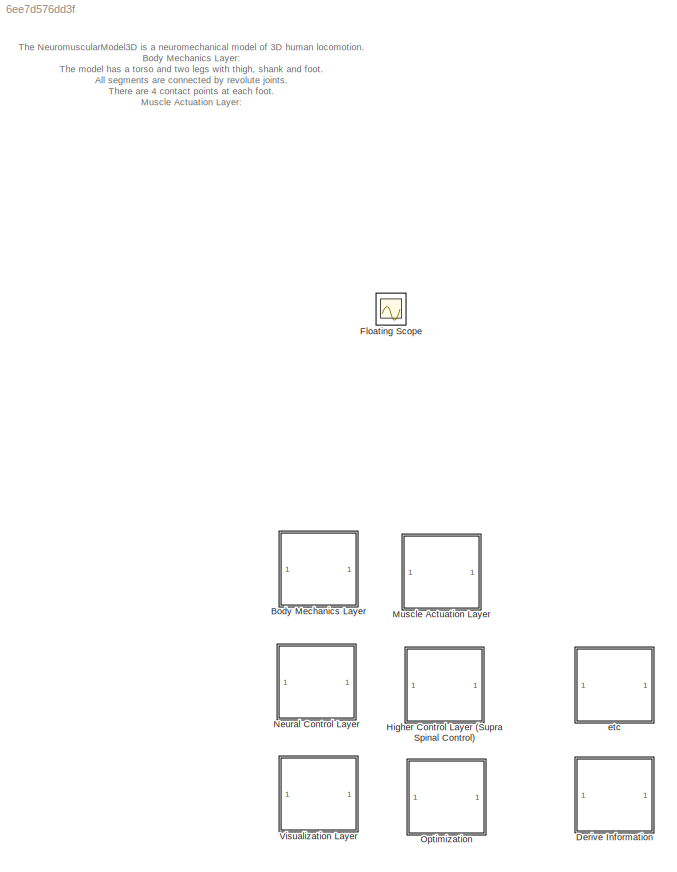
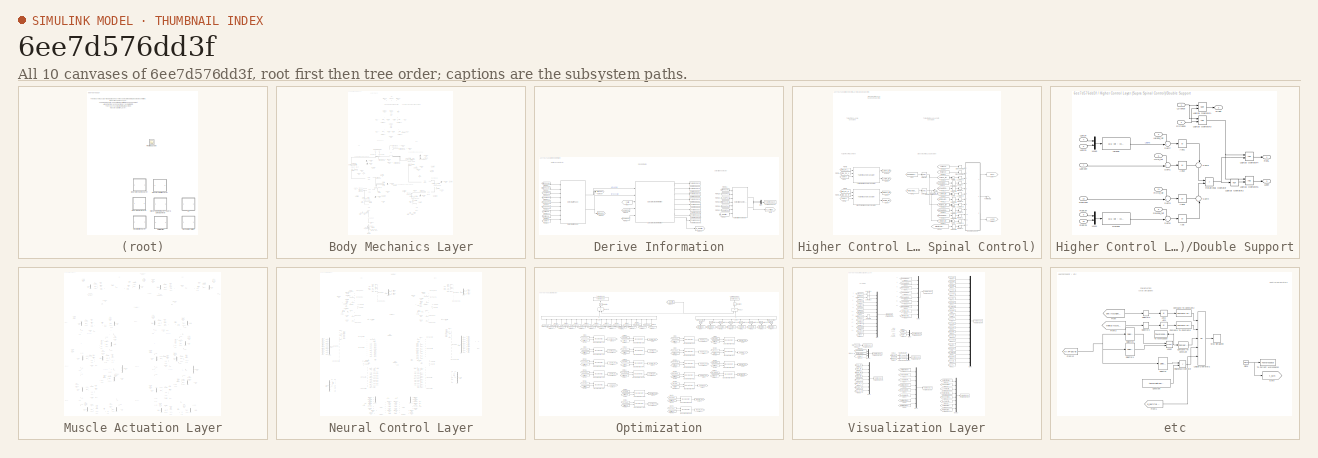
[diagram: thumbnail index - all 10 canvases of the model, root first then tree order]
MODEL slx_6ee7d576dd3f
KIND model
CONFIG AbsTol = auto
CONFIG EnableMultiTasking = on
CONFIG FixedStep = auto
CONFIG MaxStep = .1
CONFIG MinStep = auto
CONFIG RelTol = 1e-3
CONFIG SampleTimeConstraint = Unconstrained
CONFIG Solver = ode15s
CONFIG SolverName = ode15s
CONFIG StartTime = 0.0
CONFIG StopTime = 20
BLOCK [SubSystem] Body Mechanics Layer
  Ports = []
  RequestExecContextInheritance = off
BLOCK [Reference] Body Mechanics Layer/Bushing Joint  REF=sm_lib/Joints/Bushing Joint
  NameLocation = right
  Ports = [0, 0, 0, 0, 0, 1, 1]
  SourceBlock = sm_lib/Joints/Bushing Joint
  SourceProductBaseCode = MS
  SourceType = Bushing Joint
BLOCK [From] Body Mechanics Layer/From
  GotoTag = LAnkleMoment
  NameLocation = top
  TagVisibility = global
BLOCK [From] Body Mechanics Layer/From1
  GotoTag = RHipMoment
  NameLocation = top
  TagVisibility = global
BLOCK [From] Body Mechanics Layer/From10
  CloseFcn = tagdialog Close
  GotoTag = psiHAT
  NameLocation = left
  TagVisibility = global
BLOCK [From] Body Mechanics Layer/From11
  GotoTag = HATPosVel
  NameLocation = right
  TagVisibility = global
BLOCK [From] Body Mechanics Layer/From12
  GotoTag = HATPosVel
  NameLocation = right
  TagVisibility = global
BLOCK [From] Body Mechanics Layer/From13
  GotoTag = RHipPosVel
  NameLocation = left
  TagVisibility = global
BLOCK [From] Body Mechanics Layer/From14
  CloseFcn = tagdialog Close
  GotoTag = RAnklePos
  TagVisibility = global
BLOCK [From] Body Mechanics Layer/From15
  GotoTag = psiHAT
  NameLocation = left
  TagVisibility = global
BLOCK [From] Body Mechanics Layer/From2
  GotoTag = RHipMomentR
  NameLocation = top
  TagVisibility = global
BLOCK [From] Body Mechanics Layer/From25
  GotoTag = psiHAT
  NameLocation = left
  TagVisibility = global
BLOCK [From] Body Mechanics Layer/From29
  CloseFcn = tagdialog Close
  GotoTag = LAnklePos
  TagVisibility = global
BLOCK [From] Body Mechanics Layer/From3
  GotoTag = LHipMoment
  NameLocation = top
  TagVisibility = global
BLOCK [From] Body Mechanics Layer/From34
  CloseFcn = tagdialog Close
  GotoTag = RAnklePos
  TagVisibility = global
BLOCK [From] Body Mechanics Layer/From35
  CloseFcn = tagdialog Close
  GotoTag = LAnklePos
  TagVisibility = global
BLOCK [From] Body Mechanics Layer/From38
  CloseFcn = tagdialog Close
  GotoTag = psiHAT
  NameLocation = left
  TagVisibility = global
BLOCK [From] Body Mechanics Layer/From4
  GotoTag = LHipMomentR
  NameLocation = top
  TagVisibility = global
BLOCK [From] Body Mechanics Layer/From5
  GotoTag = LKneeMoment
  NameLocation = top
  TagVisibility = global
BLOCK [From] Body Mechanics Layer/From6
  GotoTag = RAnkleMoment
  NameLocation = top
  TagVisibility = global
BLOCK [From] Body Mechanics Layer/From7
  GotoTag = RKneeMoment
  NameLocation = top
  TagVisibility = global
BLOCK [From] Body Mechanics Layer/From8
  GotoTag = HATPosVel
  NameLocation = left
  TagVisibility = global
BLOCK [From] Body Mechanics Layer/From9
  GotoTag = LHipPosVel
  NameLocation = left
  TagVisibility = global
BLOCK [Goto] Body Mechanics Layer/Goto
  GotoTag = LLLoad
  NameLocation = right
  TagVisibility = global
BLOCK [Goto] Body Mechanics Layer/Goto1
  GotoTag = RLLoad
  NameLocation = right
  TagVisibility = global
BLOCK [Goto] Body Mechanics Layer/Goto10
  GotoTag = RphiANDdphiKnee
  TagVisibility = global
BLOCK [Goto] Body Mechanics Layer/Goto11
  GotoTag = RphiANDdphiAnkle
  TagVisibility = global
BLOCK [Goto] Body Mechanics Layer/Goto12
  GotoTag = front_dv_L
  TagVisibility = global
BLOCK [Goto] Body Mechanics Layer/Goto13
  GotoTag = HATtopPosVel
  TagVisibility = global
BLOCK [Goto] Body Mechanics Layer/Goto14
  GotoTag = front_dv_R
  TagVisibility = global
BLOCK [Goto] Body Mechanics Layer/Goto15
  GotoTag = side_dv_L
  TagVisibility = global
BLOCK [Goto] Body Mechanics Layer/Goto16
  GotoTag = side_dv_R
  TagVisibility = global
BLOCK [Goto] Body Mechanics Layer/Goto17
  GotoTag = LHeelPos
  NameLocation = left
  TagVisibility = global
BLOCK [Goto] Body Mechanics Layer/Goto18
  GotoTag = RToePos
  NameLocation = left
  TagVisibility = global
BLOCK [Goto] Body Mechanics Layer/Goto19
  GotoTag = LShankPos
  NameLocation = top
  TagVisibility = global
BLOCK [Goto] Body Mechanics Layer/Goto2
  GotoTag = LphiANDdphiHip
  TagVisibility = global
BLOCK [Goto] Body Mechanics Layer/Goto20
  GotoTag = RShankPos
  NameLocation = top
  TagVisibility = global
BLOCK [Goto] Body Mechanics Layer/Goto21
  GotoTag = LStance
  NameLocation = right
  TagVisibility = global
BLOCK [Goto] Body Mechanics Layer/Goto22
  GotoTag = LGRF
  NameLocation = left
  TagVisibility = global
BLOCK [Goto] Body Mechanics Layer/Goto23
  GotoTag = LHipPosVel
  TagVisibility = global
BLOCK [Goto] Body Mechanics Layer/Goto24
  GotoTag = RHipPosVel
  NameLocation = top
  TagVisibility = global
BLOCK [Goto] Body Mechanics Layer/Goto25
  GotoTag = HATPosVel
  TagVisibility = global
BLOCK [Goto] Body Mechanics Layer/Goto26
  GotoTag = phiANDdphiHAT
  NameLocation = right
  TagVisibility = global
BLOCK [Goto] Body Mechanics Layer/Goto27
  GotoTag = thetaANDdthetaHAT
  NameLocation = right
  TagVisibility = global
BLOCK [Goto] Body Mechanics Layer/Goto28
  GotoTag = RHeelPos
  NameLocation = left
  TagVisibility = global
BLOCK [Goto] Body Mechanics Layer/Goto3
  GotoTag = LToePos
  NameLocation = left
  TagVisibility = global
BLOCK [Goto] Body Mechanics Layer/Goto34
  GotoTag = RStance
  NameLocation = left
  TagVisibility = global
BLOCK [Goto] Body Mechanics Layer/Goto35
  GotoTag = RGRF
  NameLocation = left
  TagVisibility = global
BLOCK [Goto] Body Mechanics Layer/Goto4
  GotoTag = psiHAT
  NameLocation = right
  TagVisibility = global
BLOCK [Goto] Body Mechanics Layer/Goto5
  GotoTag = LthetaANDdthetaHipR
  TagVisibility = global
BLOCK [Goto] Body Mechanics Layer/Goto6
  GotoTag = RthetaANDdthetaHipR
  TagVisibility = global
BLOCK [Goto] Body Mechanics Layer/Goto7
  GotoTag = RphiANDdphiHip
  TagVisibility = global
BLOCK [Goto] Body Mechanics Layer/Goto8
  GotoTag = LphiANDdphiKnee
  TagVisibility = global
BLOCK [Goto] Body Mechanics Layer/Goto9
  GotoTag = LphiANDdphiAnkle
  TagVisibility = global
BLOCK [Reference] Body Mechanics Layer/Ground1  REF=sm_lib/Body Elements/Brick Solid
  Ports = [0, 0, 0, 0, 0, 0, 1]
  SourceBlock = sm_lib/Body Elements/Brick Solid
  SourceProductBaseCode = MS
  SourceType = Brick Solid
BLOCK [Goto] Body Mechanics Layer/HAT Position11
  GotoTag = RKneePos
  NameLocation = left
  TagVisibility = global
BLOCK [Goto] Body Mechanics Layer/HAT Position12
  GotoTag = RAnklePos
  NameLocation = left
  TagVisibility = global
BLOCK [Goto] Body Mechanics Layer/HAT Position5
  GotoTag = LKneePos
  NameLocation = left
  TagVisibility = global
BLOCK [Goto] Body Mechanics Layer/HAT Position6
  GotoTag = LAnklePos
  NameLocation = right
  TagVisibility = global
BLOCK [Reference] Body Mechanics Layer/HATs  REF=NeuroMuscularLibrary/HATs
  NameLocation = left
  Ports = [0, 0, 0, 0, 0, 2, 2]
  SourceBlock = NeuroMuscularLibrary/HATs
  SourceType = SubSystem
BLOCK [Gain] Body Mechanics Layer/L GLU Golgi Tendon Organs1
  Gain = -1
  NameLocation = top
BLOCK [Gain] Body Mechanics Layer/L GLU Golgi Tendon Organs3
  Gain = -1
  NameLocation = top
BLOCK [Gain] Body Mechanics Layer/L GLU Golgi Tendon Organs5
  Gain = -1
BLOCK [Reference] Body Mechanics Layer/Left Ankle joint  REF=sm_lib/Joints/Revolute Joint
  NameLocation = right
  Ports = [0, 0, 0, 0, 0, 2, 3]
  SourceBlock = sm_lib/Joints/Revolute Joint
  SourceProductBaseCode = MS
  SourceType = Revolute Joint
BLOCK [Reference] Body Mechanics Layer/Left Foot  REF=NeuroMuscularLibrary/Foot 3D
  NameLocation = right
  Ports = [1, 4, 0, 0, 0, 2, 7]
  SourceBlock = NeuroMuscularLibrary/Foot 3D
BLOCK [Reference] Body Mechanics Layer/Left Hip Joint  REF=sm_lib/Joints/Universal
Joint
  NameLocation = right
  Ports = [0, 0, 0, 0, 0, 3, 5]
  SourceBlock = sm_lib/Joints/Universal\nJoint
  SourceProductBaseCode = MS
  SourceType = Universal\nJoint
BLOCK [Reference] Body Mechanics Layer/Left Knee Joint  REF=sm_lib/Joints/Revolute Joint
  NameLocation = right
  Ports = [0, 0, 0, 0, 0, 2, 3]
  SourceBlock = sm_lib/Joints/Revolute Joint
  SourceProductBaseCode = MS
  SourceType = Revolute Joint
BLOCK [Reference] Body Mechanics Layer/Left Shank  REF=NeuroMuscularLibrary/Shanks
  Ports = [0, 0, 0, 0, 0, 1, 2]
  SourceBlock = NeuroMuscularLibrary/Shanks
  SourceType = SubSystem
BLOCK [Reference] Body Mechanics Layer/Left Thigh  REF=NeuroMuscularLibrary/Thigh total
  NameLocation = top
  Ports = [0, 3, 0, 0, 0, 1, 1]
  SourceBlock = NeuroMuscularLibrary/Thigh total
  SourceType = SubSystem
BLOCK [Reference] Body Mechanics Layer/Left lateral d, v in body frame  REF=NeuroMuscularLibrary/lateral d, v in body frame
  Ports = [3, 1]
  SourceBlock = NeuroMuscularLibrary/lateral d, v in body frame
  SourceType = SubSystem
BLOCK [Reference] Body Mechanics Layer/Left sagittal d, v in body frame  REF=NeuroMuscularLibrary/sagittal d, v in body frame
  Ports = [3, 1]
  SourceBlock = NeuroMuscularLibrary/sagittal d, v in body frame
  SourceType = SubSystem
BLOCK [Reference] Body Mechanics Layer/Mechanism Configuration  REF=sm_lib/Utilities/Mechanism
Configuration
  Ports = [0, 0, 0, 0, 0, 0, 1]
  SourceBlock = sm_lib/Utilities/Mechanism\nConfiguration
  SourceProductBaseCode = MS
  SourceType = Mechanism\nConfiguration
BLOCK [Mux] Body Mechanics Layer/Mux14
  DisplayOption = bar
  Inputs = 2
  Ports = [2, 1]
BLOCK [Mux] Body Mechanics Layer/Mux15
  DisplayOption = bar
  Inputs = 2
  Ports = [2, 1]
BLOCK [Mux] Body Mechanics Layer/Mux2
  DisplayOption = bar
  Inputs = 2
  Ports = [2, 1]
BLOCK [Mux] Body Mechanics Layer/Mux3
  DisplayOption = bar
  Inputs = 2
  Ports = [2, 1]
BLOCK [Mux] Body Mechanics Layer/Mux4
  DisplayOption = bar
  Inputs = 2
  Ports = [2, 1]
BLOCK [Mux] Body Mechanics Layer/Mux5
  DisplayOption = bar
  Inputs = 2
  Ports = [2, 1]
BLOCK [Mux] Body Mechanics Layer/Mux6
  DisplayOption = bar
  Inputs = 2
  Ports = [2, 1]
BLOCK [Mux] Body Mechanics Layer/Mux7
  DisplayOption = bar
  Inputs = 2
  Ports = [2, 1]
BLOCK [Reference] Body Mechanics Layer/PS-Simulink Converter  REF=nesl_utility/PS-Simulink
Converter
  NameLocation = right
  Ports = [0, 1, 0, 0, 0, 1]
  SourceBlock = nesl_utility/PS-Simulink\nConverter
  SourceProductBaseCode = SS
  SourceType = PS-Simulink\nConverter
BLOCK [Reference] Body Mechanics Layer/PS-Simulink Converter1  REF=nesl_utility/PS-Simulink
Converter
  NameLocation = right
  Ports = [0, 1, 0, 0, 0, 1]
  SourceBlock = nesl_utility/PS-Simulink\nConverter
  SourceProductBaseCode = SS
  SourceType = PS-Simulink\nConverter
BLOCK [Reference] Body Mechanics Layer/PS-Simulink Converter10  REF=nesl_utility/PS-Simulink
Converter
  NameLocation = right
  Ports = [0, 1, 0, 0, 0, 1]
  SourceBlock = nesl_utility/PS-Simulink\nConverter
  SourceProductBaseCode = SS
  SourceType = PS-Simulink\nConverter
BLOCK [Reference] Body Mechanics Layer/PS-Simulink Converter11  REF=nesl_utility/PS-Simulink
Converter
  NameLocation = right
  Ports = [0, 1, 0, 0, 0, 1]
  SourceBlock = nesl_utility/PS-Simulink\nConverter
  SourceProductBaseCode = SS
  SourceType = PS-Simulink\nConverter
BLOCK [Reference] Body Mechanics Layer/PS-Simulink Converter12  REF=nesl_utility/PS-Simulink
Converter
  NameLocation = right
  Ports = [0, 1, 0, 0, 0, 1]
  SourceBlock = nesl_utility/PS-Simulink\nConverter
  SourceProductBaseCode = SS
  SourceType = PS-Simulink\nConverter
BLOCK [Reference] Body Mechanics Layer/PS-Simulink Converter13  REF=nesl_utility/PS-Simulink
Converter
  NameLocation = right
  Ports = [0, 1, 0, 0, 0, 1]
  SourceBlock = nesl_utility/PS-Simulink\nConverter
  SourceProductBaseCode = SS
  SourceType = PS-Simulink\nConverter
BLOCK [Reference] Body Mechanics Layer/PS-Simulink Converter14  REF=nesl_utility/PS-Simulink
Converter
  NameLocation = right
  Ports = [0, 1, 0, 0, 0, 1]
  SourceBlock = nesl_utility/PS-Simulink\nConverter
  SourceProductBaseCode = SS
  SourceType = PS-Simulink\nConverter
BLOCK [Reference] Body Mechanics Layer/PS-Simulink Converter15  REF=nesl_utility/PS-Simulink
Converter
  NameLocation = right
  Ports = [0, 1, 0, 0, 0, 1]
  SourceBlock = nesl_utility/PS-Simulink\nConverter
  SourceProductBaseCode = SS
  SourceType = PS-Simulink\nConverter
BLOCK [Reference] Body Mechanics Layer/PS-Simulink Converter2  REF=nesl_utility/PS-Simulink
Converter
  Ports = [0, 1, 0, 0, 0, 1]
  SourceBlock = nesl_utility/PS-Simulink\nConverter
  SourceProductBaseCode = SS
  SourceType = PS-Simulink\nConverter
BLOCK [Reference] Body Mechanics Layer/PS-Simulink Converter3  REF=nesl_utility/PS-Simulink
Converter
  Ports = [0, 1, 0, 0, 0, 1]
  SourceBlock = nesl_utility/PS-Simulink\nConverter
  SourceProductBaseCode = SS
  SourceType = PS-Simulink\nConverter
BLOCK [Reference] Body Mechanics Layer/PS-Simulink Converter4  REF=nesl_utility/PS-Simulink
Converter
  NameLocation = right
  Ports = [0, 1, 0, 0, 0, 1]
  SourceBlock = nesl_utility/PS-Simulink\nConverter
  SourceProductBaseCode = SS
  SourceType = PS-Simulink\nConverter
BLOCK [Reference] Body Mechanics Layer/PS-Simulink Converter5  REF=nesl_utility/PS-Simulink
Converter
  NameLocation = right
  Ports = [0, 1, 0, 0, 0, 1]
  SourceBlock = nesl_utility/PS-Simulink\nConverter
  SourceProductBaseCode = SS
  SourceType = PS-Simulink\nConverter
BLOCK [Reference] Body Mechanics Layer/PS-Simulink Converter6  REF=nesl_utility/PS-Simulink
Converter
  NameLocation = right
  Ports = [0, 1, 0, 0, 0, 1]
  SourceBlock = nesl_utility/PS-Simulink\nConverter
  SourceProductBaseCode = SS
  SourceType = PS-Simulink\nConverter
BLOCK [Reference] Body Mechanics Layer/PS-Simulink Converter7  REF=nesl_utility/PS-Simulink
Converter
  NameLocation = right
  Ports = [0, 1, 0, 0, 0, 1]
  SourceBlock = nesl_utility/PS-Simulink\nConverter
  SourceProductBaseCode = SS
  SourceType = PS-Simulink\nConverter
BLOCK [Reference] Body Mechanics Layer/PS-Simulink Converter8  REF=nesl_utility/PS-Simulink
Converter
  NameLocation = right
  Ports = [0, 1, 0, 0, 0, 1]
  SourceBlock = nesl_utility/PS-Simulink\nConverter
  SourceProductBaseCode = SS
  SourceType = PS-Simulink\nConverter
BLOCK [Reference] Body Mechanics Layer/PS-Simulink Converter9  REF=nesl_utility/PS-Simulink
Converter
  NameLocation = right
  Ports = [0, 1, 0, 0, 0, 1]
  SourceBlock = nesl_utility/PS-Simulink\nConverter
  SourceProductBaseCode = SS
  SourceType = PS-Simulink\nConverter
BLOCK [Reference] Body Mechanics Layer/Position Sensor10  REF=NeuroMuscularLibrary/Position Sensor
  Ports = [0, 1, 0, 0, 0, 1]
  SourceBlock = NeuroMuscularLibrary/Position Sensor
  SourceType = SubSystem
BLOCK [Reference] Body Mechanics Layer/Position Sensor11  REF=NeuroMuscularLibrary/Position Sensor
  Ports = [0, 1, 0, 0, 0, 1]
  SourceBlock = NeuroMuscularLibrary/Position Sensor
  SourceType = SubSystem
BLOCK [Reference] Body Mechanics Layer/Position Sensor12  REF=NeuroMuscularLibrary/Position Sensor
  Ports = [0, 1, 0, 0, 0, 1]
  SourceBlock = NeuroMuscularLibrary/Position Sensor
  SourceType = SubSystem
BLOCK [Reference] Body Mechanics Layer/Position Sensor13  REF=NeuroMuscularLibrary/Position Sensor
  Ports = [0, 1, 0, 0, 0, 1]
  SourceBlock = NeuroMuscularLibrary/Position Sensor
  SourceType = SubSystem
BLOCK [Reference] Body Mechanics Layer/Position Sensor14  REF=NeuroMuscularLibrary/Position Sensor
  NameLocation = top
  Ports = [0, 1, 0, 0, 0, 1]
  SourceBlock = NeuroMuscularLibrary/Position Sensor
  SourceType = SubSystem
BLOCK [Reference] Body Mechanics Layer/Position Sensor15  REF=NeuroMuscularLibrary/Position Sensor
  NameLocation = left
  Ports = [0, 1, 0, 0, 0, 1]
  SourceBlock = NeuroMuscularLibrary/Position Sensor
  SourceType = SubSystem
BLOCK [Reference] Body Mechanics Layer/Position Velocity Sensor  REF=NeuroMuscularLibrary/Position Velocity Sensor
  NameLocation = top
  Ports = [0, 1, 0, 0, 0, 1]
  SourceBlock = NeuroMuscularLibrary/Position Velocity Sensor
  SourceType = SubSystem
BLOCK [Reference] Body Mechanics Layer/Position Velocity Sensor1  REF=NeuroMuscularLibrary/Position Velocity Sensor
  NameLocation = top
  Ports = [0, 1, 0, 0, 0, 1]
  SourceBlock = NeuroMuscularLibrary/Position Velocity Sensor
  SourceType = SubSystem
BLOCK [Reference] Body Mechanics Layer/Position Velocity Sensor2  REF=NeuroMuscularLibrary/Position Velocity Sensor
  Ports = [0, 1, 0, 0, 0, 1]
  SourceBlock = NeuroMuscularLibrary/Position Velocity Sensor
  SourceType = SubSystem
BLOCK [Reference] Body Mechanics Layer/Position Velocity Sensor3  REF=NeuroMuscularLibrary/Position Velocity Sensor
  NameLocation = top
  Ports = [0, 1, 0, 0, 0, 1]
  SourceBlock = NeuroMuscularLibrary/Position Velocity Sensor
  SourceType = SubSystem
BLOCK [Reference] Body Mechanics Layer/Right Ankle Joint  REF=sm_lib/Joints/Revolute Joint
  NameLocation = left
  Ports = [0, 0, 0, 0, 0, 2, 3]
  SourceBlock = sm_lib/Joints/Revolute Joint
  SourceProductBaseCode = MS
  SourceType = Revolute Joint
BLOCK [Reference] Body Mechanics Layer/Right Foot  REF=NeuroMuscularLibrary/Foot 3D
  NameLocation = right
  Ports = [1, 4, 0, 0, 0, 2, 7]
  SourceBlock = NeuroMuscularLibrary/Foot 3D
BLOCK [Reference] Body Mechanics Layer/Right Hip joint  REF=sm_lib/Joints/Universal
Joint
  NameLocation = right
  Ports = [0, 0, 0, 0, 0, 3, 5]
  SourceBlock = sm_lib/Joints/Universal\nJoint
  SourceProductBaseCode = MS
  SourceType = Universal\nJoint
BLOCK [Reference] Body Mechanics Layer/Right Knee joint  REF=sm_lib/Joints/Revolute Joint
  NameLocation = right
  Ports = [0, 0, 0, 0, 0, 2, 3]
  SourceBlock = sm_lib/Joints/Revolute Joint
  SourceProductBaseCode = MS
  SourceType = Revolute Joint
BLOCK [Reference] Body Mechanics Layer/Right Shank  REF=NeuroMuscularLibrary/Shanks
  Ports = [0, 0, 0, 0, 0, 1, 2]
  SourceBlock = NeuroMuscularLibrary/Shanks
  SourceType = SubSystem
BLOCK [Reference] Body Mechanics Layer/Right Thigh  REF=NeuroMuscularLibrary/Thigh total
  NameLocation = top
  Ports = [0, 3, 0, 0, 0, 1, 1]
  SourceBlock = NeuroMuscularLibrary/Thigh total
  SourceType = SubSystem
BLOCK [Reference] Body Mechanics Layer/Right lateral d, v in body frame  REF=NeuroMuscularLibrary/lateral d, v in body frame
  Ports = [3, 1]
  SourceBlock = NeuroMuscularLibrary/lateral d, v in body frame
  SourceType = SubSystem
BLOCK [Reference] Body Mechanics Layer/Right sagittal d, v in body frame  REF=NeuroMuscularLibrary/sagittal d, v in body frame
  Ports = [3, 1]
  SourceBlock = NeuroMuscularLibrary/sagittal d, v in body frame
  SourceType = SubSystem
BLOCK [Reference] Body Mechanics Layer/Rigid Transform  REF=sm_lib/Frames and
Transforms/Rigid
Transform
  Ports = [0, 0, 0, 0, 0, 1, 1]
  SourceBlock = sm_lib/Frames and\nTransforms/Rigid\nTransform
  SourceProductBaseCode = MS
  SourceType = Rigid\nTransform
BLOCK [Reference] Body Mechanics Layer/Rigid Transform4  REF=sm_lib/Frames and
Transforms/Rigid
Transform
  NameLocation = right
  Ports = [0, 0, 0, 0, 0, 1, 1]
  SourceBlock = sm_lib/Frames and\nTransforms/Rigid\nTransform
  SourceProductBaseCode = MS
  SourceType = Rigid\nTransform
BLOCK [Reference] Body Mechanics Layer/Rigid Transform5  REF=sm_lib/Frames and
Transforms/Rigid
Transform
  NameLocation = right
  Ports = [0, 0, 0, 0, 0, 1, 1]
  SourceBlock = sm_lib/Frames and\nTransforms/Rigid\nTransform
  SourceProductBaseCode = MS
  SourceType = Rigid\nTransform
BLOCK [Reference] Body Mechanics Layer/Simulink-PS Converter  REF=nesl_utility/Simulink-PS
Converter
  NameLocation = top
  Ports = [1, 0, 0, 0, 0, 0, 1]
  SourceBlock = nesl_utility/Simulink-PS\nConverter
  SourceProductBaseCode = SS
  SourceType = Simulink-PS\nConverter
BLOCK [Reference] Body Mechanics Layer/Simulink-PS Converter1  REF=nesl_utility/Simulink-PS
Converter
  NameLocation = top
  Ports = [1, 0, 0, 0, 0, 0, 1]
  SourceBlock = nesl_utility/Simulink-PS\nConverter
  SourceProductBaseCode = SS
  SourceType = Simulink-PS\nConverter
BLOCK [Reference] Body Mechanics Layer/Simulink-PS Converter2  REF=nesl_utility/Simulink-PS
Converter
  NameLocation = right
  Ports = [1, 0, 0, 0, 0, 0, 1]
  SourceBlock = nesl_utility/Simulink-PS\nConverter
  SourceProductBaseCode = SS
  SourceType = Simulink-PS\nConverter
BLOCK [Reference] Body Mechanics Layer/Simulink-PS Converter3  REF=nesl_utility/Simulink-PS
Converter
  NameLocation = right
  Ports = [1, 0, 0, 0, 0, 0, 1]
  SourceBlock = nesl_utility/Simulink-PS\nConverter
  SourceProductBaseCode = SS
  SourceType = Simulink-PS\nConverter
BLOCK [Reference] Body Mechanics Layer/Simulink-PS Converter4  REF=nesl_utility/Simulink-PS
Converter
  NameLocation = right
  Ports = [1, 0, 0, 0, 0, 0, 1]
  SourceBlock = nesl_utility/Simulink-PS\nConverter
  SourceProductBaseCode = SS
  SourceType = Simulink-PS\nConverter
BLOCK [Reference] Body Mechanics Layer/Simulink-PS Converter5  REF=nesl_utility/Simulink-PS
Converter
  NameLocation = right
  Ports = [1, 0, 0, 0, 0, 0, 1]
  SourceBlock = nesl_utility/Simulink-PS\nConverter
  SourceProductBaseCode = SS
  SourceType = Simulink-PS\nConverter
BLOCK [Reference] Body Mechanics Layer/Simulink-PS Converter6  REF=nesl_utility/Simulink-PS
Converter
  NameLocation = right
  Ports = [1, 0, 0, 0, 0, 0, 1]
  SourceBlock = nesl_utility/Simulink-PS\nConverter
  SourceProductBaseCode = SS
  SourceType = Simulink-PS\nConverter
BLOCK [Reference] Body Mechanics Layer/Simulink-PS Converter7  REF=nesl_utility/Simulink-PS
Converter
  NameLocation = right
  Ports = [1, 0, 0, 0, 0, 0, 1]
  SourceBlock = nesl_utility/Simulink-PS\nConverter
  SourceProductBaseCode = SS
  SourceType = Simulink-PS\nConverter
BLOCK [Reference] Body Mechanics Layer/Solver Configuration  REF=nesl_utility/Solver
Configuration
  Ports = [0, 0, 0, 0, 0, 0, 1]
  SourceBlock = nesl_utility/Solver\nConfiguration
  SourceProductBaseCode = SS
  SourceType = Solver\nConfiguration
BLOCK [Reference] Body Mechanics Layer/TO: X-forward Y-up Z-lateral  REF=sm_lib/Frames and
Transforms/Rigid
Transform
  NameLocation = right
  Ports = [0, 0, 0, 0, 0, 1, 1]
  SourceBlock = sm_lib/Frames and\nTransforms/Rigid\nTransform
  SourceProductBaseCode = MS
  SourceType = Rigid\nTransform
BLOCK [Reference] Body Mechanics Layer/Whole Body front Tracking Camera  REF=sm_lib/Frames and
Transforms/Reference
Frame
  NameLocation = right
  Ports = [0, 0, 0, 0, 0, 0, 1]
  SourceBlock = sm_lib/Frames and\nTransforms/Reference\nFrame
  SourceProductBaseCode = MS
  SourceType = Reference\nFrame
BLOCK [Reference] Body Mechanics Layer/Whole Body side Tracking Camera  REF=sm_lib/Frames and
Transforms/Reference
Frame
  NameLocation = left
  Ports = [0, 0, 0, 0, 0, 0, 1]
  SourceBlock = sm_lib/Frames and\nTransforms/Reference\nFrame
  SourceProductBaseCode = MS
  SourceType = Reference\nFrame
BLOCK [Reference] Body Mechanics Layer/World Frame X-forward Y-lateral Z-up1  REF=sm_lib/Frames and
Transforms/World Frame
  NameLocation = left
  Ports = [0, 0, 0, 0, 0, 0, 1]
  SourceBlock = sm_lib/Frames and\nTransforms/World Frame
  SourceProductBaseCode = MS
  SourceType = World Frame
BLOCK [Reference] Body Mechanics Layer/body pitch//roll//yaw in body frame --- x-axis: forward y-axis: leftward z-axis: parallel to gravity  REF=NeuroMuscularLibrary/body pitch//roll//yaw
in body frame
---
x-axis: forward
y-axis: leftward
z-axis: parallel to gravity
  NameLocation = right
  Ports = [3, 3]
  SourceBlock = NeuroMuscularLibrary/body pitch//roll//yaw\nin body frame\n---\nx-axis: forward\ny-axis: leftward\nz-axis: parallel to gravity
  SourceType = SubSystem
BLOCK [SubSystem] Derive Information
  Ports = []
  RequestExecContextInheritance = off
BLOCK [Reference] Derive Information/Calculate Step information  REF=NeuroMuscularLibrary/Calculate Step information
  Ports = [5, 8]
  SourceBlock = NeuroMuscularLibrary/Calculate Step information
BLOCK [Reference] Derive Information/Detect Gait Phase  REF=NeuroMuscularLibrary/Detect Gait Phase
  Ports = [9, 2]
  SourceBlock = NeuroMuscularLibrary/Detect Gait Phase
  SourceType = SubSystem
BLOCK [From] Derive Information/From
  GotoTag = t_sim
  TagVisibility = global
BLOCK [From] Derive Information/From16
  GotoTag = LShankPos
  TagVisibility = global
BLOCK [From] Derive Information/From19
  GotoTag = RHipPosVel
  NameLocation = top
  TagVisibility = global
BLOCK [From] Derive Information/From20
  GotoTag = LHipPosVel
  NameLocation = top
  TagVisibility = global
BLOCK [From] Derive Information/From21
  GotoTag = RAnklePos
  NameLocation = top
  TagVisibility = global
BLOCK [From] Derive Information/From22
  GotoTag = LAnklePos
  NameLocation = top
  TagVisibility = global
BLOCK [From] Derive Information/From23
  GotoTag = RShankPos
  TagVisibility = global
BLOCK [From] Derive Information/From24
  GotoTag = psiHAT
  TagVisibility = global
BLOCK [From] Derive Information/From26
  GotoTag = RStance
  TagVisibility = global
BLOCK [From] Derive Information/From27
  GotoTag = LStance
  TagVisibility = global
BLOCK [From] Derive Information/From28
  GotoTag = LKneePos
  TagVisibility = global
BLOCK [From] Derive Information/From30
  GotoTag = RHipPosVel
  NameLocation = top
  TagVisibility = global
BLOCK [From] Derive Information/From31
  GotoTag = LHipPosVel
  NameLocation = top
  TagVisibility = global
BLOCK [From] Derive Information/From32
  GotoTag = RAnklePos
  NameLocation = top
  TagVisibility = global
BLOCK [From] Derive Information/From33
  GotoTag = LAnklePos
  NameLocation = top
  TagVisibility = global
BLOCK [From] Derive Information/From37
  GotoTag = b_pastInitSteps
  TagVisibility = global
BLOCK [From] Derive Information/From39
  GotoTag = RKneePos
  TagVisibility = global
BLOCK [From] Derive Information/From57
  GotoTag = RAnklePos
  NameLocation = top
  TagVisibility = global
BLOCK [From] Derive Information/From78
  GotoTag = LAnklePos
  NameLocation = top
  TagVisibility = global
BLOCK [Goto] Derive Information/Goto
  GotoTag = b_selfCollision
  TagVisibility = global
BLOCK [Goto] Derive Information/Goto22
  GotoTag = b_pastInitSteps
  TagVisibility = global
BLOCK [Goto] Derive Information/Goto38
  GotoTag = leftLegState
  NameLocation = top
  TagVisibility = global
BLOCK [Goto] Derive Information/Goto39
  GotoTag = rightLegState
  NameLocation = top
  TagVisibility = global
BLOCK [Mux] Derive Information/Mux
  DisplayOption = bar
  Inputs = 2
  Ports = [2, 1]
BLOCK [Reference] Derive Information/Self collision detector  REF=NeuroMuscularLibrary/Self collision detector
  Ports = [7, 2]
  SourceBlock = NeuroMuscularLibrary/Self collision detector
BLOCK [ToWorkspace] Derive Information/To Workspace1
  MaxDataPoints = inf
  Ports = [1]
  SampleTime = -1
  SaveFormat = Structure With Time
  VariableName = stepNumbers
BLOCK [ToWorkspace] Derive Information/To Workspace2
  MaxDataPoints = inf
  Ports = [1]
  SampleTime = dt_visual
  SaveFormat = Structure With Time
  VariableName = selfCollision
BLOCK [ToWorkspace] Derive Information/To Workspace3
  MaxDataPoints = inf
  Ports = [1]
  SampleTime = -1
  SaveFormat = Structure With Time
  VariableName = b_pastInitSteps
BLOCK [ToWorkspace] Derive Information/To Workspace4
  MaxDataPoints = inf
  Ports = [1]
  SampleTime = -1
  SaveFormat = Structure With Time
  VariableName = stepLengths
BLOCK [ToWorkspace] Derive Information/To Workspace5
  MaxDataPoints = inf
  Ports = [1]
  SampleTime = -1
  SaveFormat = Structure With Time
  VariableName = strideLengths
BLOCK [ToWorkspace] Derive Information/To Workspace6
  MaxDataPoints = inf
  Ports = [1]
  SampleTime = -1
  SaveFormat = Structure With Time
  VariableName = stepVelocities
BLOCK [ToWorkspace] Derive Information/To Workspace7
  MaxDataPoints = inf
  Ports = [1]
  SampleTime = -1
  SaveFormat = Structure With Time
  VariableName = stepTimes
BLOCK [ToWorkspace] Derive Information/To Workspace8
  MaxDataPoints = inf
  Ports = [1]
  SampleTime = -1
  SaveFormat = Structure With Time
  VariableName = strideVelocities
BLOCK [ToWorkspace] Derive Information/To Workspace9
  MaxDataPoints = inf
  Ports = [1]
  SampleTime = -1
  SaveFormat = Structure With Time
  VariableName = strideTimes
BLOCK [Scope] Floating Scope
  Floating = off
  IOType = viewer
  NumInputPorts = 1
  Ports = []
  ScopeSpecificationString = Simulink.scopes.TimeScopeBlockCfg('CurrentConfiguration', extmgr.ConfigurationSet(extmgr.Configuration('Core','General UI',true),extmgr.Configuration('Core','Source UI',true),extmgr.Configuration('Sources','WiredSimulink',true,'DataLoggingSaveFormat','StructureWithTime','DataLoggingLimitDataPoints',true,'DataLoggingDecimation','1','DataLoggingDecimateData',true),extmgr.Configuration('Visuals','Tim...<+890ch>
BLOCK [SubSystem] Higher Control Layer (Supra Spinal Control)
  Ports = []
  RequestExecContextInheritance = off
BLOCK [SubSystem] Higher Control Layer (Supra Spinal Control)/Double Support
  Ports = [12, 3]
  RequestExecContextInheritance = off
BLOCK [Abs] Higher Control Layer (Supra Spinal Control)/Double Support/Abs
  SaturateOnIntegerOverflow = off
  ZeroCross = off
BLOCK [Abs] Higher Control Layer (Supra Spinal Control)/Double Support/Abs1
  SaturateOnIntegerOverflow = off
  ZeroCross = off
BLOCK [Abs] Higher Control Layer (Supra Spinal Control)/Double Support/Abs2
  SaturateOnIntegerOverflow = off
  ZeroCross = off
BLOCK [Abs] Higher Control Layer (Supra Spinal Control)/Double Support/Abs3
  SaturateOnIntegerOverflow = off
  ZeroCross = off
BLOCK [Outport] Higher Control Layer (Supra Spinal Control)/Double Support/Flight
  Port = 2
BLOCK [Inport] Higher Control Layer (Supra Spinal Control)/Double Support/LHip_tgt
  Port = 6
BLOCK [Inport] Higher Control Layer (Supra Spinal Control)/Double Support/LStance
BLOCK [Fcn] Higher Control Layer (Supra Spinal Control)/Double Support/Lalpha'
  Expr = u(1) +pi - (pi-u(2))/2
  NameLocation = top
BLOCK [Inport] Higher Control Layer (Supra Spinal Control)/Double Support/Lalpha_tgt
  Port = 3
BLOCK [Logic] Higher Control Layer (Supra Spinal Control)/Double Support/Logical Operator1
  AllPortsSameDT = off
  Operator = NOR
  OutDataTypeStr = boolean
  Ports = [2, 1]
BLOCK [Logic] Higher Control Layer (Supra Spinal Control)/Double Support/Logical Operator2
  AllPortsSameDT = off
  Operator = NOT
  Ports = [1, 1]
BLOCK [Logic] Higher Control Layer (Supra Spinal Control)/Double Support/Logical Operator3
  AllPortsSameDT = off
  Ports = [2, 1]
BLOCK [Logic] Higher Control Layer (Supra Spinal Control)/Double Support/Logical Operator4
  AllPortsSameDT = off
  Ports = [2, 1]
BLOCK [Logic] Higher Control Layer (Supra Spinal Control)/Double Support/Logical Operator5
  AllPortsSameDT = off
  Ports = [2, 1]
BLOCK [Outport] Higher Control Layer (Supra Spinal Control)/Double Support/LonR
  Port = 3
BLOCK [Inport] Higher Control Layer (Supra Spinal Control)/Double Support/Lphi23
  Port = 5
BLOCK [Inport] Higher Control Layer (Supra Spinal Control)/Double Support/Lphi34
  Port = 4
BLOCK [Inport] Higher Control Layer (Supra Spinal Control)/Double Support/Lphi34R
  Port = 7
BLOCK [Mux] Higher Control Layer (Supra Spinal Control)/Double Support/Mux1
  DisplayOption = bar
  Inputs = 2
  NameLocation = top
  Ports = [2, 1]
BLOCK [Mux] Higher Control Layer (Supra Spinal Control)/Double Support/Mux5
  DisplayOption = bar
  Inputs = 2
  NameLocation = top
  Ports = [2, 1]
BLOCK [Inport] Higher Control Layer (Supra Spinal Control)/Double Support/RHip_tgt
  Port = 11
BLOCK [Inport] Higher Control Layer (Supra Spinal Control)/Double Support/RStance
  Port = 2
BLOCK [Fcn] Higher Control Layer (Supra Spinal Control)/Double Support/Ralpha'
  Expr = u(1) +pi - (pi-u(2))/2
  NameLocation = top
BLOCK [Inport] Higher Control Layer (Supra Spinal Control)/Double Support/Ralpha_tgt
  Port = 8
BLOCK [RelationalOperator] Higher Control Layer (Supra Spinal Control)/Double Support/Relational Operator
  InputSameDT = off
  Operator = >
  Ports = [2, 1]
  ZeroCross = off
BLOCK [Outport] Higher Control Layer (Supra Spinal Control)/Double Support/RonL
BLOCK [Inport] Higher Control Layer (Supra Spinal Control)/Double Support/Rphi23
  Port = 10
BLOCK [Inport] Higher Control Layer (Supra Spinal Control)/Double Support/Rphi34
  Port = 9
BLOCK [Inport] Higher Control Layer (Supra Spinal Control)/Double Support/Rphi34R
  Port = 12
BLOCK [Sum] Higher Control Layer (Supra Spinal Control)/Double Support/Sum1
  Inputs = -+|
  NameLocation = top
  Ports = [2, 1]
BLOCK [Sum] Higher Control Layer (Supra Spinal Control)/Double Support/Sum2
  Inputs = ++|
  NameLocation = right
  Ports = [2, 1]
BLOCK [Sum] Higher Control Layer (Supra Spinal Control)/Double Support/Sum3
  Inputs = -+|
  NameLocation = top
  Ports = [2, 1]
BLOCK [Sum] Higher Control Layer (Supra Spinal Control)/Double Support/Sum4
  Inputs = ++|
  NameLocation = left
  Ports = [2, 1]
BLOCK [Sum] Higher Control Layer (Supra Spinal Control)/Double Support/Sum5
  Inputs = -+|
  NameLocation = top
  Ports = [2, 1]
BLOCK [Sum] Higher Control Layer (Supra Spinal Control)/Double Support/Sum7
  Inputs = -+|
  NameLocation = top
  Ports = [2, 1]
BLOCK [From] Higher Control Layer (Supra Spinal Control)/From
  GotoTag = phiANDdphiHAT
  NameLocation = top
  TagVisibility = global
BLOCK [From] Higher Control Layer (Supra Spinal Control)/From1
  CloseFcn = tagdialog Close
  GotoTag = front_dv_R
  TagVisibility = global
BLOCK [From] Higher Control Layer (Supra Spinal Control)/From11
  CloseFcn = tagdialog Close
  GotoTag = RthetaANDdthetaHipR
  TagVisibility = global
BLOCK [From] Higher Control Layer (Supra Spinal Control)/From12
  CloseFcn = tagdialog Close
  GotoTag = LthetaANDdthetaHipR
  TagVisibility = global
BLOCK [From] Higher Control Layer (Supra Spinal Control)/From16
  CloseFcn = tagdialog Close
  GotoTag = LhipR_tgt
  TagVisibility = global
BLOCK [From] Higher Control Layer (Supra Spinal Control)/From17
  CloseFcn = tagdialog Close
  GotoTag = RhipR_tgt
  TagVisibility = global
BLOCK [From] Higher Control Layer (Supra Spinal Control)/From18
  CloseFcn = tagdialog Close
  GotoTag = LStance
  TagVisibility = global
BLOCK [From] Higher Control Layer (Supra Spinal Control)/From19
  CloseFcn = tagdialog Close
  GotoTag = RStance
  TagVisibility = global
BLOCK [From] Higher Control Layer (Supra Spinal Control)/From2
  CloseFcn = tagdialog Close
  GotoTag = side_dv_L
  TagVisibility = global
BLOCK [From] Higher Control Layer (Supra Spinal Control)/From20
  CloseFcn = tagdialog Close
  GotoTag = LphiANDdphiHip
  TagVisibility = global
BLOCK [From] Higher Control Layer (Supra Spinal Control)/From21
  CloseFcn = tagdialog Close
  GotoTag = LphiANDdphiKnee
  TagVisibility = global
BLOCK [From] Higher Control Layer (Supra Spinal Control)/From23
  CloseFcn = tagdialog Close
  GotoTag = RphiANDdphiHip
  TagVisibility = global
BLOCK [From] Higher Control Layer (Supra Spinal Control)/From24
  CloseFcn = tagdialog Close
  GotoTag = RphiANDdphiKnee
  TagVisibility = global
BLOCK [From] Higher Control Layer (Supra Spinal Control)/From25
  CloseFcn = tagdialog Close
  GotoTag = Lalpha_tgt
  TagVisibility = global
BLOCK [From] Higher Control Layer (Supra Spinal Control)/From26
  CloseFcn = tagdialog Close
  GotoTag = Ralpha_tgt
  TagVisibility = global
BLOCK [From] Higher Control Layer (Supra Spinal Control)/From3
  GotoTag = thetaANDdthetaHAT
  NameLocation = top
  TagVisibility = global
BLOCK [From] Higher Control Layer (Supra Spinal Control)/From4
  CloseFcn = tagdialog Close
  GotoTag = side_dv_R
  TagVisibility = global
BLOCK [From] Higher Control Layer (Supra Spinal Control)/From5
  CloseFcn = tagdialog Close
  GotoTag = front_dv_L
  TagVisibility = global
BLOCK [From] Higher Control Layer (Supra Spinal Control)/From6
  GotoTag = psiHAT
  TagVisibility = global
BLOCK [From] Higher Control Layer (Supra Spinal Control)/From7
  GotoTag = psiHAT
  TagVisibility = global
BLOCK [Goto] Higher Control Layer (Supra Spinal Control)/Goto2
  GotoTag = Ralpha_tgt
  TagVisibility = global
BLOCK [Goto] Higher Control Layer (Supra Spinal Control)/Goto5
  GotoTag = LhipR_tgt
  TagVisibility = global
BLOCK [Goto] Higher Control Layer (Supra Spinal Control)/Goto6
  GotoTag = RhipR_tgt
  TagVisibility = global
BLOCK [Goto] Higher Control Layer (Supra Spinal Control)/Goto7
  GotoTag = RonL
  TagVisibility = global
BLOCK [Goto] Higher Control Layer (Supra Spinal Control)/Goto8
  GotoTag = LonR
  TagVisibility = global
BLOCK [Goto] Higher Control Layer (Supra Spinal Control)/Goto88
  GotoTag = Lalpha_tgt
  TagVisibility = global
BLOCK [Gain] Higher Control Layer (Supra Spinal Control)/L GLU Golgi Tendon Organs2
  Gain = -1
  NameLocation = top
BLOCK [TransportDelay] Higher Control Layer (Supra Spinal Control)/LL Delay1
  DelayTime = LongLoopDelay/2
  InitialOutput = initialTargetAngle
  Ports = [1, 1]
BLOCK [TransportDelay] Higher Control Layer (Supra Spinal Control)/LL Delay2
  DelayTime = LongLoopDelay/2
  Ports = [1, 1]
BLOCK [TransportDelay] Higher Control Layer (Supra Spinal Control)/LL Delay3
  DelayTime = LongLoopDelay/2
  InitialOutput = initialTargetAngle
  Ports = [1, 1]
BLOCK [TransportDelay] Higher Control Layer (Supra Spinal Control)/LL Delay4
  DelayTime = LongLoopDelay/2
  Ports = [1, 1]
BLOCK [Reference] Higher Control Layer (Supra Spinal Control)/Left Target leg angle calculator  REF=NeuroMuscularLibrary/Target leg angle calculator
  Ports = [4, 2]
  SourceBlock = NeuroMuscularLibrary/Target leg angle calculator
BLOCK [TransportDelay] Higher Control Layer (Supra Spinal Control)/MDelay1
  DelayTime = MidDelay
  Ports = [1, 1]
BLOCK [TransportDelay] Higher Control Layer (Supra Spinal Control)/MDelay2
  DelayTime = MidDelay
  Ports = [1, 1]
BLOCK [Reference] Higher Control Layer (Supra Spinal Control)/Right Target leg angle calculator  REF=NeuroMuscularLibrary/Target leg angle calculator
  Ports = [4, 2]
  SourceBlock = NeuroMuscularLibrary/Target leg angle calculator
BLOCK [TransportDelay] Higher Control Layer (Supra Spinal Control)/SDelay1
  DelayTime = ShortDelay
  Ports = [1, 1]
BLOCK [TransportDelay] Higher Control Layer (Supra Spinal Control)/SDelay2
  DelayTime = ShortDelay
  Ports = [1, 1]
BLOCK [TransportDelay] Higher Control Layer (Supra Spinal Control)/SDelay3
  DelayTime = ShortDelay
  Ports = [1, 1]
BLOCK [TransportDelay] Higher Control Layer (Supra Spinal Control)/SDelay7
  DelayTime = ShortDelay
  Ports = [1, 1]
BLOCK [Selector] Higher Control Layer (Supra Spinal Control)/Selector
  IndexOptions = Index vector (dialog)
  Indices = [1]
  InputPortWidth = 2
  OutputSizes = 1
  Ports = [1, 1]
BLOCK [Selector] Higher Control Layer (Supra Spinal Control)/Selector1
  IndexOptions = Index vector (dialog)
  Indices = 1
  InputPortWidth = 2
  NameLocation = top
  OutputSizes = 1
  Ports = [1, 1]
BLOCK [Selector] Higher Control Layer (Supra Spinal Control)/Selector10
  IndexOptions = Index vector (dialog)
  Indices = 1
  InputPortWidth = 2
  NameLocation = top
  OutputSizes = 1
  Ports = [1, 1]
BLOCK [Selector] Higher Control Layer (Supra Spinal Control)/Selector2
  IndexOptions = Index vector (dialog)
  Indices = 1
  InputPortWidth = 2
  NameLocation = top
  OutputSizes = 1
  Ports = [1, 1]
BLOCK [Selector] Higher Control Layer (Supra Spinal Control)/Selector3
  IndexOptions = Index vector (dialog)
  Indices = [1]
  InputPortWidth = 2
  OutputSizes = 1
  Ports = [1, 1]
BLOCK [Selector] Higher Control Layer (Supra Spinal Control)/Selector5
  IndexOptions = Index vector (dialog)
  Indices = 1
  InputPortWidth = 2
  NameLocation = top
  OutputSizes = 1
  Ports = [1, 1]
BLOCK [Selector] Higher Control Layer (Supra Spinal Control)/Selector6
  IndexOptions = Index vector (dialog)
  Indices = 1
  InputPortWidth = 2
  NameLocation = top
  OutputSizes = 1
  Ports = [1, 1]
BLOCK [Selector] Higher Control Layer (Supra Spinal Control)/Selector7
  IndexOptions = Index vector (dialog)
  Indices = 1
  InputPortWidth = 2
  NameLocation = top
  OutputSizes = 1
  Ports = [1, 1]
BLOCK [TransportDelay] Higher Control Layer (Supra Spinal Control)/Stance delay
  DelayTime = MidDelay
  Ports = [1, 1]
BLOCK [TransportDelay] Higher Control Layer (Supra Spinal Control)/Stance delay1
  DelayTime = MidDelay
  Ports = [1, 1]
BLOCK [Sum] Higher Control Layer (Supra Spinal Control)/Sum1
  Inputs = -+|
  NameLocation = top
  Ports = [2, 1]
BLOCK [Sum] Higher Control Layer (Supra Spinal Control)/Sum2
  Inputs = -+|
  NameLocation = top
  Ports = [2, 1]
BLOCK [Sum] Higher Control Layer (Supra Spinal Control)/Sum3
  Inputs = --|
  Ports = [2, 1]
BLOCK [Sum] Higher Control Layer (Supra Spinal Control)/Sum5
  Inputs = --|
  Ports = [2, 1]
BLOCK [Terminator] Higher Control Layer (Supra Spinal Control)/Terminator1
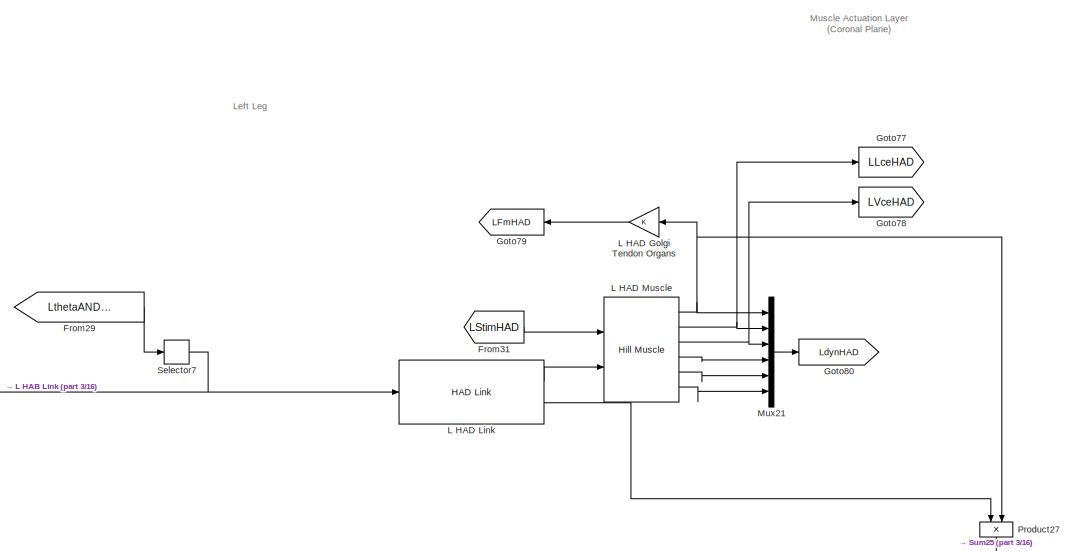
[diagram: Muscle Actuation Layer - part 1/16, top center region]
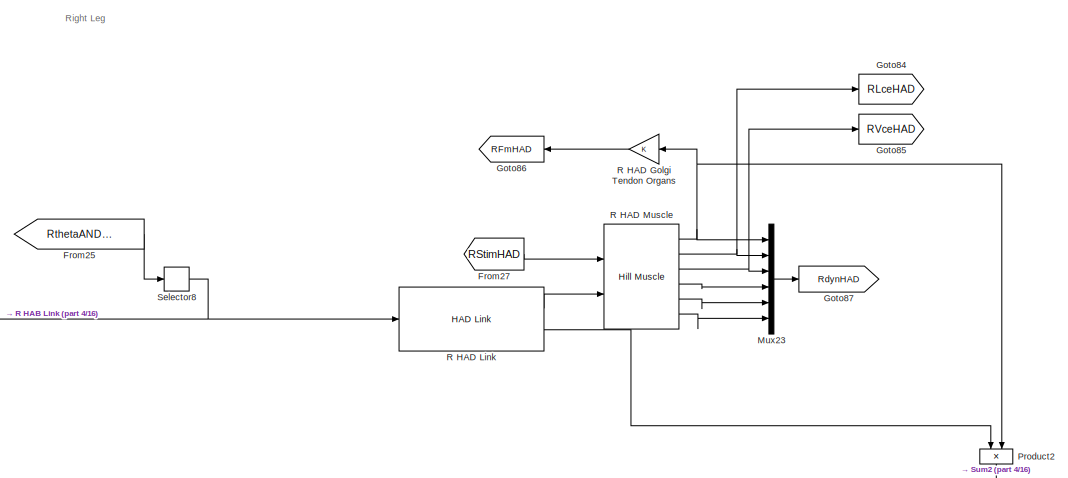
[diagram: Muscle Actuation Layer - part 2/16, top right region]
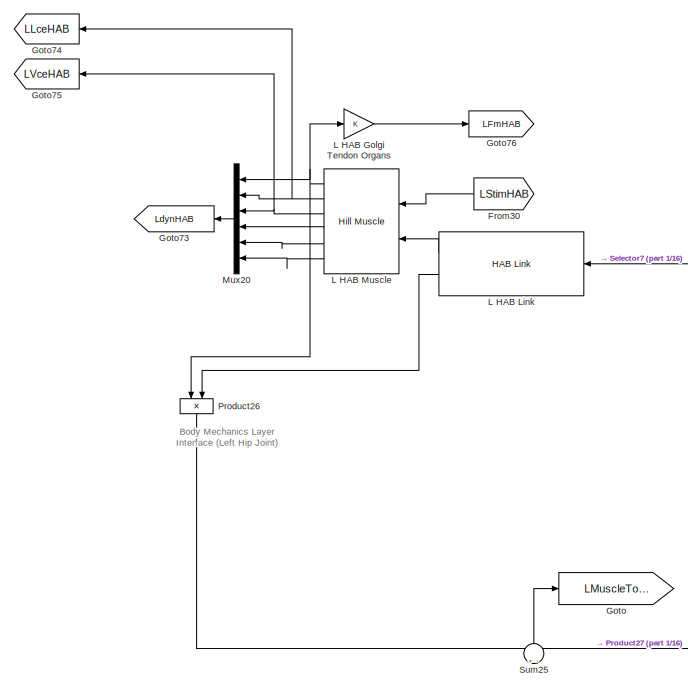
[diagram: Muscle Actuation Layer - part 3/16, top left region]
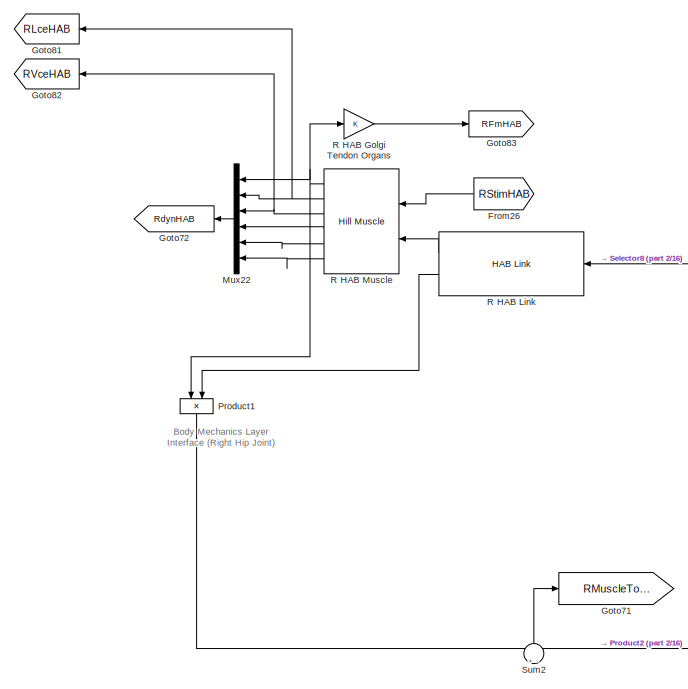
[diagram: Muscle Actuation Layer - part 4/16, top center region]
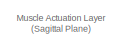
[diagram: Muscle Actuation Layer - part 5/16, top center region]
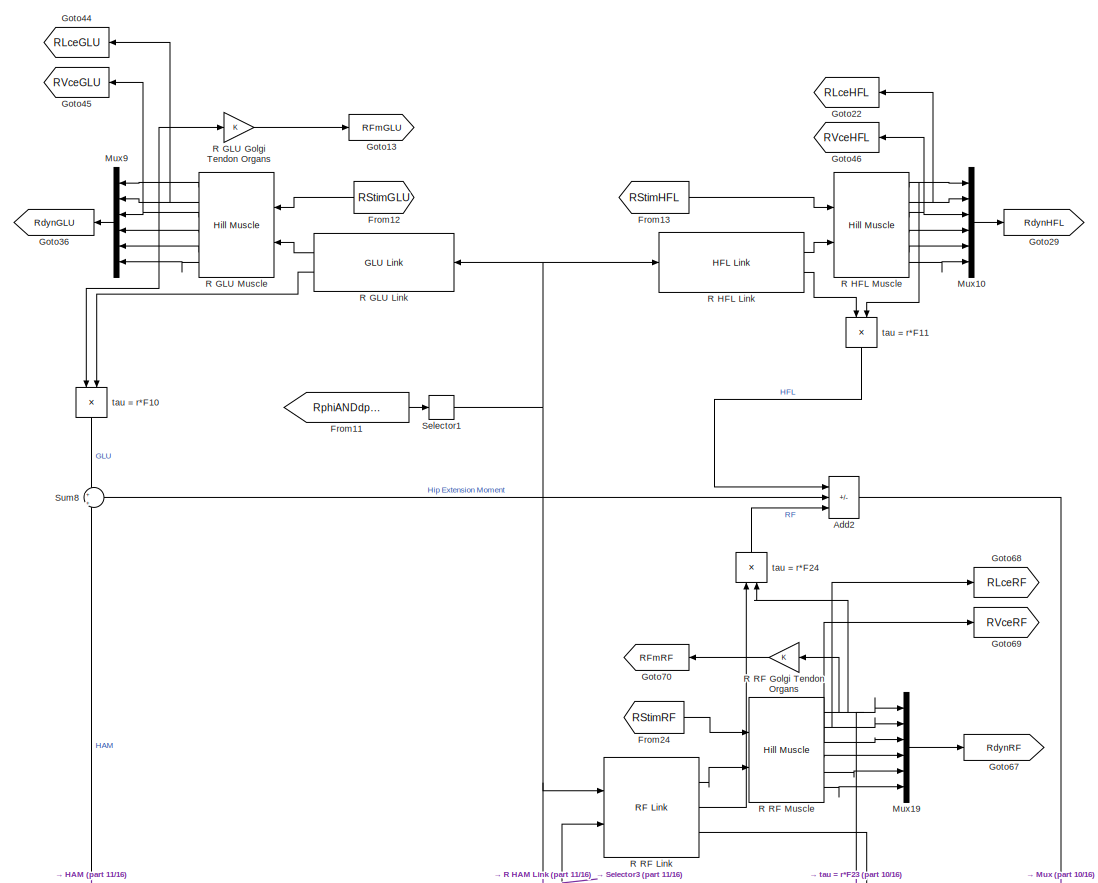
[diagram: Muscle Actuation Layer - part 6/16, middle right region]
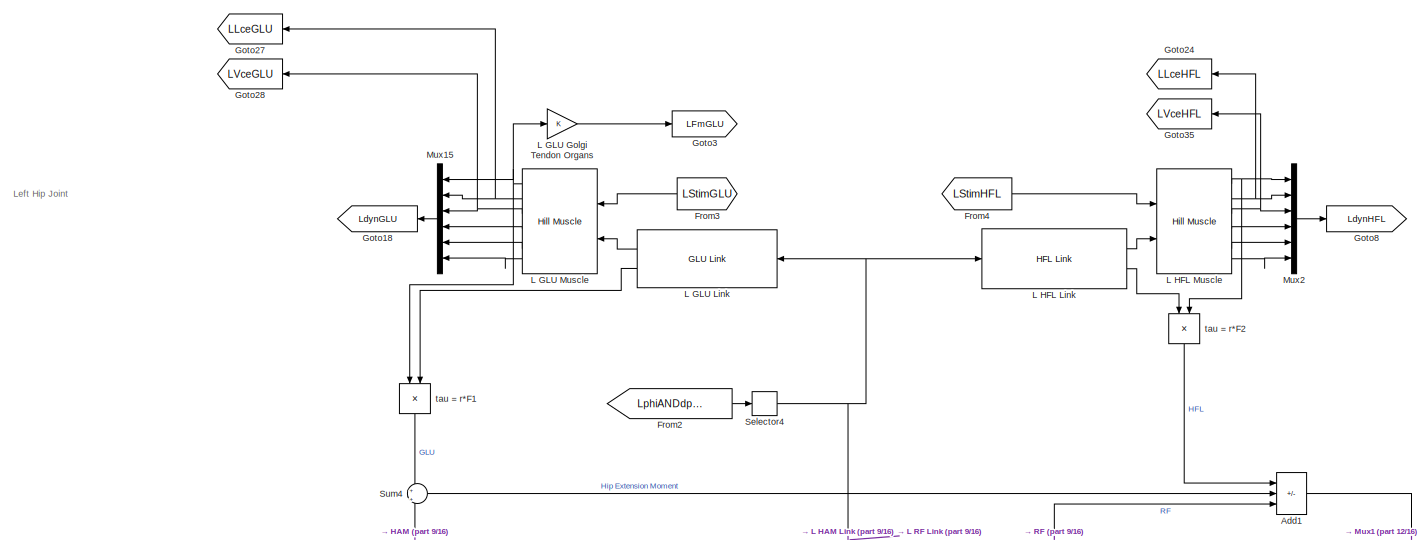
[diagram: Muscle Actuation Layer - part 7/16, middle left region]
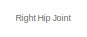
[diagram: Muscle Actuation Layer - part 8/16, central region]
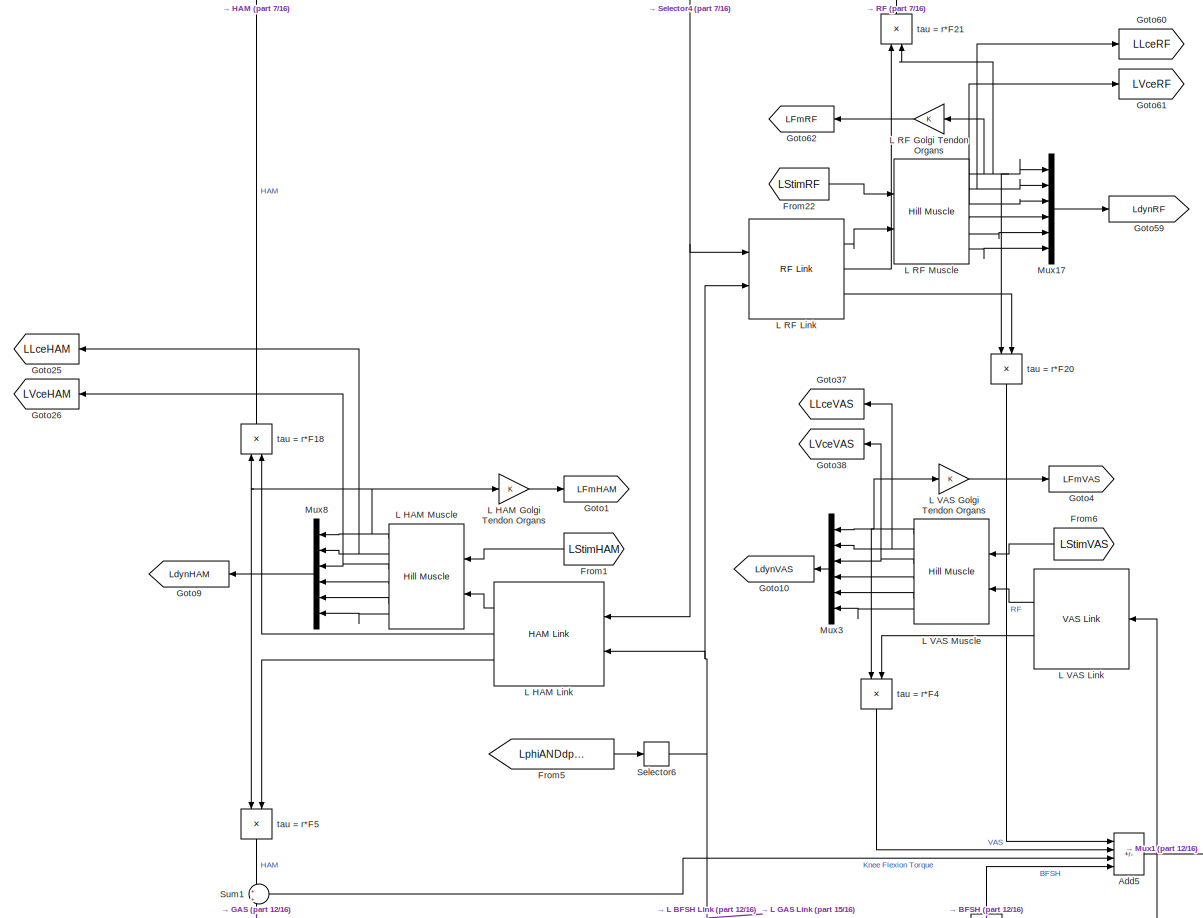
[diagram: Muscle Actuation Layer - part 9/16, middle left region]
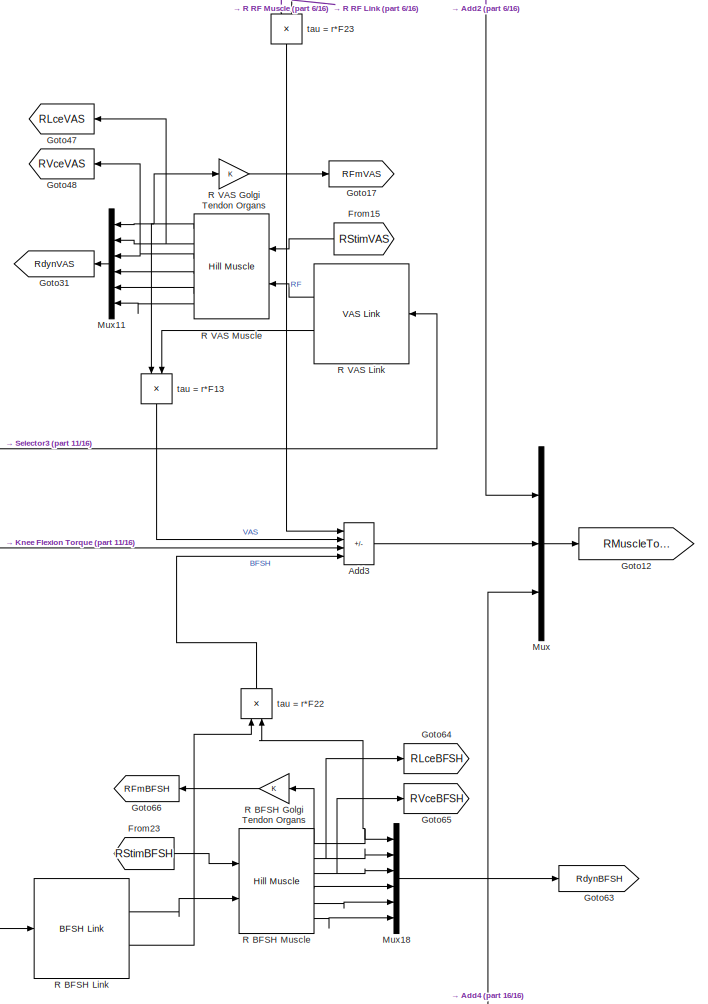
[diagram: Muscle Actuation Layer - part 10/16, middle right region]
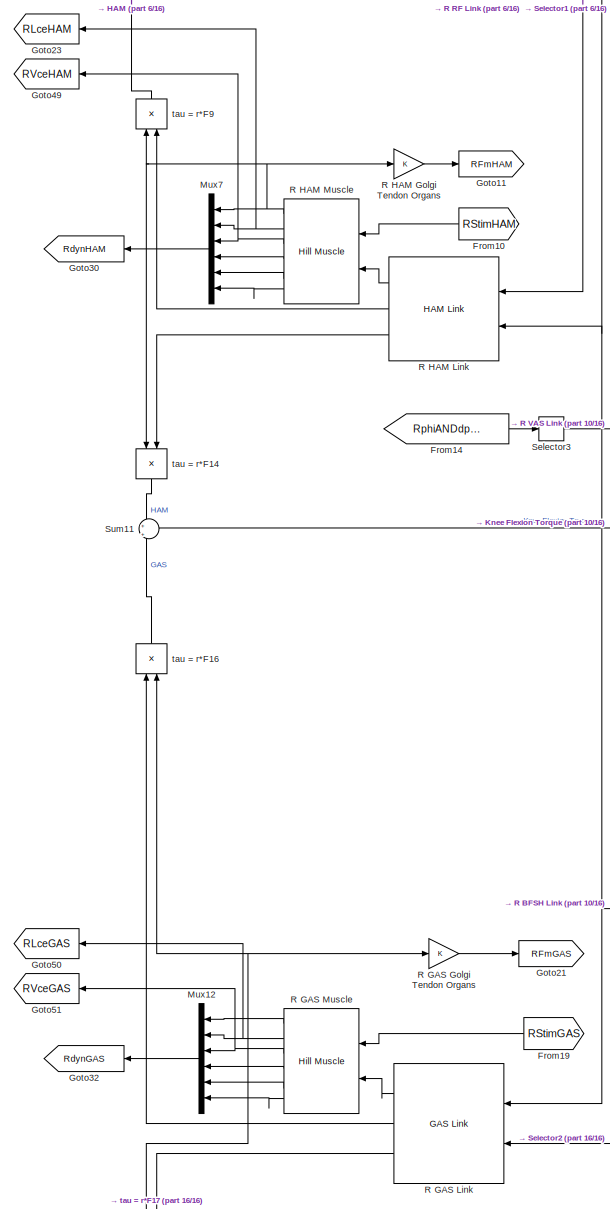
[diagram: Muscle Actuation Layer - part 11/16, bottom center region]
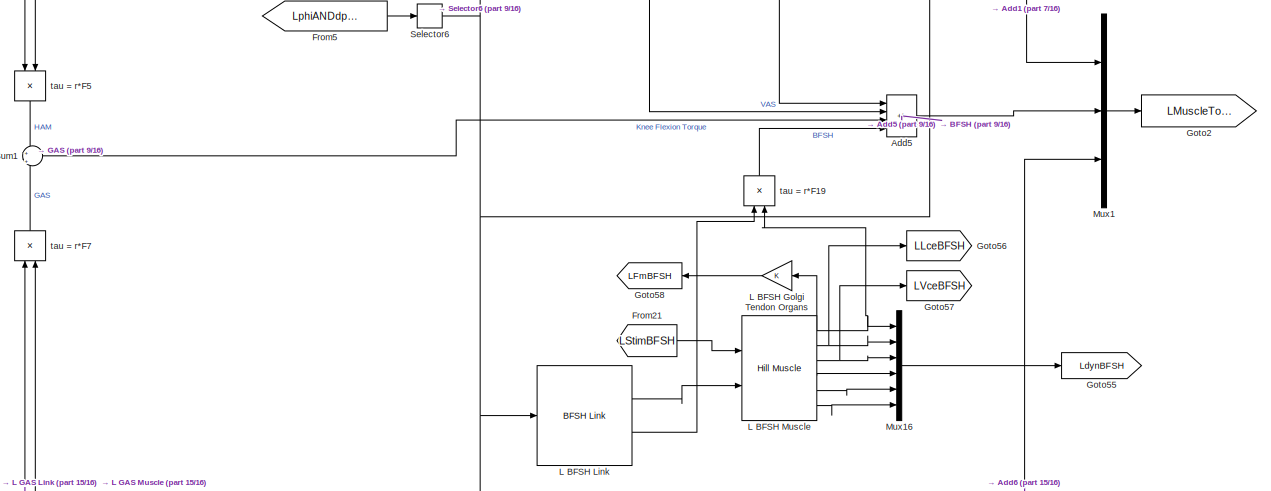
[diagram: Muscle Actuation Layer - part 12/16, bottom left region]
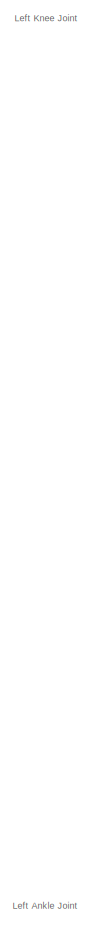
[diagram: Muscle Actuation Layer - part 13/16, bottom left region]
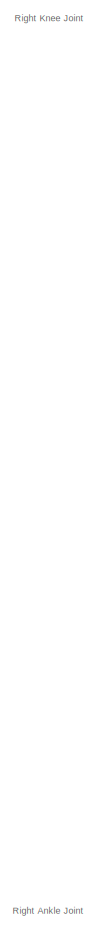
[diagram: Muscle Actuation Layer - part 14/16, bottom center region]
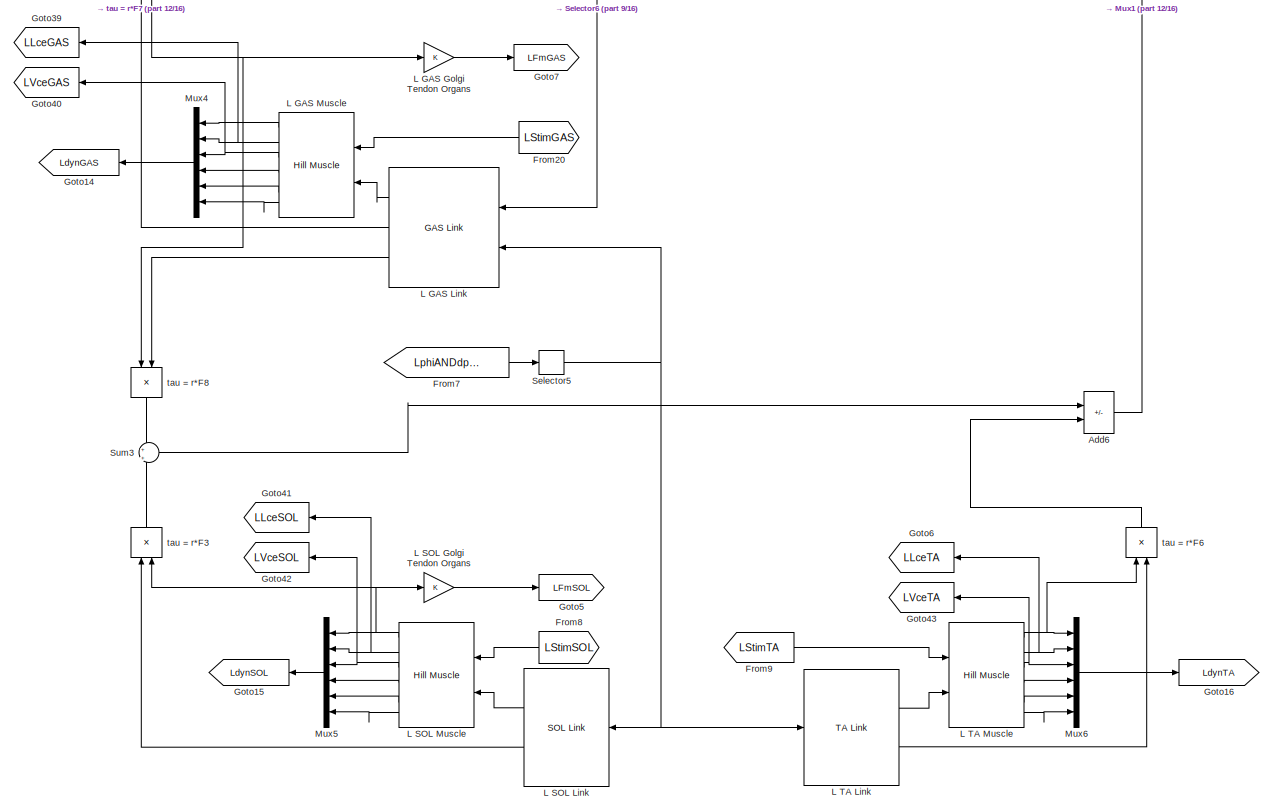
[diagram: Muscle Actuation Layer - part 15/16, bottom left region]
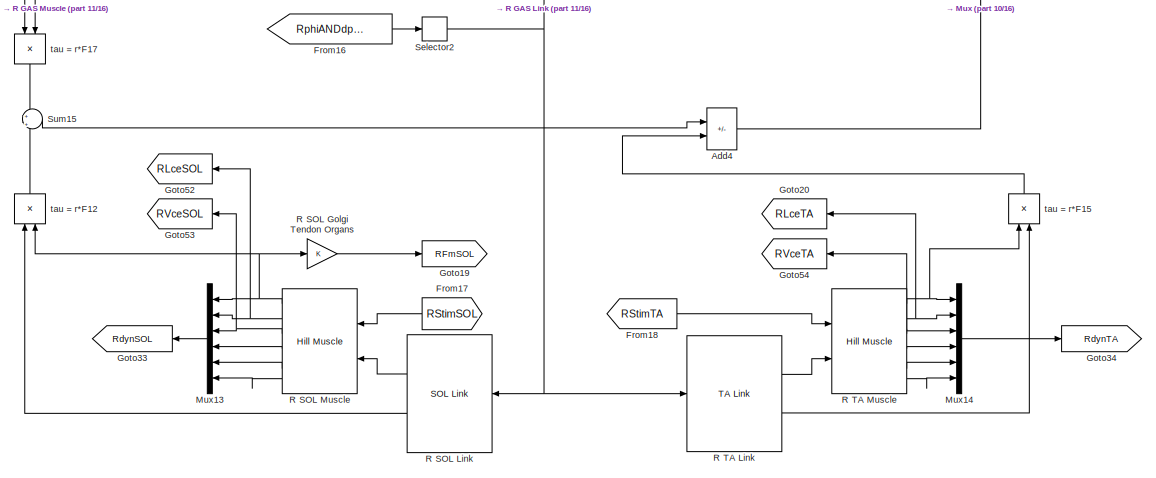
[diagram: Muscle Actuation Layer - part 16/16, bottom right region]
BLOCK [SubSystem] Muscle Actuation Layer
  Ports = []
  RequestExecContextInheritance = off
BLOCK [Sum] Muscle Actuation Layer/Add1
  IconShape = rectangular
  Inputs = -+-
  NameLocation = top
  Ports = [3, 1]
BLOCK [Sum] Muscle Actuation Layer/Add2
  IconShape = rectangular
  Inputs = -+-
  NameLocation = top
  Ports = [3, 1]
BLOCK [Sum] Muscle Actuation Layer/Add3
  IconShape = rectangular
  Inputs = --++
  NameLocation = top
  Ports = [4, 1]
BLOCK [Sum] Muscle Actuation Layer/Add4
  IconShape = rectangular
  Inputs = +-
  NameLocation = top
  Ports = [2, 1]
BLOCK [Sum] Muscle Actuation Layer/Add5
  IconShape = rectangular
  Inputs = --++
  NameLocation = top
  Ports = [4, 1]
BLOCK [Sum] Muscle Actuation Layer/Add6
  IconShape = rectangular
  Inputs = +-
  NameLocation = top
  Ports = [2, 1]
BLOCK [From] Muscle Actuation Layer/From1
  GotoTag = LStimHAM
  NameLocation = top
  TagVisibility = global
BLOCK [From] Muscle Actuation Layer/From10
  GotoTag = RStimHAM
  NameLocation = top
  TagVisibility = global
BLOCK [From] Muscle Actuation Layer/From11
  GotoTag = RphiANDdphiHip
  TagVisibility = global
BLOCK [From] Muscle Actuation Layer/From12
  GotoTag = RStimGLU
  NameLocation = top
  TagVisibility = global
BLOCK [From] Muscle Actuation Layer/From13
  GotoTag = RStimHFL
  TagVisibility = global
BLOCK [From] Muscle Actuation Layer/From14
  GotoTag = RphiANDdphiKnee
  TagVisibility = global
BLOCK [From] Muscle Actuation Layer/From15
  GotoTag = RStimVAS
  NameLocation = top
  TagVisibility = global
BLOCK [From] Muscle Actuation Layer/From16
  GotoTag = RphiANDdphiAnkle
  TagVisibility = global
BLOCK [From] Muscle Actuation Layer/From17
  GotoTag = RStimSOL
  NameLocation = top
  TagVisibility = global
BLOCK [From] Muscle Actuation Layer/From18
  GotoTag = RStimTA
  TagVisibility = global
BLOCK [From] Muscle Actuation Layer/From19
  GotoTag = RStimGAS
  NameLocation = top
  TagVisibility = global
BLOCK [From] Muscle Actuation Layer/From2
  GotoTag = LphiANDdphiHip
  TagVisibility = global
BLOCK [From] Muscle Actuation Layer/From20
  GotoTag = LStimGAS
  NameLocation = top
  TagVisibility = global
BLOCK [From] Muscle Actuation Layer/From21
  GotoTag = LStimBFSH
  NameLocation = top
  TagVisibility = global
BLOCK [From] Muscle Actuation Layer/From22
  GotoTag = LStimRF
  NameLocation = top
  TagVisibility = global
BLOCK [From] Muscle Actuation Layer/From23
  GotoTag = RStimBFSH
  NameLocation = top
  TagVisibility = global
BLOCK [From] Muscle Actuation Layer/From24
  GotoTag = RStimRF
  NameLocation = top
  TagVisibility = global
BLOCK [From] Muscle Actuation Layer/From25
  GotoTag = RthetaANDdthetaHipR
  TagVisibility = global
BLOCK [From] Muscle Actuation Layer/From26
  GotoTag = RStimHAB
  NameLocation = top
  TagVisibility = global
BLOCK [From] Muscle Actuation Layer/From27
  GotoTag = RStimHAD
  TagVisibility = global
BLOCK [From] Muscle Actuation Layer/From29
  GotoTag = LthetaANDdthetaHipR
  TagVisibility = global
BLOCK [From] Muscle Actuation Layer/From3
  GotoTag = LStimGLU
  NameLocation = top
  TagVisibility = global
BLOCK [From] Muscle Actuation Layer/From30
  GotoTag = LStimHAB
  NameLocation = top
  TagVisibility = global
BLOCK [From] Muscle Actuation Layer/From31
  GotoTag = LStimHAD
  TagVisibility = global
BLOCK [From] Muscle Actuation Layer/From4
  GotoTag = LStimHFL
  TagVisibility = global
BLOCK [From] Muscle Actuation Layer/From5
  GotoTag = LphiANDdphiKnee
  TagVisibility = global
BLOCK [From] Muscle Actuation Layer/From6
  GotoTag = LStimVAS
  NameLocation = top
  TagVisibility = global
BLOCK [From] Muscle Actuation Layer/From7
  GotoTag = LphiANDdphiAnkle
  TagVisibility = global
BLOCK [From] Muscle Actuation Layer/From8
  GotoTag = LStimSOL
  NameLocation = top
  TagVisibility = global
BLOCK [From] Muscle Actuation Layer/From9
  GotoTag = LStimTA
  TagVisibility = global
BLOCK [Goto] Muscle Actuation Layer/Goto
  GotoTag = LMuscleTorquesR
  NameLocation = top
  TagVisibility = global
BLOCK [Goto] Muscle Actuation Layer/Goto1
  GotoTag = LFmHAM
  TagVisibility = global
BLOCK [Goto] Muscle Actuation Layer/Goto10
  GotoTag = LdynVAS
  NameLocation = top
  TagVisibility = global
BLOCK [Goto] Muscle Actuation Layer/Goto11
  GotoTag = RFmHAM
  TagVisibility = global
BLOCK [Goto] Muscle Actuation Layer/Goto12
  GotoTag = RMuscleTorques
  TagVisibility = global
BLOCK [Goto] Muscle Actuation Layer/Goto13
  GotoTag = RFmGLU
  TagVisibility = global
BLOCK [Goto] Muscle Actuation Layer/Goto14
  GotoTag = LdynGAS
  NameLocation = top
  TagVisibility = global
BLOCK [Goto] Muscle Actuation Layer/Goto15
  GotoTag = LdynSOL
  NameLocation = top
  TagVisibility = global
BLOCK [Goto] Muscle Actuation Layer/Goto16
  GotoTag = LdynTA
  TagVisibility = global
BLOCK [Goto] Muscle Actuation Layer/Goto17
  GotoTag = RFmVAS
  TagVisibility = global
BLOCK [Goto] Muscle Actuation Layer/Goto18
  GotoTag = LdynGLU
  NameLocation = top
  TagVisibility = global
BLOCK [Goto] Muscle Actuation Layer/Goto19
  GotoTag = RFmSOL
  TagVisibility = global
BLOCK [Goto] Muscle Actuation Layer/Goto2
  GotoTag = LMuscleTorques
  TagVisibility = global
BLOCK [Goto] Muscle Actuation Layer/Goto20
  GotoTag = RLceTA
  NameLocation = top
  TagVisibility = global
BLOCK [Goto] Muscle Actuation Layer/Goto21
  GotoTag = RFmGAS
  TagVisibility = global
BLOCK [Goto] Muscle Actuation Layer/Goto22
  GotoTag = RLceHFL
  NameLocation = top
  TagVisibility = global
BLOCK [Goto] Muscle Actuation Layer/Goto23
  GotoTag = RLceHAM
  NameLocation = top
  TagVisibility = global
BLOCK [Goto] Muscle Actuation Layer/Goto24
  GotoTag = LLceHFL
  NameLocation = top
  TagVisibility = global
BLOCK [Goto] Muscle Actuation Layer/Goto25
  GotoTag = LLceHAM
  NameLocation = top
  TagVisibility = global
BLOCK [Goto] Muscle Actuation Layer/Goto26
  GotoTag = LVceHAM
  NameLocation = top
  TagVisibility = global
BLOCK [Goto] Muscle Actuation Layer/Goto27
  GotoTag = LLceGLU
  NameLocation = top
  TagVisibility = global
BLOCK [Goto] Muscle Actuation Layer/Goto28
  GotoTag = LVceGLU
  NameLocation = top
  TagVisibility = global
BLOCK [Goto] Muscle Actuation Layer/Goto29
  GotoTag = RdynHFL
  TagVisibility = global
BLOCK [Goto] Muscle Actuation Layer/Goto3
  GotoTag = LFmGLU
  TagVisibility = global
BLOCK [Goto] Muscle Actuation Layer/Goto30
  GotoTag = RdynHAM
  NameLocation = top
  TagVisibility = global
BLOCK [Goto] Muscle Actuation Layer/Goto31
  GotoTag = RdynVAS
  NameLocation = top
  TagVisibility = global
BLOCK [Goto] Muscle Actuation Layer/Goto32
  GotoTag = RdynGAS
  NameLocation = top
  TagVisibility = global
BLOCK [Goto] Muscle Actuation Layer/Goto33
  GotoTag = RdynSOL
  NameLocation = top
  TagVisibility = global
BLOCK [Goto] Muscle Actuation Layer/Goto34
  GotoTag = RdynTA
  TagVisibility = global
BLOCK [Goto] Muscle Actuation Layer/Goto35
  GotoTag = LVceHFL
  NameLocation = top
  TagVisibility = global
BLOCK [Goto] Muscle Actuation Layer/Goto36
  GotoTag = RdynGLU
  NameLocation = top
  TagVisibility = global
BLOCK [Goto] Muscle Actuation Layer/Goto37
  GotoTag = LLceVAS
  NameLocation = top
  TagVisibility = global
BLOCK [Goto] Muscle Actuation Layer/Goto38
  GotoTag = LVceVAS
  NameLocation = top
  TagVisibility = global
BLOCK [Goto] Muscle Actuation Layer/Goto39
  GotoTag = LLceGAS
  NameLocation = top
  TagVisibility = global
BLOCK [Goto] Muscle Actuation Layer/Goto4
  GotoTag = LFmVAS
  TagVisibility = global
BLOCK [Goto] Muscle Actuation Layer/Goto40
  GotoTag = LVceGAS
  NameLocation = top
  TagVisibility = global
BLOCK [Goto] Muscle Actuation Layer/Goto41
  GotoTag = LLceSOL
  NameLocation = top
  TagVisibility = global
BLOCK [Goto] Muscle Actuation Layer/Goto42
  GotoTag = LVceSOL
  NameLocation = top
  TagVisibility = global
BLOCK [Goto] Muscle Actuation Layer/Goto43
  GotoTag = LVceTA
  NameLocation = top
  TagVisibility = global
BLOCK [Goto] Muscle Actuation Layer/Goto44
  GotoTag = RLceGLU
  NameLocation = top
  TagVisibility = global
BLOCK [Goto] Muscle Actuation Layer/Goto45
  GotoTag = RVceGLU
  NameLocation = top
  TagVisibility = global
BLOCK [Goto] Muscle Actuation Layer/Goto46
  GotoTag = RVceHFL
  NameLocation = top
  TagVisibility = global
BLOCK [Goto] Muscle Actuation Layer/Goto47
  GotoTag = RLceVAS
  NameLocation = top
  TagVisibility = global
BLOCK [Goto] Muscle Actuation Layer/Goto48
  GotoTag = RVceVAS
  NameLocation = top
  TagVisibility = global
BLOCK [Goto] Muscle Actuation Layer/Goto49
  GotoTag = RVceHAM
  NameLocation = top
  TagVisibility = global
BLOCK [Goto] Muscle Actuation Layer/Goto5
  GotoTag = LFmSOL
  TagVisibility = global
BLOCK [Goto] Muscle Actuation Layer/Goto50
  GotoTag = RLceGAS
  NameLocation = top
  TagVisibility = global
BLOCK [Goto] Muscle Actuation Layer/Goto51
  GotoTag = RVceGAS
  NameLocation = top
  TagVisibility = global
BLOCK [Goto] Muscle Actuation Layer/Goto52
  GotoTag = RLceSOL
  NameLocation = top
  TagVisibility = global
BLOCK [Goto] Muscle Actuation Layer/Goto53
  GotoTag = RVceSOL
  NameLocation = top
  TagVisibility = global
BLOCK [Goto] Muscle Actuation Layer/Goto54
  GotoTag = RVceTA
  NameLocation = top
  TagVisibility = global
BLOCK [Goto] Muscle Actuation Layer/Goto55
  GotoTag = LdynBFSH
  NameLocation = top
  TagVisibility = global
BLOCK [Goto] Muscle Actuation Layer/Goto56
  GotoTag = LLceBFSH
  NameLocation = top
  TagVisibility = global
BLOCK [Goto] Muscle Actuation Layer/Goto57
  GotoTag = LVceBFSH
  NameLocation = top
  TagVisibility = global
BLOCK [Goto] Muscle Actuation Layer/Goto58
  GotoTag = LFmBFSH
  TagVisibility = global
BLOCK [Goto] Muscle Actuation Layer/Goto59
  GotoTag = LdynRF
  NameLocation = top
  TagVisibility = global
BLOCK [Goto] Muscle Actuation Layer/Goto6
  GotoTag = LLceTA
  NameLocation = top
  TagVisibility = global
BLOCK [Goto] Muscle Actuation Layer/Goto60
  GotoTag = LLceRF
  NameLocation = top
  TagVisibility = global
BLOCK [Goto] Muscle Actuation Layer/Goto61
  GotoTag = LVceRF
  NameLocation = top
  TagVisibility = global
BLOCK [Goto] Muscle Actuation Layer/Goto62
  GotoTag = LFmRF
  TagVisibility = global
BLOCK [Goto] Muscle Actuation Layer/Goto63
  GotoTag = RdynBFSH
  NameLocation = top
  TagVisibility = global
BLOCK [Goto] Muscle Actuation Layer/Goto64
  GotoTag = RLceBFSH
  NameLocation = top
  TagVisibility = global
BLOCK [Goto] Muscle Actuation Layer/Goto65
  GotoTag = RVceBFSH
  NameLocation = top
  TagVisibility = global
BLOCK [Goto] Muscle Actuation Layer/Goto66
  GotoTag = RFmBFSH
  TagVisibility = global
BLOCK [Goto] Muscle Actuation Layer/Goto67
  GotoTag = RdynRF
  NameLocation = top
  TagVisibility = global
BLOCK [Goto] Muscle Actuation Layer/Goto68
  GotoTag = RLceRF
  NameLocation = top
  TagVisibility = global
BLOCK [Goto] Muscle Actuation Layer/Goto69
  GotoTag = RVceRF
  NameLocation = top
  TagVisibility = global
BLOCK [Goto] Muscle Actuation Layer/Goto7
  GotoTag = LFmGAS
  TagVisibility = global
BLOCK [Goto] Muscle Actuation Layer/Goto70
  GotoTag = RFmRF
  TagVisibility = global
BLOCK [Goto] Muscle Actuation Layer/Goto71
  GotoTag = RMuscleTorquesR
  NameLocation = top
  TagVisibility = global
BLOCK [Goto] Muscle Actuation Layer/Goto72
  GotoTag = RdynHAB
  NameLocation = top
  TagVisibility = global
BLOCK [Goto] Muscle Actuation Layer/Goto73
  GotoTag = LdynHAB
  NameLocation = top
  TagVisibility = global
BLOCK [Goto] Muscle Actuation Layer/Goto74
  GotoTag = LLceHAB
  NameLocation = top
  TagVisibility = global
BLOCK [Goto] Muscle Actuation Layer/Goto75
  GotoTag = LVceHAB
  NameLocation = top
  TagVisibility = global
BLOCK [Goto] Muscle Actuation Layer/Goto76
  GotoTag = LFmHAB
  TagVisibility = global
BLOCK [Goto] Muscle Actuation Layer/Goto77
  GotoTag = LLceHAD
  TagVisibility = global
BLOCK [Goto] Muscle Actuation Layer/Goto78
  GotoTag = LVceHAD
  TagVisibility = global
BLOCK [Goto] Muscle Actuation Layer/Goto79
  GotoTag = LFmHAD
  NameLocation = top
  TagVisibility = global
BLOCK [Goto] Muscle Actuation Layer/Goto8
  GotoTag = LdynHFL
  TagVisibility = global
BLOCK [Goto] Muscle Actuation Layer/Goto80
  GotoTag = LdynHAD
  TagVisibility = global
BLOCK [Goto] Muscle Actuation Layer/Goto81
  GotoTag = RLceHAB
  NameLocation = top
  TagVisibility = global
BLOCK [Goto] Muscle Actuation Layer/Goto82
  GotoTag = RVceHAB
  NameLocation = top
  TagVisibility = global
BLOCK [Goto] Muscle Actuation Layer/Goto83
  GotoTag = RFmHAB
  TagVisibility = global
BLOCK [Goto] Muscle Actuation Layer/Goto84
  GotoTag = RLceHAD
  TagVisibility = global
BLOCK [Goto] Muscle Actuation Layer/Goto85
  GotoTag = RVceHAD
  TagVisibility = global
BLOCK [Goto] Muscle Actuation Layer/Goto86
  GotoTag = RFmHAD
  NameLocation = top
  TagVisibility = global
BLOCK [Goto] Muscle Actuation Layer/Goto87
  GotoTag = RdynHAD
  TagVisibility = global
BLOCK [Goto] Muscle Actuation Layer/Goto9
  GotoTag = LdynHAM
  NameLocation = top
  TagVisibility = global
BLOCK [Reference] Muscle Actuation Layer/L  TA Link  REF=NeuroMuscularLibrary/TA Link
  Ports = [1, 2]
  SourceBlock = NeuroMuscularLibrary/TA Link
  SourceType = SubSystem
BLOCK [Gain] Muscle Actuation Layer/L BFSH Golgi Tendon Organs
  NameLocation = top
BLOCK [Reference] Muscle Actuation Layer/L BFSH Link  REF=NeuroMuscularLibrary/BFSH Link
  NameLocation = top
  Ports = [1, 2]
  SourceBlock = NeuroMuscularLibrary/BFSH Link
  SourceType = SubSystem
BLOCK [Reference] Muscle Actuation Layer/L BFSH Muscle  REF=NeuroMuscularLibrary/Hill Muscle
  NameLocation = top
  Ports = [2, 6]
  SourceBlock = NeuroMuscularLibrary/Hill Muscle
  SourceType = Hill Type Muscle
BLOCK [Gain] Muscle Actuation Layer/L GAS Golgi Tendon Organs
  NameLocation = top
BLOCK [Reference] Muscle Actuation Layer/L GAS Link  REF=NeuroMuscularLibrary/GAS Link
  Ports = [2, 3]
  SourceBlock = NeuroMuscularLibrary/GAS Link
  SourceType = SubSystem
BLOCK [Reference] Muscle Actuation Layer/L GAS Muscle  REF=NeuroMuscularLibrary/Hill Muscle
  NameLocation = top
  Ports = [2, 6]
  SourceBlock = NeuroMuscularLibrary/Hill Muscle
  SourceType = Hill Type Muscle
BLOCK [Gain] Muscle Actuation Layer/L GLU Golgi Tendon Organs
  NameLocation = top
BLOCK [Reference] Muscle Actuation Layer/L GLU Link  REF=NeuroMuscularLibrary/GLU Link
  Ports = [1, 2]
  SourceBlock = NeuroMuscularLibrary/GLU Link
  SourceType = SubSystem
BLOCK [Reference] Muscle Actuation Layer/L GLU Muscle  REF=NeuroMuscularLibrary/Hill Muscle
  Ports = [2, 6]
  SourceBlock = NeuroMuscularLibrary/Hill Muscle
  SourceType = Hill Type Muscle
BLOCK [Gain] Muscle Actuation Layer/L HAB Golgi Tendon Organs
  NameLocation = top
BLOCK [Reference] Muscle Actuation Layer/L HAB Link  REF=NeuroMuscularLibrary/HAB Link
  Ports = [1, 2]
  SourceBlock = NeuroMuscularLibrary/HAB Link
  SourceType = SubSystem
BLOCK [Reference] Muscle Actuation Layer/L HAB Muscle  REF=NeuroMuscularLibrary/Hill Muscle
  Ports = [2, 6]
  SourceBlock = NeuroMuscularLibrary/Hill Muscle
  SourceType = Hill Type Muscle
BLOCK [Gain] Muscle Actuation Layer/L HAD Golgi Tendon Organs
BLOCK [Reference] Muscle Actuation Layer/L HAD Link  REF=NeuroMuscularLibrary/HAD Link
  Ports = [1, 2]
  SourceBlock = NeuroMuscularLibrary/HAD Link
  SourceType = SubSystem
BLOCK [Reference] Muscle Actuation Layer/L HAD Muscle  REF=NeuroMuscularLibrary/Hill Muscle
  NameLocation = top
  Ports = [2, 6]
  SourceBlock = NeuroMuscularLibrary/Hill Muscle
  SourceType = Hill Type Muscle
BLOCK [Gain] Muscle Actuation Layer/L HAM Golgi Tendon Organs
  NameLocation = top
BLOCK [Reference] Muscle Actuation Layer/L HAM Link  REF=NeuroMuscularLibrary/HAM Link
  Ports = [2, 3]
  SourceBlock = NeuroMuscularLibrary/HAM Link
  SourceType = SubSystem
BLOCK [Reference] Muscle Actuation Layer/L HAM Muscle  REF=NeuroMuscularLibrary/Hill Muscle
  NameLocation = top
  Ports = [2, 6]
  SourceBlock = NeuroMuscularLibrary/Hill Muscle
  SourceType = Hill Type Muscle
BLOCK [Reference] Muscle Actuation Layer/L HFL Link  REF=NeuroMuscularLibrary/HFL Link
  Ports = [1, 2]
  SourceBlock = NeuroMuscularLibrary/HFL Link
  SourceType = SubSystem
BLOCK [Reference] Muscle Actuation Layer/L HFL Muscle  REF=NeuroMuscularLibrary/Hill Muscle
  Ports = [2, 6]
  SourceBlock = NeuroMuscularLibrary/Hill Muscle
  SourceType = Hill Type Muscle
BLOCK [Gain] Muscle Actuation Layer/L RF Golgi Tendon Organs
  NameLocation = top
BLOCK [Reference] Muscle Actuation Layer/L RF Link  REF=NeuroMuscularLibrary/RF Link
  NameLocation = top
  Ports = [2, 3]
  SourceBlock = NeuroMuscularLibrary/RF Link
  SourceType = SubSystem
BLOCK [Reference] Muscle Actuation Layer/L RF Muscle  REF=NeuroMuscularLibrary/Hill Muscle
  NameLocation = top
  Ports = [2, 6]
  SourceBlock = NeuroMuscularLibrary/Hill Muscle
  SourceType = Hill Type Muscle
BLOCK [Gain] Muscle Actuation Layer/L SOL Golgi Tendon Organs
  NameLocation = top
BLOCK [Reference] Muscle Actuation Layer/L SOL Link  REF=NeuroMuscularLibrary/SOL Link
  Ports = [1, 2]
  SourceBlock = NeuroMuscularLibrary/SOL Link
  SourceType = SubSystem
BLOCK [Reference] Muscle Actuation Layer/L SOL Muscle  REF=NeuroMuscularLibrary/Hill Muscle
  Ports = [2, 6]
  SourceBlock = NeuroMuscularLibrary/Hill Muscle
  SourceType = Hill Type Muscle
BLOCK [Reference] Muscle Actuation Layer/L TA Muscle  REF=NeuroMuscularLibrary/Hill Muscle
  Ports = [2, 6]
  SourceBlock = NeuroMuscularLibrary/Hill Muscle
  SourceType = Hill Type Muscle
BLOCK [Gain] Muscle Actuation Layer/L VAS Golgi Tendon Organs
  NameLocation = top
BLOCK [Reference] Muscle Actuation Layer/L VAS Link  REF=NeuroMuscularLibrary/VAS Link
  Ports = [1, 2]
  SourceBlock = NeuroMuscularLibrary/VAS Link
  SourceType = SubSystem
BLOCK [Reference] Muscle Actuation Layer/L VAS Muscle  REF=NeuroMuscularLibrary/Hill Muscle
  NameLocation = top
  Ports = [2, 6]
  SourceBlock = NeuroMuscularLibrary/Hill Muscle
  SourceType = Hill Type Muscle
BLOCK [Mux] Muscle Actuation Layer/Mux
  DisplayOption = bar
  Inputs = 3
  Ports = [3, 1]
BLOCK [Mux] Muscle Actuation Layer/Mux1
  DisplayOption = bar
  Inputs = 3
  Ports = [3, 1]
BLOCK [Mux] Muscle Actuation Layer/Mux10
  DisplayOption = bar
  Inputs = 6
  Ports = [6, 1]
BLOCK [Mux] Muscle Actuation Layer/Mux11
  DisplayOption = bar
  Inputs = 6
  NameLocation = top
  Ports = [6, 1]
BLOCK [Mux] Muscle Actuation Layer/Mux12
  DisplayOption = bar
  Inputs = 6
  NameLocation = top
  Ports = [6, 1]
BLOCK [Mux] Muscle Actuation Layer/Mux13
  DisplayOption = bar
  Inputs = 6
  NameLocation = top
  Ports = [6, 1]
BLOCK [Mux] Muscle Actuation Layer/Mux14
  DisplayOption = bar
  Inputs = 6
  Ports = [6, 1]
BLOCK [Mux] Muscle Actuation Layer/Mux15
  DisplayOption = bar
  Inputs = 6
  NameLocation = top
  Ports = [6, 1]
BLOCK [Mux] Muscle Actuation Layer/Mux16
  DisplayOption = bar
  Inputs = 6
  NameLocation = top
  Ports = [6, 1]
BLOCK [Mux] Muscle Actuation Layer/Mux17
  DisplayOption = bar
  Inputs = 6
  NameLocation = top
  Ports = [6, 1]
BLOCK [Mux] Muscle Actuation Layer/Mux18
  DisplayOption = bar
  Inputs = 6
  NameLocation = top
  Ports = [6, 1]
BLOCK [Mux] Muscle Actuation Layer/Mux19
  DisplayOption = bar
  Inputs = 6
  NameLocation = top
  Ports = [6, 1]
BLOCK [Mux] Muscle Actuation Layer/Mux2
  DisplayOption = bar
  Inputs = 6
  Ports = [6, 1]
BLOCK [Mux] Muscle Actuation Layer/Mux20
  DisplayOption = bar
  Inputs = 6
  NameLocation = top
  Ports = [6, 1]
BLOCK [Mux] Muscle Actuation Layer/Mux21
  DisplayOption = bar
  Inputs = 6
  Ports = [6, 1]
BLOCK [Mux] Muscle Actuation Layer/Mux22
  DisplayOption = bar
  Inputs = 6
  NameLocation = top
  Ports = [6, 1]
BLOCK [Mux] Muscle Actuation Layer/Mux23
  DisplayOption = bar
  Inputs = 6
  Ports = [6, 1]
BLOCK [Mux] Muscle Actuation Layer/Mux3
  DisplayOption = bar
  Inputs = 6
  NameLocation = top
  Ports = [6, 1]
BLOCK [Mux] Muscle Actuation Layer/Mux4
  DisplayOption = bar
  Inputs = 6
  NameLocation = top
  Ports = [6, 1]
BLOCK [Mux] Muscle Actuation Layer/Mux5
  DisplayOption = bar
  Inputs = 6
  NameLocation = top
  Ports = [6, 1]
BLOCK [Mux] Muscle Actuation Layer/Mux6
  DisplayOption = bar
  Inputs = 6
  Ports = [6, 1]
BLOCK [Mux] Muscle Actuation Layer/Mux7
  DisplayOption = bar
  Inputs = 6
  NameLocation = top
  Ports = [6, 1]
BLOCK [Mux] Muscle Actuation Layer/Mux8
  DisplayOption = bar
  Inputs = 6
  NameLocation = top
  Ports = [6, 1]
BLOCK [Mux] Muscle Actuation Layer/Mux9
  DisplayOption = bar
  Inputs = 6
  NameLocation = top
  Ports = [6, 1]
BLOCK [Product] Muscle Actuation Layer/Product1
  NameLocation = left
  Ports = [2, 1]
  RndMeth = Zero
BLOCK [Product] Muscle Actuation Layer/Product2
  NameLocation = left
  Ports = [2, 1]
  RndMeth = Zero
BLOCK [Product] Muscle Actuation Layer/Product26
  NameLocation = left
  Ports = [2, 1]
  RndMeth = Zero
BLOCK [Product] Muscle Actuation Layer/Product27
  NameLocation = left
  Ports = [2, 1]
  RndMeth = Zero
BLOCK [Reference] Muscle Actuation Layer/R  TA Link  REF=NeuroMuscularLibrary/TA Link
  Ports = [1, 2]
  SourceBlock = NeuroMuscularLibrary/TA Link
  SourceType = SubSystem
BLOCK [Gain] Muscle Actuation Layer/R BFSH Golgi Tendon Organs
  NameLocation = top
BLOCK [Reference] Muscle Actuation Layer/R BFSH Link  REF=NeuroMuscularLibrary/BFSH Link
  NameLocation = top
  Ports = [1, 2]
  SourceBlock = NeuroMuscularLibrary/BFSH Link
  SourceType = SubSystem
BLOCK [Reference] Muscle Actuation Layer/R BFSH Muscle  REF=NeuroMuscularLibrary/Hill Muscle
  NameLocation = top
  Ports = [2, 6]
  SourceBlock = NeuroMuscularLibrary/Hill Muscle
  SourceType = Hill Type Muscle
BLOCK [Gain] Muscle Actuation Layer/R GAS Golgi Tendon Organs
  NameLocation = top
BLOCK [Reference] Muscle Actuation Layer/R GAS Link  REF=NeuroMuscularLibrary/GAS Link
  Ports = [2, 3]
  SourceBlock = NeuroMuscularLibrary/GAS Link
  SourceType = SubSystem
BLOCK [Reference] Muscle Actuation Layer/R GAS Muscle  REF=NeuroMuscularLibrary/Hill Muscle
  NameLocation = top
  Ports = [2, 6]
  SourceBlock = NeuroMuscularLibrary/Hill Muscle
  SourceType = Hill Type Muscle
BLOCK [Gain] Muscle Actuation Layer/R GLU Golgi Tendon Organs
  NameLocation = top
BLOCK [Reference] Muscle Actuation Layer/R GLU Link  REF=NeuroMuscularLibrary/GLU Link
  Ports = [1, 2]
  SourceBlock = NeuroMuscularLibrary/GLU Link
  SourceType = SubSystem
BLOCK [Reference] Muscle Actuation Layer/R GLU Muscle  REF=NeuroMuscularLibrary/Hill Muscle
  Ports = [2, 6]
  SourceBlock = NeuroMuscularLibrary/Hill Muscle
  SourceType = Hill Type Muscle
BLOCK [Gain] Muscle Actuation Layer/R HAB Golgi Tendon Organs
  NameLocation = top
BLOCK [Reference] Muscle Actuation Layer/R HAB Link  REF=NeuroMuscularLibrary/HAB Link
  Ports = [1, 2]
  SourceBlock = NeuroMuscularLibrary/HAB Link
  SourceType = SubSystem
BLOCK [Reference] Muscle Actuation Layer/R HAB Muscle  REF=NeuroMuscularLibrary/Hill Muscle
  Ports = [2, 6]
  SourceBlock = NeuroMuscularLibrary/Hill Muscle
  SourceType = Hill Type Muscle
BLOCK [Gain] Muscle Actuation Layer/R HAD Golgi Tendon Organs
BLOCK [Reference] Muscle Actuation Layer/R HAD Link  REF=NeuroMuscularLibrary/HAD Link
  Ports = [1, 2]
  SourceBlock = NeuroMuscularLibrary/HAD Link
  SourceType = SubSystem
BLOCK [Reference] Muscle Actuation Layer/R HAD Muscle  REF=NeuroMuscularLibrary/Hill Muscle
  NameLocation = top
  Ports = [2, 6]
  SourceBlock = NeuroMuscularLibrary/Hill Muscle
  SourceType = Hill Type Muscle
BLOCK [Gain] Muscle Actuation Layer/R HAM Golgi Tendon Organs
  NameLocation = top
BLOCK [Reference] Muscle Actuation Layer/R HAM Link  REF=NeuroMuscularLibrary/HAM Link
  Ports = [2, 3]
  SourceBlock = NeuroMuscularLibrary/HAM Link
  SourceType = SubSystem
BLOCK [Reference] Muscle Actuation Layer/R HAM Muscle  REF=NeuroMuscularLibrary/Hill Muscle
  NameLocation = top
  Ports = [2, 6]
  SourceBlock = NeuroMuscularLibrary/Hill Muscle
  SourceType = Hill Type Muscle
BLOCK [Reference] Muscle Actuation Layer/R HFL Link  REF=NeuroMuscularLibrary/HFL Link
  Ports = [1, 2]
  SourceBlock = NeuroMuscularLibrary/HFL Link
  SourceType = SubSystem
BLOCK [Reference] Muscle Actuation Layer/R HFL Muscle  REF=NeuroMuscularLibrary/Hill Muscle
  Ports = [2, 6]
  SourceBlock = NeuroMuscularLibrary/Hill Muscle
  SourceType = Hill Type Muscle
BLOCK [Gain] Muscle Actuation Layer/R RF Golgi Tendon Organs
  NameLocation = top
BLOCK [Reference] Muscle Actuation Layer/R RF Link  REF=NeuroMuscularLibrary/RF Link
  NameLocation = top
  Ports = [2, 3]
  SourceBlock = NeuroMuscularLibrary/RF Link
  SourceType = SubSystem
BLOCK [Reference] Muscle Actuation Layer/R RF Muscle  REF=NeuroMuscularLibrary/Hill Muscle
  NameLocation = top
  Ports = [2, 6]
  SourceBlock = NeuroMuscularLibrary/Hill Muscle
  SourceType = Hill Type Muscle
BLOCK [Gain] Muscle Actuation Layer/R SOL Golgi Tendon Organs
  NameLocation = top
BLOCK [Reference] Muscle Actuation Layer/R SOL Link  REF=NeuroMuscularLibrary/SOL Link
  Ports = [1, 2]
  SourceBlock = NeuroMuscularLibrary/SOL Link
  SourceType = SubSystem
BLOCK [Reference] Muscle Actuation Layer/R SOL Muscle  REF=NeuroMuscularLibrary/Hill Muscle
  Ports = [2, 6]
  SourceBlock = NeuroMuscularLibrary/Hill Muscle
  SourceType = Hill Type Muscle
BLOCK [Reference] Muscle Actuation Layer/R TA Muscle  REF=NeuroMuscularLibrary/Hill Muscle
  Ports = [2, 6]
  SourceBlock = NeuroMuscularLibrary/Hill Muscle
  SourceType = Hill Type Muscle
BLOCK [Gain] Muscle Actuation Layer/R VAS Golgi Tendon Organs
  NameLocation = top
BLOCK [Reference] Muscle Actuation Layer/R VAS Link  REF=NeuroMuscularLibrary/VAS Link
  Ports = [1, 2]
  SourceBlock = NeuroMuscularLibrary/VAS Link
  SourceType = SubSystem
BLOCK [Reference] Muscle Actuation Layer/R VAS Muscle  REF=NeuroMuscularLibrary/Hill Muscle
  NameLocation = top
  Ports = [2, 6]
  SourceBlock = NeuroMuscularLibrary/Hill Muscle
  SourceType = Hill Type Muscle
BLOCK [Selector] Muscle Actuation Layer/Selector1
  IndexOptions = Index vector (dialog)
  Indices = 1
  InputPortWidth = 2
  OutputSizes = 1
  Ports = [1, 1]
BLOCK [Selector] Muscle Actuation Layer/Selector2
  IndexOptions = Index vector (dialog)
  Indices = 1
  InputPortWidth = 2
  OutputSizes = 1
  Ports = [1, 1]
BLOCK [Selector] Muscle Actuation Layer/Selector3
  IndexOptions = Index vector (dialog)
  Indices = 1
  InputPortWidth = 2
  OutputSizes = 1
  Ports = [1, 1]
BLOCK [Selector] Muscle Actuation Layer/Selector4
  IndexOptions = Index vector (dialog)
  Indices = 1
  InputPortWidth = 2
  OutputSizes = 1
  Ports = [1, 1]
BLOCK [Selector] Muscle Actuation Layer/Selector5
  IndexOptions = Index vector (dialog)
  Indices = 1
  InputPortWidth = 2
  OutputSizes = 1
  Ports = [1, 1]
BLOCK [Selector] Muscle Actuation Layer/Selector6
  IndexOptions = Index vector (dialog)
  Indices = 1
  InputPortWidth = 2
  OutputSizes = 1
  Ports = [1, 1]
BLOCK [Selector] Muscle Actuation Layer/Selector7
  IndexOptions = Index vector (dialog)
  Indices = 1
  InputPortWidth = 2
  OutputSizes = 1
  Ports = [1, 1]
BLOCK [Selector] Muscle Actuation Layer/Selector8
  IndexOptions = Index vector (dialog)
  Indices = 1
  InputPortWidth = 2
  OutputSizes = 1
  Ports = [1, 1]
BLOCK [Sum] Muscle Actuation Layer/Sum1
  Inputs = +|+
  Ports = [2, 1]
BLOCK [Sum] Muscle Actuation Layer/Sum11
  Inputs = +|+
  Ports = [2, 1]
BLOCK [Sum] Muscle Actuation Layer/Sum15
  Inputs = +|+
  Ports = [2, 1]
BLOCK [Sum] Muscle Actuation Layer/Sum2
  Inputs = +-
  NameLocation = right
  Ports = [2, 1]
BLOCK [Sum] Muscle Actuation Layer/Sum25
  Inputs = +-
  NameLocation = right
  Ports = [2, 1]
BLOCK [Sum] Muscle Actuation Layer/Sum3
  Inputs = +|+
  Ports = [2, 1]
BLOCK [Sum] Muscle Actuation Layer/Sum4
  Inputs = +|+
  Ports = [2, 1]
BLOCK [Sum] Muscle Actuation Layer/Sum8
  Inputs = +|+
  Ports = [2, 1]
BLOCK [Product] Muscle Actuation Layer/tau = r*F1
  NameLocation = left
  Ports = [2, 1]
BLOCK [Product] Muscle Actuation Layer/tau = r*F10
  NameLocation = left
  Ports = [2, 1]
BLOCK [Product] Muscle Actuation Layer/tau = r*F11
  NameLocation = left
  Ports = [2, 1]
BLOCK [Product] Muscle Actuation Layer/tau = r*F12
  NameLocation = right
  Ports = [2, 1]
BLOCK [Product] Muscle Actuation Layer/tau = r*F13
  NameLocation = left
  Ports = [2, 1]
BLOCK [Product] Muscle Actuation Layer/tau = r*F14
  NameLocation = right
  Ports = [2, 1]
BLOCK [Product] Muscle Actuation Layer/tau = r*F15
  NameLocation = right
  Ports = [2, 1]
BLOCK [Product] Muscle Actuation Layer/tau = r*F16
  NameLocation = right
  Ports = [2, 1]
BLOCK [Product] Muscle Actuation Layer/tau = r*F17
  NameLocation = left
  Ports = [2, 1]
BLOCK [Product] Muscle Actuation Layer/tau = r*F18
  NameLocation = right
  Ports = [2, 1]
BLOCK [Product] Muscle Actuation Layer/tau = r*F19
  NameLocation = right
  Ports = [2, 1]
BLOCK [Product] Muscle Actuation Layer/tau = r*F2
  NameLocation = left
  Ports = [2, 1]
BLOCK [Product] Muscle Actuation Layer/tau = r*F20
  NameLocation = left
  Ports = [2, 1]
BLOCK [Product] Muscle Actuation Layer/tau = r*F21
  NameLocation = right
  Ports = [2, 1]
BLOCK [Product] Muscle Actuation Layer/tau = r*F22
  NameLocation = right
  Ports = [2, 1]
BLOCK [Product] Muscle Actuation Layer/tau = r*F23
  NameLocation = left
  Ports = [2, 1]
BLOCK [Product] Muscle Actuation Layer/tau = r*F24
  NameLocation = right
  Ports = [2, 1]
BLOCK [Product] Muscle Actuation Layer/tau = r*F3
  NameLocation = right
  Ports = [2, 1]
BLOCK [Product] Muscle Actuation Layer/tau = r*F4
  NameLocation = left
  Ports = [2, 1]
BLOCK [Product] Muscle Actuation Layer/tau = r*F5
  NameLocation = right
  Ports = [2, 1]
BLOCK [Product] Muscle Actuation Layer/tau = r*F6
  NameLocation = right
  Ports = [2, 1]
BLOCK [Product] Muscle Actuation Layer/tau = r*F7
  NameLocation = right
  Ports = [2, 1]
BLOCK [Product] Muscle Actuation Layer/tau = r*F8
  NameLocation = left
  Ports = [2, 1]
BLOCK [Product] Muscle Actuation Layer/tau = r*F9
  NameLocation = right
  Ports = [2, 1]
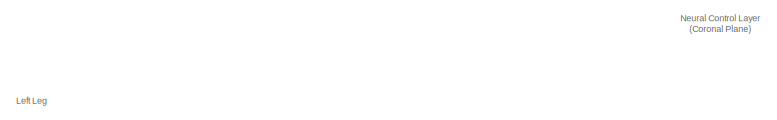
[diagram: Neural Control Layer - part 1/10, top center region]
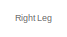
[diagram: Neural Control Layer - part 2/10, top right region]
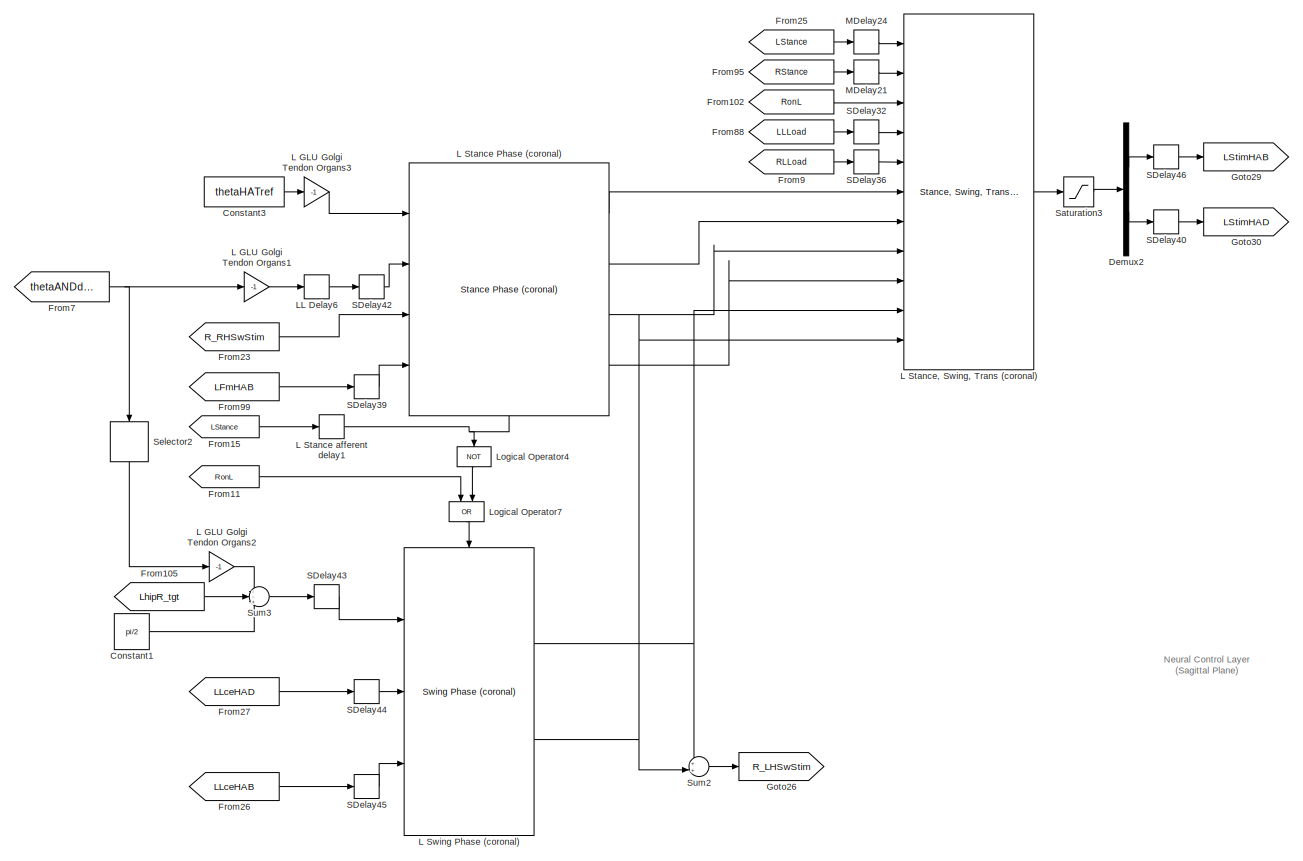
[diagram: Neural Control Layer - part 3/10, top left region]
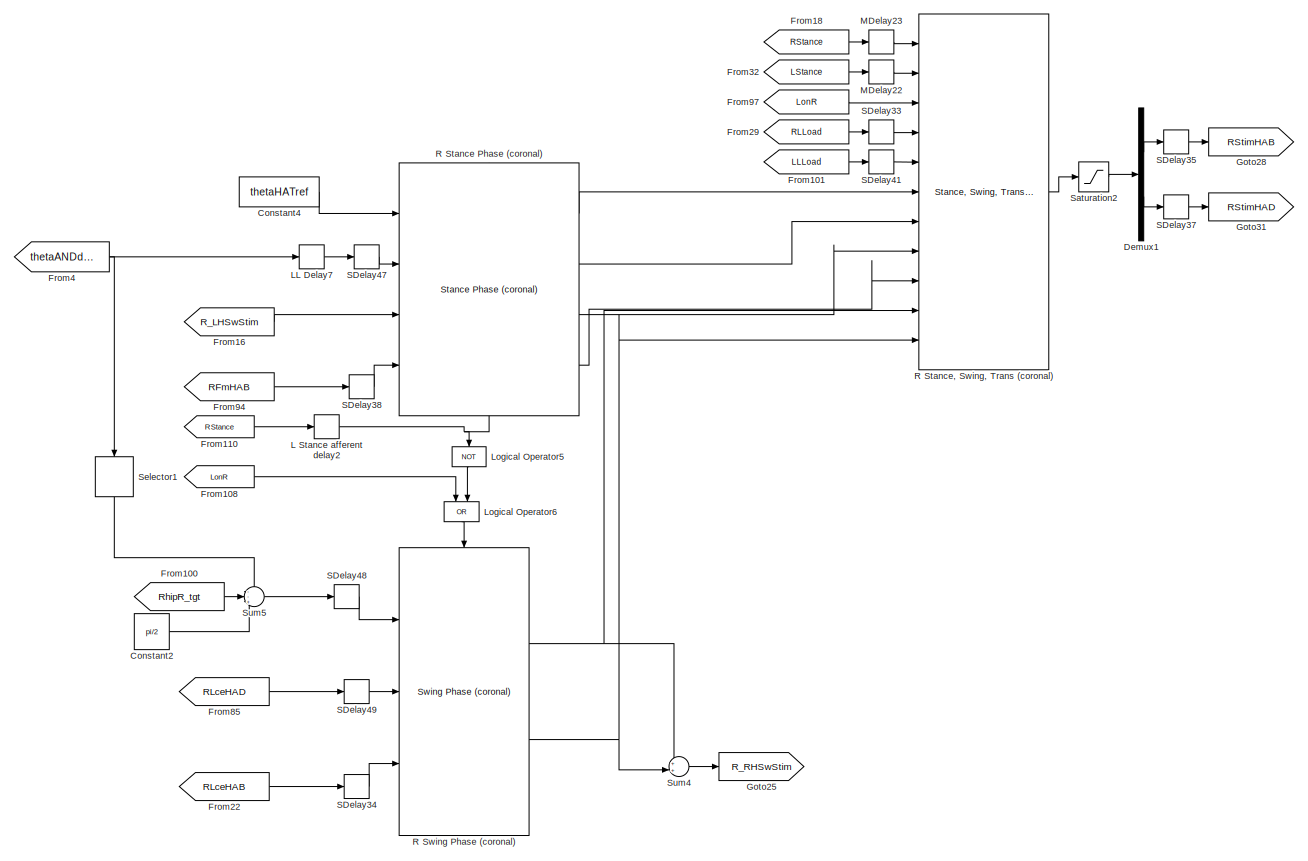
[diagram: Neural Control Layer - part 4/10, top right region]
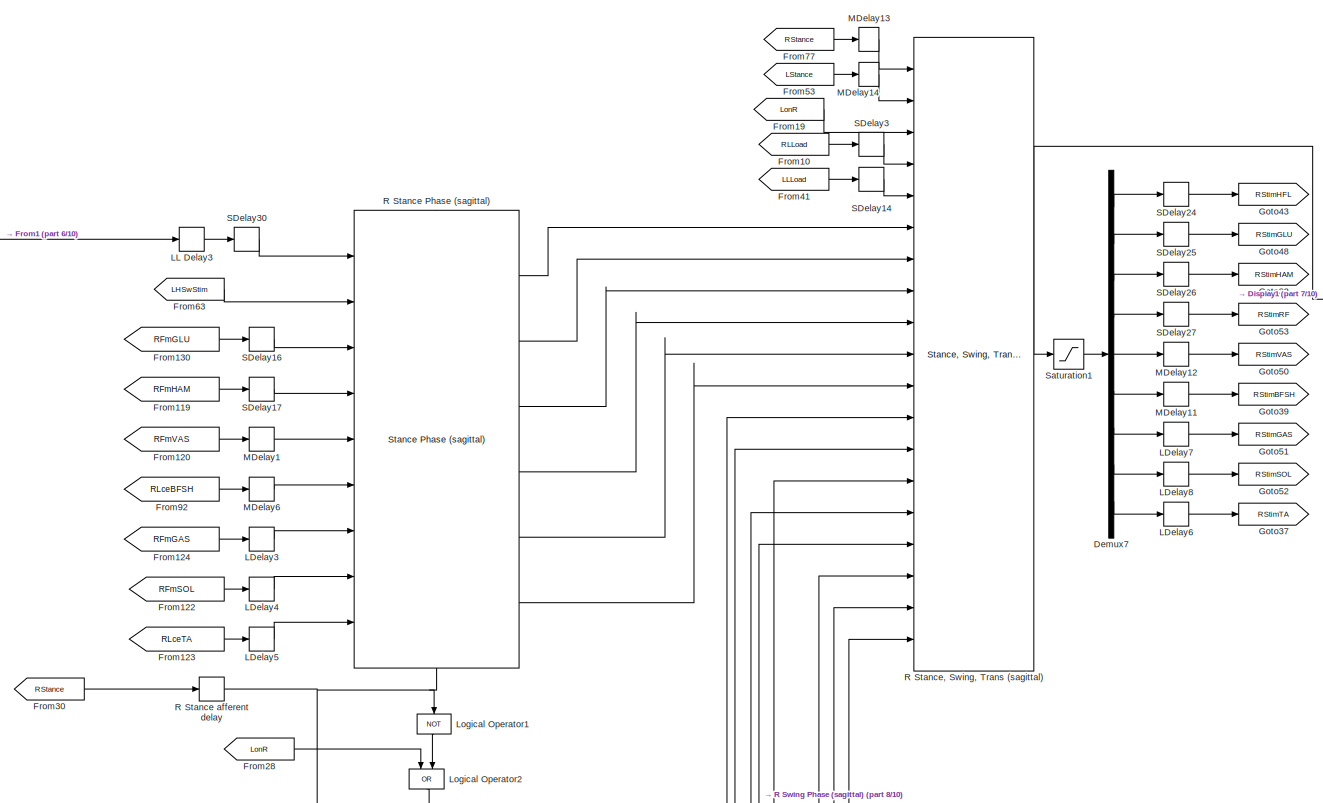
[diagram: Neural Control Layer - part 5/10, middle right region]
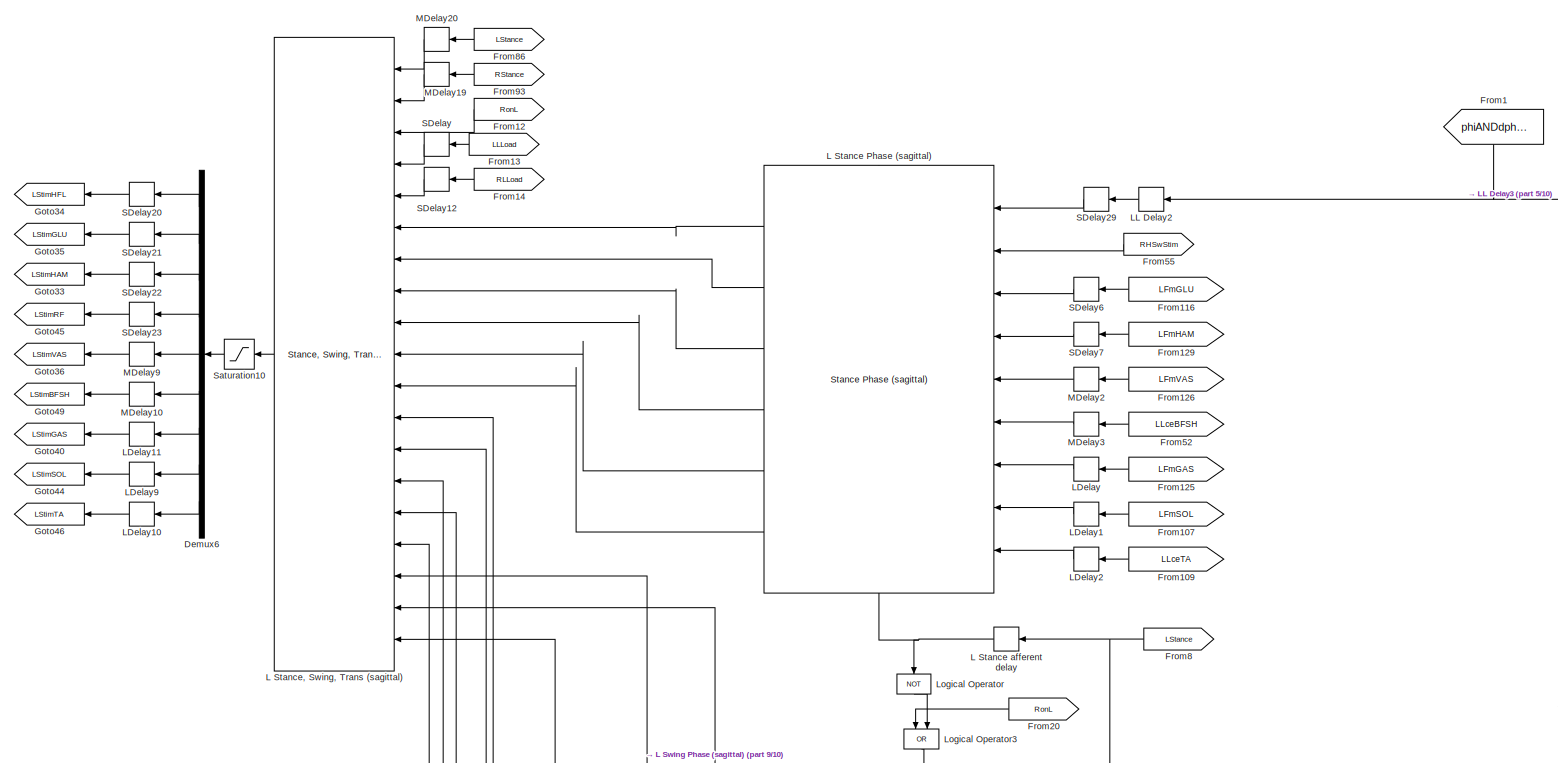
[diagram: Neural Control Layer - part 6/10, middle left region]
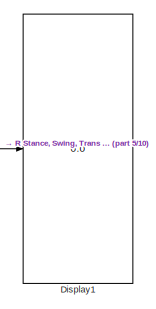
[diagram: Neural Control Layer - part 7/10, middle right region]
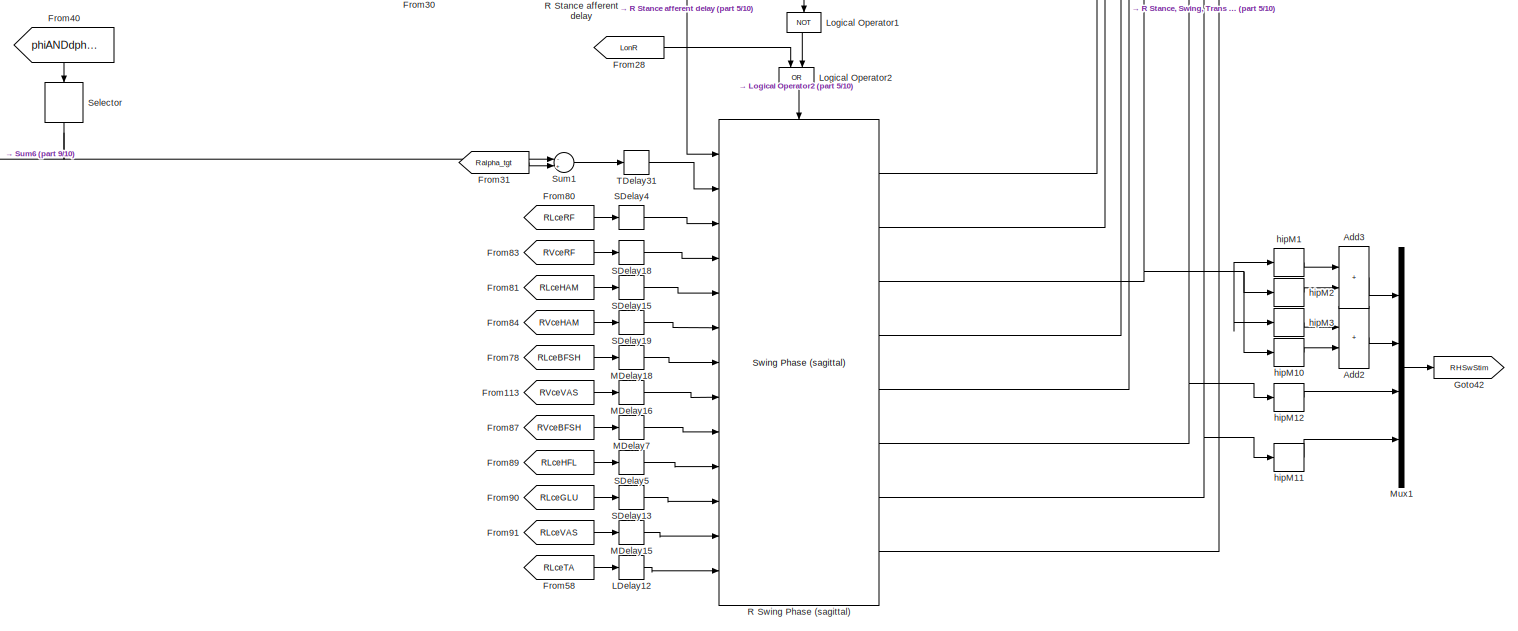
[diagram: Neural Control Layer - part 8/10, bottom center region]
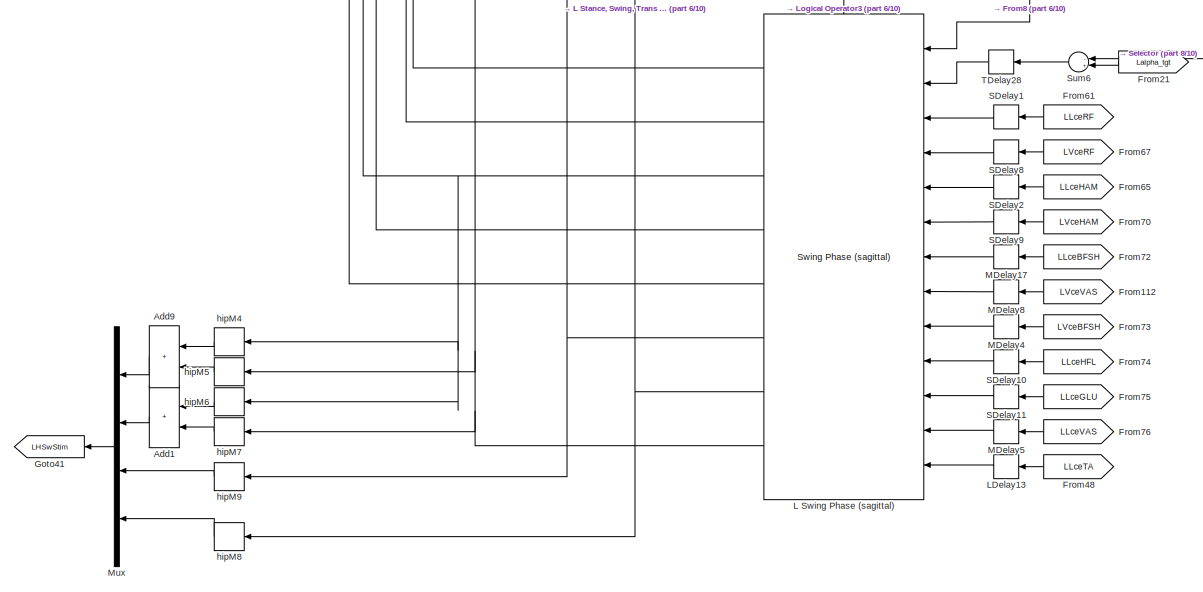
[diagram: Neural Control Layer - part 9/10, bottom left region]
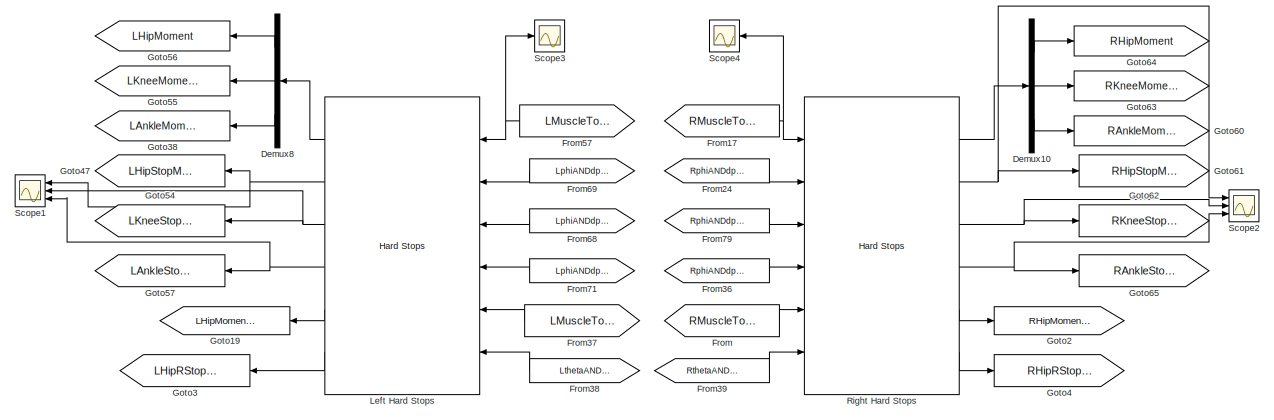
[diagram: Neural Control Layer - part 10/10, bottom center region]
BLOCK [SubSystem] Neural Control Layer
  Ports = []
  RequestExecContextInheritance = off
BLOCK [Sum] Neural Control Layer/Add1
  IconShape = rectangular
  Inputs = 2
  Ports = [2, 1]
BLOCK [Sum] Neural Control Layer/Add2
  IconShape = rectangular
  Inputs = 2
  Ports = [2, 1]
BLOCK [Sum] Neural Control Layer/Add3
  IconShape = rectangular
  Inputs = 2
  Ports = [2, 1]
BLOCK [Sum] Neural Control Layer/Add9
  IconShape = rectangular
  Inputs = 2
  Ports = [2, 1]
BLOCK [Constant] Neural Control Layer/Constant1
  Value = pi/2
BLOCK [Constant] Neural Control Layer/Constant2
  Value = pi/2
BLOCK [Constant] Neural Control Layer/Constant3
  Value = thetaHATref
BLOCK [Constant] Neural Control Layer/Constant4
  Value = thetaHATref
BLOCK [Demux] Neural Control Layer/Demux1
  NameLocation = top
  Outputs = 2
  Ports = [1, 2]
BLOCK [Demux] Neural Control Layer/Demux10
  Outputs = 3
  Ports = [1, 3]
BLOCK [Demux] Neural Control Layer/Demux2
  NameLocation = top
  Outputs = 2
  Ports = [1, 2]
BLOCK [Demux] Neural Control Layer/Demux6
  NameLocation = top
  Outputs = 9
  Ports = [1, 9]
BLOCK [Demux] Neural Control Layer/Demux7
  NameLocation = top
  Outputs = 9
  Ports = [1, 9]
BLOCK [Demux] Neural Control Layer/Demux8
  Outputs = 3
  Ports = [1, 3]
BLOCK [Display] Neural Control Layer/Display1
  Decimation = 1
  Ports = [1]
BLOCK [From] Neural Control Layer/From
  GotoTag = RMuscleTorquesR
  TagVisibility = global
BLOCK [From] Neural Control Layer/From1
  GotoTag = phiANDdphiHAT
  NameLocation = left
  TagVisibility = global
BLOCK [From] Neural Control Layer/From10
  CloseFcn = tagdialog Close
  GotoTag = RLLoad
  NameLocation = top
  TagVisibility = global
BLOCK [From] Neural Control Layer/From100
  CloseFcn = tagdialog Close
  GotoTag = RhipR_tgt
  TagVisibility = global
BLOCK [From] Neural Control Layer/From101
  CloseFcn = tagdialog Close
  GotoTag = LLLoad
  NameLocation = top
  TagVisibility = global
BLOCK [From] Neural Control Layer/From102
  CloseFcn = tagdialog Close
  GotoTag = RonL
  NameLocation = top
  TagVisibility = global
BLOCK [From] Neural Control Layer/From105
  CloseFcn = tagdialog Close
  GotoTag = LhipR_tgt
  TagVisibility = global
BLOCK [From] Neural Control Layer/From107
  GotoTag = LFmSOL
  TagVisibility = global
BLOCK [From] Neural Control Layer/From108
  CloseFcn = tagdialog Close
  GotoTag = LonR
  NameLocation = top
  TagVisibility = global
BLOCK [From] Neural Control Layer/From109
  GotoTag = LLceTA
  TagVisibility = global
BLOCK [From] Neural Control Layer/From11
  CloseFcn = tagdialog Close
  GotoTag = RonL
  NameLocation = top
  TagVisibility = global
BLOCK [From] Neural Control Layer/From110
  CloseFcn = tagdialog Close
  GotoTag = RStance
  NameLocation = top
  TagVisibility = global
BLOCK [From] Neural Control Layer/From112
  CloseFcn = tagdialog Close
  GotoTag = LVceVAS
  NameLocation = top
  TagVisibility = global
BLOCK [From] Neural Control Layer/From113
  CloseFcn = tagdialog Close
  GotoTag = RVceVAS
  NameLocation = top
  TagVisibility = global
BLOCK [From] Neural Control Layer/From116
  GotoTag = LFmGLU
  TagVisibility = global
BLOCK [From] Neural Control Layer/From119
  GotoTag = RFmHAM
  NameLocation = top
  TagVisibility = global
BLOCK [From] Neural Control Layer/From12
  CloseFcn = tagdialog Close
  GotoTag = RonL
  TagVisibility = global
BLOCK [From] Neural Control Layer/From120
  GotoTag = RFmVAS
  TagVisibility = global
BLOCK [From] Neural Control Layer/From122
  GotoTag = RFmSOL
  NameLocation = top
  TagVisibility = global
BLOCK [From] Neural Control Layer/From123
  GotoTag = RLceTA
  NameLocation = top
  TagVisibility = global
BLOCK [From] Neural Control Layer/From124
  GotoTag = RFmGAS
  NameLocation = top
  TagVisibility = global
BLOCK [From] Neural Control Layer/From125
  GotoTag = LFmGAS
  TagVisibility = global
BLOCK [From] Neural Control Layer/From126
  GotoTag = LFmVAS
  TagVisibility = global
BLOCK [From] Neural Control Layer/From129
  GotoTag = LFmHAM
  TagVisibility = global
BLOCK [From] Neural Control Layer/From13
  CloseFcn = tagdialog Close
  GotoTag = LLLoad
  TagVisibility = global
BLOCK [From] Neural Control Layer/From130
  GotoTag = RFmGLU
  NameLocation = top
  TagVisibility = global
BLOCK [From] Neural Control Layer/From14
  CloseFcn = tagdialog Close
  GotoTag = RLLoad
  TagVisibility = global
BLOCK [From] Neural Control Layer/From15
  CloseFcn = tagdialog Close
  GotoTag = LStance
  NameLocation = top
  TagVisibility = global
BLOCK [From] Neural Control Layer/From16
  CloseFcn = tagdialog Close
  GotoTag = R_LHSwStim
  TagVisibility = global
BLOCK [From] Neural Control Layer/From17
  GotoTag = RMuscleTorques
  TagVisibility = global
BLOCK [From] Neural Control Layer/From18
  CloseFcn = tagdialog Close
  GotoTag = RStance
  NameLocation = top
  TagVisibility = global
BLOCK [From] Neural Control Layer/From19
  CloseFcn = tagdialog Close
  GotoTag = LonR
  NameLocation = top
  TagVisibility = global
BLOCK [From] Neural Control Layer/From20
  CloseFcn = tagdialog Close
  GotoTag = RonL
  TagVisibility = global
BLOCK [From] Neural Control Layer/From21
  CloseFcn = tagdialog Close
  GotoTag = Lalpha_tgt
  TagVisibility = global
BLOCK [From] Neural Control Layer/From22
  CloseFcn = tagdialog Close
  GotoTag = RLceHAB
  TagVisibility = global
BLOCK [From] Neural Control Layer/From23
  CloseFcn = tagdialog Close
  GotoTag = R_RHSwStim
  TagVisibility = global
BLOCK [From] Neural Control Layer/From24
  GotoTag = RphiANDdphiHip
  TagVisibility = global
BLOCK [From] Neural Control Layer/From25
  CloseFcn = tagdialog Close
  GotoTag = LStance
  NameLocation = top
  TagVisibility = global
BLOCK [From] Neural Control Layer/From26
  CloseFcn = tagdialog Close
  GotoTag = LLceHAB
  TagVisibility = global
BLOCK [From] Neural Control Layer/From27
  CloseFcn = tagdialog Close
  GotoTag = LLceHAD
  TagVisibility = global
BLOCK [From] Neural Control Layer/From28
  CloseFcn = tagdialog Close
  GotoTag = LonR
  NameLocation = top
  TagVisibility = global
BLOCK [From] Neural Control Layer/From29
  CloseFcn = tagdialog Close
  GotoTag = RLLoad
  NameLocation = top
  TagVisibility = global
BLOCK [From] Neural Control Layer/From30
  GotoTag = RStance
  NameLocation = top
  TagVisibility = global
BLOCK [From] Neural Control Layer/From31
  CloseFcn = tagdialog Close
  GotoTag = Ralpha_tgt
  NameLocation = top
  TagVisibility = global
BLOCK [From] Neural Control Layer/From32
  CloseFcn = tagdialog Close
  GotoTag = LStance
  NameLocation = top
  TagVisibility = global
BLOCK [From] Neural Control Layer/From36
  GotoTag = RphiANDdphiAnkle
  TagVisibility = global
BLOCK [From] Neural Control Layer/From37
  GotoTag = LMuscleTorquesR
  NameLocation = top
  TagVisibility = global
BLOCK [From] Neural Control Layer/From38
  GotoTag = LthetaANDdthetaHipR
  TagVisibility = global
BLOCK [From] Neural Control Layer/From39
  GotoTag = RthetaANDdthetaHipR
  NameLocation = top
  TagVisibility = global
BLOCK [From] Neural Control Layer/From4
  GotoTag = thetaANDdthetaHAT
  TagVisibility = global
BLOCK [From] Neural Control Layer/From40
  GotoTag = phiANDdphiHAT
  NameLocation = left
  TagVisibility = global
BLOCK [From] Neural Control Layer/From41
  CloseFcn = tagdialog Close
  GotoTag = LLLoad
  NameLocation = top
  TagVisibility = global
BLOCK [From] Neural Control Layer/From48
  CloseFcn = tagdialog Close
  GotoTag = LLceTA
  NameLocation = top
  TagVisibility = global
BLOCK [From] Neural Control Layer/From52
  GotoTag = LLceBFSH
  TagVisibility = global
BLOCK [From] Neural Control Layer/From53
  GotoTag = LStance
  TagVisibility = global
BLOCK [From] Neural Control Layer/From55
  CloseFcn = tagdialog Close
  GotoTag = RHSwStim
  NameLocation = top
  TagVisibility = global
BLOCK [From] Neural Control Layer/From57
  GotoTag = LMuscleTorques
  NameLocation = top
  TagVisibility = global
BLOCK [From] Neural Control Layer/From58
  CloseFcn = tagdialog Close
  GotoTag = RLceTA
  NameLocation = top
  TagVisibility = global
BLOCK [From] Neural Control Layer/From61
  CloseFcn = tagdialog Close
  GotoTag = LLceRF
  NameLocation = top
  TagVisibility = global
BLOCK [From] Neural Control Layer/From63
  CloseFcn = tagdialog Close
  GotoTag = LHSwStim
  NameLocation = top
  TagVisibility = global
BLOCK [From] Neural Control Layer/From65
  CloseFcn = tagdialog Close
  GotoTag = LLceHAM
  NameLocation = top
  TagVisibility = global
BLOCK [From] Neural Control Layer/From67
  CloseFcn = tagdialog Close
  GotoTag = LVceRF
  NameLocation = top
  TagVisibility = global
BLOCK [From] Neural Control Layer/From68
  GotoTag = LphiANDdphiKnee
  TagVisibility = global
BLOCK [From] Neural Control Layer/From69
  GotoTag = LphiANDdphiHip
  TagVisibility = global
BLOCK [From] Neural Control Layer/From7
  GotoTag = thetaANDdthetaHAT
  TagVisibility = global
BLOCK [From] Neural Control Layer/From70
  CloseFcn = tagdialog Close
  GotoTag = LVceHAM
  NameLocation = top
  TagVisibility = global
BLOCK [From] Neural Control Layer/From71
  GotoTag = LphiANDdphiAnkle
  TagVisibility = global
BLOCK [From] Neural Control Layer/From72
  CloseFcn = tagdialog Close
  GotoTag = LLceBFSH
  NameLocation = top
  TagVisibility = global
BLOCK [From] Neural Control Layer/From73
  CloseFcn = tagdialog Close
  GotoTag = LVceBFSH
  NameLocation = top
  TagVisibility = global
BLOCK [From] Neural Control Layer/From74
  CloseFcn = tagdialog Close
  GotoTag = LLceHFL
  NameLocation = top
  TagVisibility = global
BLOCK [From] Neural Control Layer/From75
  CloseFcn = tagdialog Close
  GotoTag = LLceGLU
  NameLocation = top
  TagVisibility = global
BLOCK [From] Neural Control Layer/From76
  CloseFcn = tagdialog Close
  GotoTag = LLceVAS
  NameLocation = top
  TagVisibility = global
BLOCK [From] Neural Control Layer/From77
  GotoTag = RStance
  TagVisibility = global
BLOCK [From] Neural Control Layer/From78
  CloseFcn = tagdialog Close
  GotoTag = RLceBFSH
  NameLocation = top
  TagVisibility = global
BLOCK [From] Neural Control Layer/From79
  GotoTag = RphiANDdphiKnee
  TagVisibility = global
BLOCK [From] Neural Control Layer/From8
  GotoTag = LStance
  NameLocation = top
  TagVisibility = global
BLOCK [From] Neural Control Layer/From80
  CloseFcn = tagdialog Close
  GotoTag = RLceRF
  NameLocation = top
  TagVisibility = global
BLOCK [From] Neural Control Layer/From81
  CloseFcn = tagdialog Close
  GotoTag = RLceHAM
  NameLocation = top
  TagVisibility = global
BLOCK [From] Neural Control Layer/From83
  CloseFcn = tagdialog Close
  GotoTag = RVceRF
  NameLocation = top
  TagVisibility = global
BLOCK [From] Neural Control Layer/From84
  CloseFcn = tagdialog Close
  GotoTag = RVceHAM
  NameLocation = top
  TagVisibility = global
BLOCK [From] Neural Control Layer/From85
  CloseFcn = tagdialog Close
  GotoTag = RLceHAD
  TagVisibility = global
BLOCK [From] Neural Control Layer/From86
  GotoTag = LStance
  TagVisibility = global
BLOCK [From] Neural Control Layer/From87
  CloseFcn = tagdialog Close
  GotoTag = RVceBFSH
  NameLocation = top
  TagVisibility = global
BLOCK [From] Neural Control Layer/From88
  CloseFcn = tagdialog Close
  GotoTag = LLLoad
  NameLocation = top
  TagVisibility = global
BLOCK [From] Neural Control Layer/From89
  CloseFcn = tagdialog Close
  GotoTag = RLceHFL
  NameLocation = top
  TagVisibility = global
BLOCK [From] Neural Control Layer/From9
  CloseFcn = tagdialog Close
  GotoTag = RLLoad
  NameLocation = top
  TagVisibility = global
BLOCK [From] Neural Control Layer/From90
  CloseFcn = tagdialog Close
  GotoTag = RLceGLU
  NameLocation = top
  TagVisibility = global
BLOCK [From] Neural Control Layer/From91
  CloseFcn = tagdialog Close
  GotoTag = RLceVAS
  NameLocation = top
  TagVisibility = global
BLOCK [From] Neural Control Layer/From92
  GotoTag = RLceBFSH
  NameLocation = top
  TagVisibility = global
BLOCK [From] Neural Control Layer/From93
  GotoTag = RStance
  TagVisibility = global
BLOCK [From] Neural Control Layer/From94
  CloseFcn = tagdialog Close
  GotoTag = RFmHAB
  TagVisibility = global
BLOCK [From] Neural Control Layer/From95
  CloseFcn = tagdialog Close
  GotoTag = RStance
  NameLocation = top
  TagVisibility = global
BLOCK [From] Neural Control Layer/From97
  CloseFcn = tagdialog Close
  GotoTag = LonR
  NameLocation = top
  TagVisibility = global
BLOCK [From] Neural Control Layer/From99
  CloseFcn = tagdialog Close
  GotoTag = LFmHAB
  TagVisibility = global
BLOCK [Goto] Neural Control Layer/Goto19
  GotoTag = LHipMomentR
  TagVisibility = global
BLOCK [Goto] Neural Control Layer/Goto2
  GotoTag = RHipMomentR
  NameLocation = top
  TagVisibility = global
BLOCK [Goto] Neural Control Layer/Goto25
  GotoTag = R_RHSwStim
  TagVisibility = global
BLOCK [Goto] Neural Control Layer/Goto26
  GotoTag = R_LHSwStim
  TagVisibility = global
BLOCK [Goto] Neural Control Layer/Goto28
  GotoTag = RStimHAB
  TagVisibility = global
BLOCK [Goto] Neural Control Layer/Goto29
  GotoTag = LStimHAB
  TagVisibility = global
BLOCK [Goto] Neural Control Layer/Goto3
  GotoTag = LHipRStopMoment
  TagVisibility = global
BLOCK [Goto] Neural Control Layer/Goto30
  GotoTag = LStimHAD
  TagVisibility = global
BLOCK [Goto] Neural Control Layer/Goto31
  GotoTag = RStimHAD
  TagVisibility = global
BLOCK [Goto] Neural Control Layer/Goto32
  GotoTag = RStimHAM
  NameLocation = top
  TagVisibility = global
BLOCK [Goto] Neural Control Layer/Goto33
  GotoTag = LStimHAM
  NameLocation = top
  TagVisibility = global
BLOCK [Goto] Neural Control Layer/Goto34
  GotoTag = LStimHFL
  NameLocation = top
  TagVisibility = global
BLOCK [Goto] Neural Control Layer/Goto35
  GotoTag = LStimGLU
  NameLocation = top
  TagVisibility = global
BLOCK [Goto] Neural Control Layer/Goto36
  GotoTag = LStimVAS
  NameLocation = top
  TagVisibility = global
BLOCK [Goto] Neural Control Layer/Goto37
  GotoTag = RStimTA
  NameLocation = top
  TagVisibility = global
BLOCK [Goto] Neural Control Layer/Goto38
  GotoTag = LAnkleMoment
  TagVisibility = global
BLOCK [Goto] Neural Control Layer/Goto39
  GotoTag = RStimBFSH
  NameLocation = top
  TagVisibility = global
BLOCK [Goto] Neural Control Layer/Goto4
  GotoTag = RHipRStopMoment
  NameLocation = top
  TagVisibility = global
BLOCK [Goto] Neural Control Layer/Goto40
  GotoTag = LStimGAS
  NameLocation = top
  TagVisibility = global
BLOCK [Goto] Neural Control Layer/Goto41
  GotoTag = LHSwStim
  NameLocation = top
  TagVisibility = global
BLOCK [Goto] Neural Control Layer/Goto42
  GotoTag = RHSwStim
  NameLocation = top
  TagVisibility = global
BLOCK [Goto] Neural Control Layer/Goto43
  GotoTag = RStimHFL
  NameLocation = top
  TagVisibility = global
BLOCK [Goto] Neural Control Layer/Goto44
  GotoTag = LStimSOL
  NameLocation = top
  TagVisibility = global
BLOCK [Goto] Neural Control Layer/Goto45
  GotoTag = LStimRF
  NameLocation = top
  TagVisibility = global
BLOCK [Goto] Neural Control Layer/Goto46
  GotoTag = LStimTA
  NameLocation = top
  TagVisibility = global
BLOCK [Goto] Neural Control Layer/Goto47
  GotoTag = LHipStopMoment
  TagVisibility = global
BLOCK [Goto] Neural Control Layer/Goto48
  GotoTag = RStimGLU
  NameLocation = top
  TagVisibility = global
BLOCK [Goto] Neural Control Layer/Goto49
  GotoTag = LStimBFSH
  NameLocation = top
  TagVisibility = global
BLOCK [Goto] Neural Control Layer/Goto50
  GotoTag = RStimVAS
  NameLocation = top
  TagVisibility = global
BLOCK [Goto] Neural Control Layer/Goto51
  GotoTag = RStimGAS
  NameLocation = top
  TagVisibility = global
BLOCK [Goto] Neural Control Layer/Goto52
  GotoTag = RStimSOL
  NameLocation = top
  TagVisibility = global
BLOCK [Goto] Neural Control Layer/Goto53
  GotoTag = RStimRF
  NameLocation = top
  TagVisibility = global
BLOCK [Goto] Neural Control Layer/Goto54
  GotoTag = LKneeStopMoment
  TagVisibility = global
BLOCK [Goto] Neural Control Layer/Goto55
  GotoTag = LKneeMoment
  TagVisibility = global
BLOCK [Goto] Neural Control Layer/Goto56
  GotoTag = LHipMoment
  TagVisibility = global
BLOCK [Goto] Neural Control Layer/Goto57
  GotoTag = LAnkleStopMoment
  TagVisibility = global
BLOCK [Goto] Neural Control Layer/Goto60
  GotoTag = RAnkleMoment
  TagVisibility = global
BLOCK [Goto] Neural Control Layer/Goto61
  GotoTag = RHipStopMoment
  TagVisibility = global
BLOCK [Goto] Neural Control Layer/Goto62
  GotoTag = RKneeStopMoment
  TagVisibility = global
BLOCK [Goto] Neural Control Layer/Goto63
  GotoTag = RKneeMoment
  TagVisibility = global
BLOCK [Goto] Neural Control Layer/Goto64
  GotoTag = RHipMoment
  TagVisibility = global
BLOCK [Goto] Neural Control Layer/Goto65
  GotoTag = RAnkleStopMoment
  TagVisibility = global
BLOCK [Gain] Neural Control Layer/L GLU Golgi Tendon Organs1
  Gain = -1
  NameLocation = top
BLOCK [Gain] Neural Control Layer/L GLU Golgi Tendon Organs2
  Gain = -1
  NameLocation = top
BLOCK [Gain] Neural Control Layer/L GLU Golgi Tendon Organs3
  Gain = -1
  NameLocation = top
BLOCK [Reference] Neural Control Layer/L Stance Phase (coronal)  REF=NeuroMuscularLibrary/Stance Phase (coronal)
  NameLocation = top
  Ports = [4, 4, 1]
  SourceBlock = NeuroMuscularLibrary/Stance Phase (coronal)
BLOCK [Reference] Neural Control Layer/L Stance Phase (sagittal)  REF=NeuroMuscularLibrary/Stance Phase (sagittal)
  NameLocation = top
  Ports = [9, 6, 1]
  SourceBlock = NeuroMuscularLibrary/Stance Phase (sagittal)
BLOCK [TransportDelay] Neural Control Layer/L Stance afferent delay
  DelayTime = MidDelay
  Ports = [1, 1]
BLOCK [TransportDelay] Neural Control Layer/L Stance afferent delay1
  DelayTime = MidDelay
  Ports = [1, 1]
BLOCK [TransportDelay] Neural Control Layer/L Stance afferent delay2
  DelayTime = MidDelay
  Ports = [1, 1]
BLOCK [Reference] Neural Control Layer/L Stance, Swing, Trans (coronal)  REF=NeuroMuscularLibrary/Stance, Swing, Trans (coronal)
  NameLocation = top
  Ports = [11, 1]
  SourceBlock = NeuroMuscularLibrary/Stance, Swing, Trans (coronal)
BLOCK [Reference] Neural Control Layer/L Stance, Swing, Trans (sagittal)  REF=NeuroMuscularLibrary/Stance, Swing, Trans (sagittal)
  NameLocation = top
  Ports = [19, 1]
  SourceBlock = NeuroMuscularLibrary/Stance, Swing, Trans (sagittal)
BLOCK [Reference] Neural Control Layer/L Swing Phase (coronal)  REF=NeuroMuscularLibrary/Swing Phase (coronal)
  Ports = [3, 2, 1]
  SourceBlock = NeuroMuscularLibrary/Swing Phase (coronal)
BLOCK [Reference] Neural Control Layer/L Swing Phase (sagittal)  REF=NeuroMuscularLibrary/Swing Phase (sagittal)
  Ports = [13, 8, 1]
  SourceBlock = NeuroMuscularLibrary/Swing Phase (sagittal)
BLOCK [TransportDelay] Neural Control Layer/LDelay
  DelayTime = LongDelay
  Ports = [1, 1]
BLOCK [TransportDelay] Neural Control Layer/LDelay1
  DelayTime = LongDelay
  Ports = [1, 1]
BLOCK [TransportDelay] Neural Control Layer/LDelay10
  DelayTime = LongDelay
  InitialOutput = LPreStimTAinit
  Ports = [1, 1]
BLOCK [TransportDelay] Neural Control Layer/LDelay11
  DelayTime = LongDelay
  InitialOutput = LPreStimGASinit
  Ports = [1, 1]
BLOCK [TransportDelay] Neural Control Layer/LDelay12
  DelayTime = LongDelay
  InitialOutput = 1
  Ports = [1, 1]
BLOCK [TransportDelay] Neural Control Layer/LDelay13
  DelayTime = LongDelay
  InitialOutput = 1
  Ports = [1, 1]
BLOCK [TransportDelay] Neural Control Layer/LDelay2
  DelayTime = LongDelay
  InitialOutput = 1
  Ports = [1, 1]
BLOCK [TransportDelay] Neural Control Layer/LDelay3
  DelayTime = LongDelay
  Ports = [1, 1]
BLOCK [TransportDelay] Neural Control Layer/LDelay4
  DelayTime = LongDelay
  Ports = [1, 1]
BLOCK [TransportDelay] Neural Control Layer/LDelay5
  DelayTime = LongDelay
  InitialOutput = 1
  Ports = [1, 1]
BLOCK [TransportDelay] Neural Control Layer/LDelay6
  DelayTime = LongDelay
  InitialOutput = RPreStimTAinit
  Ports = [1, 1]
BLOCK [TransportDelay] Neural Control Layer/LDelay7
  DelayTime = LongDelay
  InitialOutput = RPreStimGASinit
  Ports = [1, 1]
BLOCK [TransportDelay] Neural Control Layer/LDelay8
  DelayTime = LongDelay
  InitialOutput = RPreStimSOLinit
  Ports = [1, 1]
BLOCK [TransportDelay] Neural Control Layer/LDelay9
  DelayTime = LongDelay
  InitialOutput = LPreStimSOLinit
  Ports = [1, 1]
BLOCK [TransportDelay] Neural Control Layer/LL Delay2
  DelayTime = LongLoopDelay/2
  NameLocation = top
  Ports = [1, 1]
BLOCK [TransportDelay] Neural Control Layer/LL Delay3
  DelayTime = LongLoopDelay/2
  NameLocation = top
  Ports = [1, 1]
BLOCK [TransportDelay] Neural Control Layer/LL Delay6
  DelayTime = LongLoopDelay/2
  Ports = [1, 1]
BLOCK [TransportDelay] Neural Control Layer/LL Delay7
  DelayTime = LongLoopDelay/2
  Ports = [1, 1]
BLOCK [Reference] Neural Control Layer/Left Hard Stops  REF=NeuroMuscularLibrary/Hard Stops
  Ports = [6, 6]
  SourceBlock = NeuroMuscularLibrary/Hard Stops
  SourceType = SubSystem
BLOCK [Logic] Neural Control Layer/Logical Operator
  AllPortsSameDT = off
  NameLocation = left
  Operator = NOT
  OutDataTypeStr = boolean
  Ports = [1, 1]
BLOCK [Logic] Neural Control Layer/Logical Operator1
  AllPortsSameDT = off
  NameLocation = left
  Operator = NOT
  OutDataTypeStr = boolean
  Ports = [1, 1]
BLOCK [Logic] Neural Control Layer/Logical Operator2
  AllPortsSameDT = off
  NameLocation = left
  Operator = OR
  OutDataTypeStr = boolean
  Ports = [2, 1]
BLOCK [Logic] Neural Control Layer/Logical Operator3
  AllPortsSameDT = off
  NameLocation = left
  Operator = OR
  OutDataTypeStr = boolean
  Ports = [2, 1]
BLOCK [Logic] Neural Control Layer/Logical Operator4
  AllPortsSameDT = off
  NameLocation = left
  Operator = NOT
  OutDataTypeStr = boolean
  Ports = [1, 1]
BLOCK [Logic] Neural Control Layer/Logical Operator5
  AllPortsSameDT = off
  NameLocation = left
  Operator = NOT
  OutDataTypeStr = boolean
  Ports = [1, 1]
BLOCK [Logic] Neural Control Layer/Logical Operator6
  AllPortsSameDT = off
  NameLocation = left
  Operator = OR
  OutDataTypeStr = boolean
  Ports = [2, 1]
BLOCK [Logic] Neural Control Layer/Logical Operator7
  AllPortsSameDT = off
  NameLocation = left
  Operator = OR
  OutDataTypeStr = boolean
  Ports = [2, 1]
BLOCK [TransportDelay] Neural Control Layer/MDelay1
  DelayTime = MidDelay
  Ports = [1, 1]
BLOCK [TransportDelay] Neural Control Layer/MDelay10
  DelayTime = MidDelay
  InitialOutput = LPreStimBFSHinit
  Ports = [1, 1]
BLOCK [TransportDelay] Neural Control Layer/MDelay11
  DelayTime = MidDelay
  InitialOutput = RPreStimBFSHinit
  Ports = [1, 1]
BLOCK [TransportDelay] Neural Control Layer/MDelay12
  DelayTime = MidDelay
  InitialOutput = RPreStimVASinit
  Ports = [1, 1]
BLOCK [TransportDelay] Neural Control Layer/MDelay13
  DelayTime = MidDelay
  Ports = [1, 1]
BLOCK [TransportDelay] Neural Control Layer/MDelay14
  DelayTime = MidDelay
  Ports = [1, 1]
BLOCK [TransportDelay] Neural Control Layer/MDelay15
  DelayTime = MidDelay
  InitialOutput = 1
  Ports = [1, 1]
BLOCK [TransportDelay] Neural Control Layer/MDelay16
  DelayTime = MidDelay
  Ports = [1, 1]
BLOCK [TransportDelay] Neural Control Layer/MDelay17
  DelayTime = MidDelay
  InitialOutput = 1
  Ports = [1, 1]
BLOCK [TransportDelay] Neural Control Layer/MDelay18
  DelayTime = MidDelay
  InitialOutput = 1
  Ports = [1, 1]
BLOCK [TransportDelay] Neural Control Layer/MDelay19
  DelayTime = MidDelay
  Ports = [1, 1]
BLOCK [TransportDelay] Neural Control Layer/MDelay2
  DelayTime = MidDelay
  Ports = [1, 1]
BLOCK [TransportDelay] Neural Control Layer/MDelay20
  DelayTime = MidDelay
  Ports = [1, 1]
BLOCK [TransportDelay] Neural Control Layer/MDelay21
  DelayTime = MidDelay
  Ports = [1, 1]
BLOCK [TransportDelay] Neural Control Layer/MDelay22
  DelayTime = MidDelay
  Ports = [1, 1]
BLOCK [TransportDelay] Neural Control Layer/MDelay23
  DelayTime = MidDelay
  Ports = [1, 1]
BLOCK [TransportDelay] Neural Control Layer/MDelay24
  DelayTime = MidDelay
  Ports = [1, 1]
BLOCK [TransportDelay] Neural Control Layer/MDelay3
  DelayTime = MidDelay
  InitialOutput = 1
  Ports = [1, 1]
BLOCK [TransportDelay] Neural Control Layer/MDelay4
  DelayTime = MidDelay
  Ports = [1, 1]
BLOCK [TransportDelay] Neural Control Layer/MDelay5
  DelayTime = MidDelay
  InitialOutput = 1
  Ports = [1, 1]
BLOCK [TransportDelay] Neural Control Layer/MDelay6
  DelayTime = MidDelay
  InitialOutput = 1
  Ports = [1, 1]
BLOCK [TransportDelay] Neural Control Layer/MDelay7
  DelayTime = MidDelay
  Ports = [1, 1]
BLOCK [TransportDelay] Neural Control Layer/MDelay8
  DelayTime = MidDelay
  Ports = [1, 1]
BLOCK [TransportDelay] Neural Control Layer/MDelay9
  DelayTime = MidDelay
  InitialOutput = LPreStimVASinit
  Ports = [1, 1]
BLOCK [Mux] Neural Control Layer/Mux
  DisplayOption = bar
  Ports = [4, 1]
BLOCK [Mux] Neural Control Layer/Mux1
  DisplayOption = bar
  Ports = [4, 1]
BLOCK [Reference] Neural Control Layer/R Stance Phase (coronal)  REF=NeuroMuscularLibrary/Stance Phase (coronal)
  NameLocation = top
  Ports = [4, 4, 1]
  SourceBlock = NeuroMuscularLibrary/Stance Phase (coronal)
BLOCK [Reference] Neural Control Layer/R Stance Phase (sagittal)  REF=NeuroMuscularLibrary/Stance Phase (sagittal)
  NameLocation = top
  Ports = [9, 6, 1]
  SourceBlock = NeuroMuscularLibrary/Stance Phase (sagittal)
BLOCK [TransportDelay] Neural Control Layer/R Stance afferent delay
  DelayTime = MidDelay
  Ports = [1, 1]
BLOCK [Reference] Neural Control Layer/R Stance, Swing, Trans (coronal)  REF=NeuroMuscularLibrary/Stance, Swing, Trans (coronal)
  NameLocation = top
  Ports = [11, 1]
  SourceBlock = NeuroMuscularLibrary/Stance, Swing, Trans (coronal)
BLOCK [Reference] Neural Control Layer/R Stance, Swing, Trans (sagittal)  REF=NeuroMuscularLibrary/Stance, Swing, Trans (sagittal)
  NameLocation = top
  Ports = [19, 1]
  SourceBlock = NeuroMuscularLibrary/Stance, Swing, Trans (sagittal)
BLOCK [Reference] Neural Control Layer/R Swing Phase (coronal)  REF=NeuroMuscularLibrary/Swing Phase (coronal)
  Ports = [3, 2, 1]
  SourceBlock = NeuroMuscularLibrary/Swing Phase (coronal)
BLOCK [Reference] Neural Control Layer/R Swing Phase (sagittal)  REF=NeuroMuscularLibrary/Swing Phase (sagittal)
  Ports = [13, 8, 1]
  SourceBlock = NeuroMuscularLibrary/Swing Phase (sagittal)
BLOCK [Reference] Neural Control Layer/Right Hard Stops  REF=NeuroMuscularLibrary/Hard Stops
  Ports = [6, 6]
  SourceBlock = NeuroMuscularLibrary/Hard Stops
  SourceType = SubSystem
BLOCK [TransportDelay] Neural Control Layer/SDelay
  DelayTime = ShortDelay
  Ports = [1, 1]
BLOCK [TransportDelay] Neural Control Layer/SDelay1
  DelayTime = ShortDelay
  InitialOutput = 1
  Ports = [1, 1]
BLOCK [TransportDelay] Neural Control Layer/SDelay10
  DelayTime = ShortDelay
  InitialOutput = 1
  Ports = [1, 1]
BLOCK [TransportDelay] Neural Control Layer/SDelay11
  DelayTime = ShortDelay
  InitialOutput = 1
  Ports = [1, 1]
BLOCK [TransportDelay] Neural Control Layer/SDelay12
  DelayTime = ShortDelay
  Ports = [1, 1]
BLOCK [TransportDelay] Neural Control Layer/SDelay13
  DelayTime = ShortDelay
  InitialOutput = 1
  Ports = [1, 1]
BLOCK [TransportDelay] Neural Control Layer/SDelay14
  DelayTime = ShortDelay
  Ports = [1, 1]
BLOCK [TransportDelay] Neural Control Layer/SDelay15
  DelayTime = ShortDelay
  InitialOutput = 1
  Ports = [1, 1]
BLOCK [TransportDelay] Neural Control Layer/SDelay16
  DelayTime = ShortDelay
  Ports = [1, 1]
BLOCK [TransportDelay] Neural Control Layer/SDelay17
  DelayTime = ShortDelay
  Ports = [1, 1]
BLOCK [TransportDelay] Neural Control Layer/SDelay18
  DelayTime = ShortDelay
  Ports = [1, 1]
BLOCK [TransportDelay] Neural Control Layer/SDelay19
  DelayTime = ShortDelay
  Ports = [1, 1]
BLOCK [TransportDelay] Neural Control Layer/SDelay2
  DelayTime = ShortDelay
  InitialOutput = 1
  Ports = [1, 1]
BLOCK [TransportDelay] Neural Control Layer/SDelay20
  DelayTime = ShortDelay
  InitialOutput = LPreStimHFLinit
  Ports = [1, 1]
BLOCK [TransportDelay] Neural Control Layer/SDelay21
  DelayTime = ShortDelay
  InitialOutput = LPreStimGLUinit
  Ports = [1, 1]
BLOCK [TransportDelay] Neural Control Layer/SDelay22
  DelayTime = ShortDelay
  InitialOutput = LPreStimHAMinit
  Ports = [1, 1]
BLOCK [TransportDelay] Neural Control Layer/SDelay23
  DelayTime = ShortDelay
  InitialOutput = LPreStimRFinit
  Ports = [1, 1]
BLOCK [TransportDelay] Neural Control Layer/SDelay24
  DelayTime = ShortDelay
  InitialOutput = RPreStimHFLinit
  Ports = [1, 1]
BLOCK [TransportDelay] Neural Control Layer/SDelay25
  DelayTime = ShortDelay
  InitialOutput = RPreStimGLUinit
  Ports = [1, 1]
BLOCK [TransportDelay] Neural Control Layer/SDelay26
  DelayTime = ShortDelay
  InitialOutput = RPreStimHAMinit
  Ports = [1, 1]
BLOCK [TransportDelay] Neural Control Layer/SDelay27
  DelayTime = ShortDelay
  InitialOutput = RPreStimRFinit
  Ports = [1, 1]
BLOCK [TransportDelay] Neural Control Layer/SDelay29
  DelayTime = ShortDelay
  Ports = [1, 1]
BLOCK [TransportDelay] Neural Control Layer/SDelay3
  DelayTime = ShortDelay
  Ports = [1, 1]
BLOCK [TransportDelay] Neural Control Layer/SDelay30
  DelayTime = ShortDelay
  Ports = [1, 1]
BLOCK [TransportDelay] Neural Control Layer/SDelay32
  DelayTime = ShortDelay
  Ports = [1, 1]
BLOCK [TransportDelay] Neural Control Layer/SDelay33
  DelayTime = ShortDelay
  Ports = [1, 1]
BLOCK [TransportDelay] Neural Control Layer/SDelay34
  DelayTime = ShortDelay
  InitialOutput = 1
  Ports = [1, 1]
BLOCK [TransportDelay] Neural Control Layer/SDelay35
  DelayTime = ShortDelay
  InitialOutput = RPreStimHABinit
  Ports = [1, 1]
BLOCK [TransportDelay] Neural Control Layer/SDelay36
  DelayTime = ShortDelay
  Ports = [1, 1]
BLOCK [TransportDelay] Neural Control Layer/SDelay37
  DelayTime = ShortDelay
  InitialOutput = RPreStimHADinit
  Ports = [1, 1]
BLOCK [TransportDelay] Neural Control Layer/SDelay38
  DelayTime = ShortDelay
  Ports = [1, 1]
BLOCK [TransportDelay] Neural Control Layer/SDelay39
  DelayTime = ShortDelay
  Ports = [1, 1]
BLOCK [TransportDelay] Neural Control Layer/SDelay4
  DelayTime = ShortDelay
  InitialOutput = 1
  Ports = [1, 1]
BLOCK [TransportDelay] Neural Control Layer/SDelay40
  DelayTime = ShortDelay
  InitialOutput = LPreStimHADinit
  Ports = [1, 1]
BLOCK [TransportDelay] Neural Control Layer/SDelay41
  DelayTime = ShortDelay
  Ports = [1, 1]
BLOCK [TransportDelay] Neural Control Layer/SDelay42
  DelayTime = ShortDelay
  Ports = [1, 1]
BLOCK [TransportDelay] Neural Control Layer/SDelay43
  DelayTime = (ShortDelay + LongLoopDelay/2)
  InitialOutput = LTargetAngleRInit
  Ports = [1, 1]
BLOCK [TransportDelay] Neural Control Layer/SDelay44
  DelayTime = ShortDelay
  InitialOutput = 1
  Ports = [1, 1]
BLOCK [TransportDelay] Neural Control Layer/SDelay45
  DelayTime = ShortDelay
  InitialOutput = 1
  Ports = [1, 1]
BLOCK [TransportDelay] Neural Control Layer/SDelay46
  DelayTime = ShortDelay
  InitialOutput = LPreStimHABinit
  Ports = [1, 1]
BLOCK [TransportDelay] Neural Control Layer/SDelay47
  DelayTime = ShortDelay
  Ports = [1, 1]
BLOCK [TransportDelay] Neural Control Layer/SDelay48
  DelayTime = (ShortDelay + LongLoopDelay/2)
  InitialOutput = RTargetAngleRInit
  Ports = [1, 1]
BLOCK [TransportDelay] Neural Control Layer/SDelay49
  DelayTime = ShortDelay
  InitialOutput = 1
  Ports = [1, 1]
BLOCK [TransportDelay] Neural Control Layer/SDelay5
  DelayTime = ShortDelay
  InitialOutput = 1
  Ports = [1, 1]
BLOCK [TransportDelay] Neural Control Layer/SDelay6
  DelayTime = ShortDelay
  Ports = [1, 1]
BLOCK [TransportDelay] Neural Control Layer/SDelay7
  DelayTime = ShortDelay
  Ports = [1, 1]
BLOCK [TransportDelay] Neural Control Layer/SDelay8
  DelayTime = ShortDelay
  Ports = [1, 1]
BLOCK [TransportDelay] Neural Control Layer/SDelay9
  DelayTime = ShortDelay
  Ports = [1, 1]
BLOCK [Saturate] Neural Control Layer/Saturation1
  LowerLimit = 0.01
  NameLocation = top
  UpperLimit = 1
  ZeroCross = off
BLOCK [Saturate] Neural Control Layer/Saturation10
  LowerLimit = 0.01
  NameLocation = top
  UpperLimit = 1
  ZeroCross = off
BLOCK [Saturate] Neural Control Layer/Saturation2
  LowerLimit = 0.01
  NameLocation = top
  UpperLimit = 1
  ZeroCross = off
BLOCK [Saturate] Neural Control Layer/Saturation3
  LowerLimit = 0.01
  NameLocation = top
  UpperLimit = 1
  ZeroCross = off
BLOCK [Scope] Neural Control Layer/Scope1
  Floating = off
  NameLocation = top
  NumInputPorts = 3
  Ports = [3]
  ScopeSpecificationString = Simulink.scopes.TimeScopeBlockCfg('CurrentConfiguration', extmgr.ConfigurationSet(extmgr.Configuration('Core','General UI',true),extmgr.Configuration('Core','Source UI',true),extmgr.Configuration('Sources','WiredSimulink',true,'DataLoggingVariableName','ScopeData1'),extmgr.Configuration('Visuals','Time Domain',true,'SerializedDisplays',{struct('MinYLimReal','-109.35865','MaxYLimReal','984.22782','...<+1430ch>
BLOCK [Scope] Neural Control Layer/Scope2
  Floating = off
  NumInputPorts = 3
  Ports = [3]
  ScopeSpecificationString = Simulink.scopes.TimeScopeBlockCfg('CurrentConfiguration', extmgr.ConfigurationSet(extmgr.Configuration('Core','General UI',true),extmgr.Configuration('Core','Source UI',true),extmgr.Configuration('Sources','WiredSimulink',true,'DataLoggingVariableName','ScopeData2'),extmgr.Configuration('Visuals','Time Domain',true,'SerializedDisplays',{struct('MinYLimReal','-953.52827','MaxYLimReal','214.43141','...<+1532ch>
BLOCK [Scope] Neural Control Layer/Scope3
  Floating = off
  NumInputPorts = 1
  Ports = [1]
  ScopeSpecificationString = Simulink.scopes.TimeScopeBlockCfg('CurrentConfiguration', extmgr.ConfigurationSet(extmgr.Configuration('Core','General UI',true),extmgr.Configuration('Core','Source UI',true),extmgr.Configuration('Sources','WiredSimulink',true,'DataLoggingVariableName','ScopeData3'),extmgr.Configuration('Visuals','Time Domain',true,'SerializedDisplays',{struct('MinYLimReal','-726.68622','MaxYLimReal','231.49637','...<+1446ch>
BLOCK [Scope] Neural Control Layer/Scope4
  Floating = off
  NameLocation = top
  NumInputPorts = 1
  Ports = [1]
  ScopeSpecificationString = Simulink.scopes.TimeScopeBlockCfg('CurrentConfiguration', extmgr.ConfigurationSet(extmgr.Configuration('Core','General UI',true),extmgr.Configuration('Core','Source UI',true),extmgr.Configuration('Sources','WiredSimulink',true,'DataLoggingVariableName','ScopeData4'),extmgr.Configuration('Visuals','Time Domain',true,'SerializedDisplays',{struct('MinYLimReal','-670.71504','MaxYLimReal','368.7715','Y...<+1444ch>
BLOCK [Selector] Neural Control Layer/Selector
  IndexOptions = Index vector (dialog)
  Indices = [1]
  InputPortWidth = 2
  NameLocation = left
  OutputSizes = 1
  Ports = [1, 1]
BLOCK [Selector] Neural Control Layer/Selector1
  IndexOptions = Index vector (dialog)
  Indices = [1]
  InputPortWidth = 2
  NameLocation = left
  OutputSizes = 1
  Ports = [1, 1]
BLOCK [Selector] Neural Control Layer/Selector2
  IndexOptions = Index vector (dialog)
  Indices = [1]
  InputPortWidth = 2
  NameLocation = left
  OutputSizes = 1
  Ports = [1, 1]
BLOCK [Sum] Neural Control Layer/Sum1
  Inputs = -+|
  NameLocation = top
  Ports = [2, 1]
BLOCK [Sum] Neural Control Layer/Sum2
  Inputs = ++|
  Ports = [2, 1]
BLOCK [Sum] Neural Control Layer/Sum3
  Inputs = --+
  Ports = [3, 1]
BLOCK [Sum] Neural Control Layer/Sum4
  Inputs = ++|
  Ports = [2, 1]
BLOCK [Sum] Neural Control Layer/Sum5
  Inputs = --+
  Ports = [3, 1]
BLOCK [Sum] Neural Control Layer/Sum6
  Inputs = -+|
  NameLocation = top
  Ports = [2, 1]
BLOCK [TransportDelay] Neural Control Layer/TDelay28
  DelayTime = (ShortDelay + LongLoopDelay/2)
  InitialOutput = LTargetAngleInit
  Ports = [1, 1]
BLOCK [TransportDelay] Neural Control Layer/TDelay31
  DelayTime = (ShortDelay + LongLoopDelay/2)
  InitialOutput = RTargetAngleInit
  Ports = [1, 1]
BLOCK [Selector] Neural Control Layer/hipM1
  IndexOptions = Index vector (dialog)
  Indices = 1
  InputPortWidth = 2
  OutputSizes = 1
  Ports = [1, 1]
BLOCK [Selector] Neural Control Layer/hipM10
  IndexOptions = Index vector (dialog)
  Indices = 2
  InputPortWidth = 3
  OutputSizes = 1
  Ports = [1, 1]
BLOCK [Selector] Neural Control Layer/hipM11
  IndexOptions = Index vector (dialog)
  Indices = 1
  InputPortWidth = 3
  OutputSizes = 1
  Ports = [1, 1]
BLOCK [Selector] Neural Control Layer/hipM12
  IndexOptions = Index vector (dialog)
  Indices = 1
  InputPortWidth = 2
  OutputSizes = 1
  Ports = [1, 1]
BLOCK [Selector] Neural Control Layer/hipM2
  IndexOptions = Index vector (dialog)
  Indices = 1
  InputPortWidth = 3
  OutputSizes = 1
  Ports = [1, 1]
BLOCK [Selector] Neural Control Layer/hipM3
  IndexOptions = Index vector (dialog)
  Indices = 2
  InputPortWidth = 2
  OutputSizes = 1
  Ports = [1, 1]
BLOCK [Selector] Neural Control Layer/hipM4
  IndexOptions = Index vector (dialog)
  Indices = 1
  InputPortWidth = 2
  OutputSizes = 1
  Ports = [1, 1]
BLOCK [Selector] Neural Control Layer/hipM5
  IndexOptions = Index vector (dialog)
  Indices = 1
  InputPortWidth = 3
  OutputSizes = 1
  Ports = [1, 1]
BLOCK [Selector] Neural Control Layer/hipM6
  IndexOptions = Index vector (dialog)
  Indices = 2
  InputPortWidth = 2
  OutputSizes = 1
  Ports = [1, 1]
BLOCK [Selector] Neural Control Layer/hipM7
  IndexOptions = Index vector (dialog)
  Indices = 2
  InputPortWidth = 3
  OutputSizes = 1
  Ports = [1, 1]
BLOCK [Selector] Neural Control Layer/hipM8
  IndexOptions = Index vector (dialog)
  Indices = 1
  InputPortWidth = 3
  OutputSizes = 1
  Ports = [1, 1]
BLOCK [Selector] Neural Control Layer/hipM9
  IndexOptions = Index vector (dialog)
  Indices = 1
  InputPortWidth = 2
  OutputSizes = 1
  Ports = [1, 1]
BLOCK [SubSystem] Optimization
  Ports = []
  RequestExecContextInheritance = off
BLOCK [From] Optimization/From1
  GotoTag = RdynVAS
  TagVisibility = global
BLOCK [From] Optimization/From10
  GotoTag = LdynTA
  TagVisibility = global
BLOCK [From] Optimization/From11
  GotoTag = LStimHAM
  TagVisibility = global
BLOCK [From] Optimization/From12
  GotoTag = RStimGAS
  TagVisibility = global
BLOCK [From] Optimization/From13
  GotoTag = LdynHAM
  TagVisibility = global
BLOCK [From] Optimization/From14
  GotoTag = LStimGLU
  TagVisibility = global
BLOCK [From] Optimization/From15
  GotoTag = LStimVAS
  TagVisibility = global
BLOCK [From] Optimization/From16
  GotoTag = LdynGLU
  TagVisibility = global
BLOCK [From] Optimization/From17
  GotoTag = LStimHFL
  TagVisibility = global
BLOCK [From] Optimization/From18
  GotoTag = RStimTA
  TagVisibility = global
BLOCK [From] Optimization/From19
  GotoTag = LdynHFL
  TagVisibility = global
BLOCK [From] Optimization/From2
  GotoTag = RdynGAS
  TagVisibility = global
BLOCK [From] Optimization/From20
  GotoTag = RdynTA
  TagVisibility = global
BLOCK [From] Optimization/From21
  GotoTag = LStimSOL
  TagVisibility = global
BLOCK [From] Optimization/From22
  GotoTag = LdynSOL
  TagVisibility = global
BLOCK [From] Optimization/From23
  GotoTag = RStimHAM
  TagVisibility = global
BLOCK [From] Optimization/From24
  GotoTag = Lpower_TA
  NameLocation = right
  TagVisibility = global
BLOCK [From] Optimization/From25
  GotoTag = RdynHAM
  TagVisibility = global
BLOCK [From] Optimization/From26
  GotoTag = Lpower_HFL
  NameLocation = right
  TagVisibility = global
BLOCK [From] Optimization/From27
  GotoTag = Lpower_VAS
  NameLocation = right
  TagVisibility = global
BLOCK [From] Optimization/From28
  GotoTag = RStimGLU
  TagVisibility = global
BLOCK [From] Optimization/From29
  GotoTag = Lpower_GAS
  NameLocation = right
  TagVisibility = global
BLOCK [From] Optimization/From3
  GotoTag = RStimVAS
  TagVisibility = global
BLOCK [From] Optimization/From30
  GotoTag = RdynGLU
  TagVisibility = global
BLOCK [From] Optimization/From31
  GotoTag = Lpower_SOL
  NameLocation = right
  TagVisibility = global
BLOCK [From] Optimization/From32
  GotoTag = Lpower_HAM
  NameLocation = right
  TagVisibility = global
BLOCK [From] Optimization/From33
  GotoTag = RStimHFL
  TagVisibility = global
BLOCK [From] Optimization/From34
  GotoTag = Lpower_GLU
  NameLocation = right
  TagVisibility = global
BLOCK [From] Optimization/From35
  GotoTag = RdynHFL
  TagVisibility = global
BLOCK [From] Optimization/From36
  GotoTag = Rpower_TA
  NameLocation = right
  TagVisibility = global
BLOCK [From] Optimization/From37
  GotoTag = Rpower_HFL
  NameLocation = right
  TagVisibility = global
BLOCK [From] Optimization/From38
  GotoTag = Rpower_VAS
  NameLocation = right
  TagVisibility = global
BLOCK [From] Optimization/From39
  GotoTag = Rpower_GAS
  NameLocation = right
  TagVisibility = global
BLOCK [From] Optimization/From4
  GotoTag = LdynVAS
  TagVisibility = global
BLOCK [From] Optimization/From40
  GotoTag = Rpower_SOL
  NameLocation = right
  TagVisibility = global
BLOCK [From] Optimization/From41
  GotoTag = Rpower_HAM
  NameLocation = right
  TagVisibility = global
BLOCK [From] Optimization/From42
  GotoTag = Rpower_GLU
  NameLocation = right
  TagVisibility = global
BLOCK [From] Optimization/From43
  GotoTag = LHipRStopMoment
  NameLocation = left
  TagVisibility = global
BLOCK [From] Optimization/From44
  GotoTag = RHipRStopMoment
  NameLocation = left
  TagVisibility = global
BLOCK [From] Optimization/From45
  GotoTag = LStimHAB
  TagVisibility = global
BLOCK [From] Optimization/From46
  GotoTag = LdynHAB
  TagVisibility = global
BLOCK [From] Optimization/From47
  GotoTag = LHipStopMoment
  NameLocation = right
  TagVisibility = global
BLOCK [From] Optimization/From48
  GotoTag = RHipStopMoment
  NameLocation = right
  TagVisibility = global
BLOCK [From] Optimization/From49
  GotoTag = RKneeStopMoment
  NameLocation = right
  TagVisibility = global
BLOCK [From] Optimization/From5
  GotoTag = LStimGAS
  TagVisibility = global
BLOCK [From] Optimization/From50
  GotoTag = LKneeStopMoment
  NameLocation = right
  TagVisibility = global
BLOCK [From] Optimization/From51
  GotoTag = LAnkleStopMoment
  NameLocation = right
  TagVisibility = global
BLOCK [From] Optimization/From52
  GotoTag = RAnkleStopMoment
  NameLocation = right
  TagVisibility = global
BLOCK [From] Optimization/From53
  GotoTag = LStimHAD
  TagVisibility = global
BLOCK [From] Optimization/From54
  GotoTag = LdynHAD
  TagVisibility = global
BLOCK [From] Optimization/From55
  GotoTag = LStimBFSH
  TagVisibility = global
BLOCK [From] Optimization/From59
  GotoTag = LdynBFSH
  TagVisibility = global
BLOCK [From] Optimization/From6
  GotoTag = RStimSOL
  TagVisibility = global
BLOCK [From] Optimization/From60
  GotoTag = LStimRF
  TagVisibility = global
BLOCK [From] Optimization/From61
  GotoTag = LdynRF
  TagVisibility = global
BLOCK [From] Optimization/From62
  GotoTag = RStimBFSH
  TagVisibility = global
BLOCK [From] Optimization/From63
  GotoTag = RdynBFSH
  TagVisibility = global
BLOCK [From] Optimization/From64
  GotoTag = RStimRF
  TagVisibility = global
BLOCK [From] Optimization/From65
  GotoTag = RdynRF
  TagVisibility = global
BLOCK [From] Optimization/From66
  GotoTag = Rpower_BFSH
  NameLocation = right
  TagVisibility = global
BLOCK [From] Optimization/From67
  GotoTag = Rpower_RF
  NameLocation = right
  TagVisibility = global
BLOCK [From] Optimization/From68
  GotoTag = Lpower_BFSH
  NameLocation = right
  TagVisibility = global
BLOCK [From] Optimization/From69
  GotoTag = Lpower_RF
  NameLocation = right
  TagVisibility = global
BLOCK [From] Optimization/From7
  GotoTag = LStimTA
  TagVisibility = global
BLOCK [From] Optimization/From70
  GotoTag = RStimHAB
  TagVisibility = global
BLOCK [From] Optimization/From71
  GotoTag = RdynHAB
  TagVisibility = global
BLOCK [From] Optimization/From72
  GotoTag = RStimHAD
  TagVisibility = global
BLOCK [From] Optimization/From73
  GotoTag = RdynHAD
  TagVisibility = global
BLOCK [From] Optimization/From74
  GotoTag = Rpower_HAB
  NameLocation = right
  TagVisibility = global
BLOCK [From] Optimization/From75
  GotoTag = Rpower_HAD
  NameLocation = right
  TagVisibility = global
BLOCK [From] Optimization/From76
  GotoTag = Lpower_HAB
  NameLocation = right
  TagVisibility = global
BLOCK [From] Optimization/From77
  GotoTag = Lpower_HAD
  NameLocation = right
  TagVisibility = global
BLOCK [From] Optimization/From79
  GotoTag = b_pastInitSteps
  TagVisibility = global
BLOCK [From] Optimization/From8
  GotoTag = RdynSOL
  TagVisibility = global
BLOCK [From] Optimization/From9
  GotoTag = LdynGAS
  TagVisibility = global
BLOCK [Goto] Optimization/Goto1
  GotoTag = Rpower_GAS
  TagVisibility = global
BLOCK [Goto] Optimization/Goto10
  GotoTag = Lpower_VAS
  TagVisibility = global
BLOCK [Goto] Optimization/Goto11
  GotoTag = Lpower_HAM
  TagVisibility = global
BLOCK [Goto] Optimization/Goto12
  GotoTag = Lpower_GLU
  TagVisibility = global
BLOCK [Goto] Optimization/Goto13
  GotoTag = Lpower_HFL
  TagVisibility = global
BLOCK [Goto] Optimization/Goto14
  GotoTag = Lpower_BFSH
  TagVisibility = global
BLOCK [Goto] Optimization/Goto15
  GotoTag = Lpower_RF
  TagVisibility = global
BLOCK [Goto] Optimization/Goto16
  GotoTag = Rpower_BFSH
  TagVisibility = global
BLOCK [Goto] Optimization/Goto17
  GotoTag = Rpower_RF
  TagVisibility = global
BLOCK [Goto] Optimization/Goto18
  GotoTag = Lpower_HAB
  TagVisibility = global
BLOCK [Goto] Optimization/Goto19
  GotoTag = Lpower_HAD
  TagVisibility = global
BLOCK [Goto] Optimization/Goto2
  GotoTag = Rpower_SOL
  TagVisibility = global
BLOCK [Goto] Optimization/Goto20
  GotoTag = Rpower_HAB
  TagVisibility = global
BLOCK [Goto] Optimization/Goto21
  GotoTag = Rpower_HAD
  TagVisibility = global
BLOCK [Goto] Optimization/Goto3
  GotoTag = Rpower_TA
  TagVisibility = global
BLOCK [Goto] Optimization/Goto30
  GotoTag = Rpower_VAS
  TagVisibility = global
BLOCK [Goto] Optimization/Goto4
  GotoTag = Rpower_HAM
  TagVisibility = global
BLOCK [Goto] Optimization/Goto5
  GotoTag = Rpower_GLU
  TagVisibility = global
BLOCK [Goto] Optimization/Goto6
  GotoTag = Rpower_HFL
  TagVisibility = global
BLOCK [Goto] Optimization/Goto7
  GotoTag = Lpower_GAS
  TagVisibility = global
BLOCK [Goto] Optimization/Goto8
  GotoTag = Lpower_SOL
  TagVisibility = global
BLOCK [Goto] Optimization/Goto9
  GotoTag = Lpower_TA
  TagVisibility = global
BLOCK [Integrator] Optimization/Integrator1
  NameLocation = right
  Ports = [1, 1]
BLOCK [Integrator] Optimization/Integrator3
  NameLocation = right
  Ports = [1, 1]
BLOCK [Math] Optimization/Math Function1
  NameLocation = right
  Operator = square
  Ports = [1, 1]
  SignedPower = on
BLOCK [Math] Optimization/Math Function2
  NameLocation = right
  Operator = square
  Ports = [1, 1]
  SignedPower = on
BLOCK [Math] Optimization/Math Function4
  NameLocation = right
  Operator = square
  Ports = [1, 1]
  SignedPower = on
BLOCK [Math] Optimization/Math Function5
  NameLocation = right
  Operator = square
  Ports = [1, 1]
  SignedPower = on
BLOCK [Math] Optimization/Math Function6
  NameLocation = right
  Operator = square
  Ports = [1, 1]
  SignedPower = on
BLOCK [Math] Optimization/Math Function7
  NameLocation = right
  Operator = square
  Ports = [1, 1]
  SignedPower = on
BLOCK [Math] Optimization/Math Function8
  NameLocation = right
  Operator = square
  Ports = [1, 1]
  SignedPower = on
BLOCK [Math] Optimization/Math Function9
  NameLocation = right
  Operator = square
  Ports = [1, 1]
  SignedPower = on
BLOCK [Reference] Optimization/Muscle Energy LBFSH  REF=NeuroMuscularLibrary/Muscle Energy
  Ports = [2, 1]
  SourceBlock = NeuroMuscularLibrary/Muscle Energy
BLOCK [Reference] Optimization/Muscle Energy LGAS  REF=NeuroMuscularLibrary/Muscle Energy
  Ports = [2, 1]
  SourceBlock = NeuroMuscularLibrary/Muscle Energy
BLOCK [Reference] Optimization/Muscle Energy LGLU  REF=NeuroMuscularLibrary/Muscle Energy
  Ports = [2, 1]
  SourceBlock = NeuroMuscularLibrary/Muscle Energy
BLOCK [Reference] Optimization/Muscle Energy LHAB  REF=NeuroMuscularLibrary/Muscle Energy
  Ports = [2, 1]
  SourceBlock = NeuroMuscularLibrary/Muscle Energy
BLOCK [Reference] Optimization/Muscle Energy LHAD  REF=NeuroMuscularLibrary/Muscle Energy
  Ports = [2, 1]
  SourceBlock = NeuroMuscularLibrary/Muscle Energy
BLOCK [Reference] Optimization/Muscle Energy LHAM  REF=NeuroMuscularLibrary/Muscle Energy
  Ports = [2, 1]
  SourceBlock = NeuroMuscularLibrary/Muscle Energy
BLOCK [Reference] Optimization/Muscle Energy LHFL  REF=NeuroMuscularLibrary/Muscle Energy
  Ports = [2, 1]
  SourceBlock = NeuroMuscularLibrary/Muscle Energy
BLOCK [Reference] Optimization/Muscle Energy LRF  REF=NeuroMuscularLibrary/Muscle Energy
  Ports = [2, 1]
  SourceBlock = NeuroMuscularLibrary/Muscle Energy
BLOCK [Reference] Optimization/Muscle Energy LSOL  REF=NeuroMuscularLibrary/Muscle Energy
  Ports = [2, 1]
  SourceBlock = NeuroMuscularLibrary/Muscle Energy
BLOCK [Reference] Optimization/Muscle Energy LTA  REF=NeuroMuscularLibrary/Muscle Energy
  Ports = [2, 1]
  SourceBlock = NeuroMuscularLibrary/Muscle Energy
BLOCK [Reference] Optimization/Muscle Energy LVAS  REF=NeuroMuscularLibrary/Muscle Energy
  Ports = [2, 1]
  SourceBlock = NeuroMuscularLibrary/Muscle Energy
BLOCK [Reference] Optimization/Muscle Energy RBFSH  REF=NeuroMuscularLibrary/Muscle Energy
  Ports = [2, 1]
  SourceBlock = NeuroMuscularLibrary/Muscle Energy
BLOCK [Reference] Optimization/Muscle Energy RGAS  REF=NeuroMuscularLibrary/Muscle Energy
  Ports = [2, 1]
  SourceBlock = NeuroMuscularLibrary/Muscle Energy
BLOCK [Reference] Optimization/Muscle Energy RGLU  REF=NeuroMuscularLibrary/Muscle Energy
  Ports = [2, 1]
  SourceBlock = NeuroMuscularLibrary/Muscle Energy
BLOCK [Reference] Optimization/Muscle Energy RHAB  REF=NeuroMuscularLibrary/Muscle Energy
  Ports = [2, 1]
  SourceBlock = NeuroMuscularLibrary/Muscle Energy
BLOCK [Reference] Optimization/Muscle Energy RHAD  REF=NeuroMuscularLibrary/Muscle Energy
  Ports = [2, 1]
  SourceBlock = NeuroMuscularLibrary/Muscle Energy
BLOCK [Reference] Optimization/Muscle Energy RHAM  REF=NeuroMuscularLibrary/Muscle Energy
  Ports = [2, 1]
  SourceBlock = NeuroMuscularLibrary/Muscle Energy
BLOCK [Reference] Optimization/Muscle Energy RHFL  REF=NeuroMuscularLibrary/Muscle Energy
  Ports = [2, 1]
  SourceBlock = NeuroMuscularLibrary/Muscle Energy
BLOCK [Reference] Optimization/Muscle Energy RRF  REF=NeuroMuscularLibrary/Muscle Energy
  Ports = [2, 1]
  SourceBlock = NeuroMuscularLibrary/Muscle Energy
BLOCK [Reference] Optimization/Muscle Energy RSOL  REF=NeuroMuscularLibrary/Muscle Energy
  Ports = [2, 1]
  SourceBlock = NeuroMuscularLibrary/Muscle Energy
BLOCK [Reference] Optimization/Muscle Energy RTA  REF=NeuroMuscularLibrary/Muscle Energy
  Ports = [2, 1]
  SourceBlock = NeuroMuscularLibrary/Muscle Energy
BLOCK [Reference] Optimization/Muscle Energy RVAS  REF=NeuroMuscularLibrary/Muscle Energy
  Ports = [2, 1]
  SourceBlock = NeuroMuscularLibrary/Muscle Energy
BLOCK [Product] Optimization/Product
  NameLocation = right
  Ports = [2, 1]
BLOCK [Product] Optimization/Product1
  NameLocation = right
  Ports = [2, 1]
BLOCK [Sum] Optimization/Sum
  IconShape = rectangular
  Inputs = ++++++++++++++++++++++
  NameLocation = right
  Ports = [22, 1]
BLOCK [Sum] Optimization/Sum2
  IconShape = rectangular
  Inputs = ++++++++
  NameLocation = right
  Ports = [8, 1]
BLOCK [ToWorkspace] Optimization/To Workspace
  MaxDataPoints = 1
  NameLocation = right
  Ports = [1]
  SampleTime = -1
  VariableName = metabolicEnergy
BLOCK [ToWorkspace] Optimization/To Workspace2
  MaxDataPoints = 1
  NameLocation = right
  Ports = [1]
  SampleTime = -1
  VariableName = sumOfStopTorques
BLOCK [SubSystem] Visualization Layer
  Ports = []
  RequestExecContextInheritance = off
BLOCK [DataTypeConversion] Visualization Layer/Cast To Double
  Commented = on
  OutDataTypeStr = double
  RndMeth = Floor
  SaturateOnIntegerOverflow = off
BLOCK [DataTypeConversion] Visualization Layer/Cast To Double1
  Commented = on
  OutDataTypeStr = double
  RndMeth = Floor
  SaturateOnIntegerOverflow = off
BLOCK [From] Visualization Layer/From
  Commented = on
  GotoTag = RGRF
  TagVisibility = global
BLOCK [From] Visualization Layer/From1
  CloseFcn = tagdialog Close
  Commented = on
  GotoTag = RToePos
  TagVisibility = global
BLOCK [From] Visualization Layer/From10
  CloseFcn = tagdialog Close
  Commented = on
  GotoTag = LToePos
  TagVisibility = global
BLOCK [From] Visualization Layer/From101
  Commented = on
  GotoTag = RKneeStopMoment
  TagVisibility = global
BLOCK [From] Visualization Layer/From102
  Commented = on
  GotoTag = RAnkleStopMoment
  TagVisibility = global
BLOCK [From] Visualization Layer/From103
  Commented = on
  GotoTag = LHipStopMoment
  TagVisibility = global
BLOCK [From] Visualization Layer/From104
  Commented = on
  GotoTag = LKneeStopMoment
  TagVisibility = global
BLOCK [From] Visualization Layer/From105
  Commented = on
  GotoTag = LAnkleStopMoment
  TagVisibility = global
BLOCK [From] Visualization Layer/From106
  Commented = on
  GotoTag = RHipRStopMoment
  TagVisibility = global
BLOCK [From] Visualization Layer/From107
  Commented = on
  GotoTag = LHipRStopMoment
  TagVisibility = global
BLOCK [From] Visualization Layer/From109
  Commented = on
  GotoTag = phiANDdphiHAT
  TagVisibility = global
BLOCK [From] Visualization Layer/From11
  Commented = on
  GotoTag = LdynVAS
  NameLocation = top
  TagVisibility = global
BLOCK [From] Visualization Layer/From110
  Commented = on
  GotoTag = thetaANDdthetaHAT
  TagVisibility = global
BLOCK [From] Visualization Layer/From111
  Commented = on
  GotoTag = psiHAT
  TagVisibility = global
BLOCK [From] Visualization Layer/From12
  Commented = on
  GotoTag = LdynHAM
  NameLocation = top
  TagVisibility = global
BLOCK [From] Visualization Layer/From13
  Commented = on
  GotoTag = LdynGLU
  NameLocation = top
  TagVisibility = global
BLOCK [From] Visualization Layer/From14
  Commented = on
  GotoTag = LdynHFL
  TagVisibility = global
BLOCK [From] Visualization Layer/From15
  CloseFcn = tagdialog Close
  Commented = on
  GotoTag = LHeelPos
  TagVisibility = global
BLOCK [From] Visualization Layer/From16
  Commented = on
  GotoTag = RHipPosVel
  TagVisibility = global
BLOCK [From] Visualization Layer/From17
  Commented = on
  GotoTag = RdynHAM
  NameLocation = top
  TagVisibility = global
BLOCK [From] Visualization Layer/From18
  Commented = on
  GotoTag = RdynGLU
  NameLocation = top
  TagVisibility = global
BLOCK [From] Visualization Layer/From19
  Commented = on
  GotoTag = RdynHFL
  TagVisibility = global
BLOCK [From] Visualization Layer/From2
  CloseFcn = tagdialog Close
  Commented = on
  GotoTag = RAnklePos
  TagVisibility = global
BLOCK [From] Visualization Layer/From20
  Commented = on
  GotoTag = RdynSOL
  NameLocation = top
  TagVisibility = global
BLOCK [From] Visualization Layer/From21
  Commented = on
  GotoTag = RdynTA
  TagVisibility = global
BLOCK [From] Visualization Layer/From22
  Commented = on
  GotoTag = RdynGAS
  NameLocation = top
  TagVisibility = global
BLOCK [From] Visualization Layer/From23
  Commented = on
  GotoTag = psiHAT
  TagVisibility = global
BLOCK [From] Visualization Layer/From3
  CloseFcn = tagdialog Close
  Commented = on
  GotoTag = RKneePos
  TagVisibility = global
BLOCK [From] Visualization Layer/From35
  Commented = on
  GotoTag = LphiANDdphiAnkle
  TagVisibility = global
BLOCK [From] Visualization Layer/From36
  Commented = on
  GotoTag = RphiANDdphiAnkle
  TagVisibility = global
BLOCK [From] Visualization Layer/From37
  Commented = on
  GotoTag = LGRF
  TagVisibility = global
BLOCK [From] Visualization Layer/From38
  Commented = on
  GotoTag = LphiANDdphiKnee
  TagVisibility = global
BLOCK [From] Visualization Layer/From39
  Commented = on
  GotoTag = RphiANDdphiKnee
  TagVisibility = global
BLOCK [From] Visualization Layer/From4
  CloseFcn = tagdialog Close
  Commented = on
  GotoTag = RHeelPos
  TagVisibility = global
BLOCK [From] Visualization Layer/From40
  Commented = on
  GotoTag = LphiANDdphiHip
  TagVisibility = global
BLOCK [From] Visualization Layer/From41
  Commented = on
  GotoTag = RphiANDdphiHip
  TagVisibility = global
BLOCK [From] Visualization Layer/From42
  Commented = on
  GotoTag = phiANDdphiHAT
  TagVisibility = global
BLOCK [From] Visualization Layer/From48
  CloseFcn = tagdialog Close
  Commented = on
  GotoTag = LAnklePos
  TagVisibility = global
BLOCK [From] Visualization Layer/From49
  CloseFcn = tagdialog Close
  Commented = on
  GotoTag = LKneePos
  TagVisibility = global
BLOCK [From] Visualization Layer/From5
  Commented = on
  GotoTag = LdynSOL
  NameLocation = top
  TagVisibility = global
BLOCK [From] Visualization Layer/From50
  Commented = on
  GotoTag = LhipR_tgt
  TagVisibility = global
BLOCK [From] Visualization Layer/From6
  Commented = on
  GotoTag = LdynTA
  TagVisibility = global
BLOCK [From] Visualization Layer/From63
  Commented = on
  GotoTag = leftLegState
  TagVisibility = global
BLOCK [From] Visualization Layer/From64
  Commented = on
  GotoTag = rightLegState
  TagVisibility = global
BLOCK [From] Visualization Layer/From69
  Commented = on
  GotoTag = RHipMoment
  TagVisibility = global
BLOCK [From] Visualization Layer/From7
  Commented = on
  GotoTag = LdynGAS
  NameLocation = top
  TagVisibility = global
BLOCK [From] Visualization Layer/From70
  Commented = on
  GotoTag = RKneeMoment
  TagVisibility = global
BLOCK [From] Visualization Layer/From71
  Commented = on
  GotoTag = RAnkleMoment
  TagVisibility = global
BLOCK [From] Visualization Layer/From72
  Commented = on
  GotoTag = LHipMoment
  NameLocation = top
  TagVisibility = global
BLOCK [From] Visualization Layer/From73
  Commented = on
  GotoTag = LKneeMoment
  NameLocation = top
  TagVisibility = global
BLOCK [From] Visualization Layer/From74
  Commented = on
  GotoTag = LAnkleMoment
  NameLocation = top
  TagVisibility = global
BLOCK [From] Visualization Layer/From78
  Commented = on
  GotoTag = LdynBFSH
  NameLocation = top
  TagVisibility = global
BLOCK [From] Visualization Layer/From79
  Commented = on
  GotoTag = LdynRF
  NameLocation = top
  TagVisibility = global
BLOCK [From] Visualization Layer/From8
  Commented = on
  GotoTag = RdynVAS
  NameLocation = top
  TagVisibility = global
BLOCK [From] Visualization Layer/From80
  Commented = on
  GotoTag = RdynRF
  NameLocation = top
  TagVisibility = global
BLOCK [From] Visualization Layer/From81
  Commented = on
  GotoTag = RdynBFSH
  NameLocation = top
  TagVisibility = global
BLOCK [From] Visualization Layer/From82
  Commented = on
  GotoTag = RHipMomentR
  TagVisibility = global
BLOCK [From] Visualization Layer/From83
  Commented = on
  GotoTag = LHipMomentR
  NameLocation = top
  TagVisibility = global
BLOCK [From] Visualization Layer/From84
  Commented = on
  GotoTag = RthetaANDdthetaHipR
  TagVisibility = global
BLOCK [From] Visualization Layer/From85
  Commented = on
  GotoTag = LthetaANDdthetaHipR
  TagVisibility = global
BLOCK [From] Visualization Layer/From86
  Commented = on
  GotoTag = LdynHAB
  TagVisibility = global
BLOCK [From] Visualization Layer/From87
  Commented = on
  GotoTag = LdynHAD
  TagVisibility = global
BLOCK [From] Visualization Layer/From88
  Commented = on
  GotoTag = RdynHAB
  TagVisibility = global
BLOCK [From] Visualization Layer/From89
  Commented = on
  GotoTag = RdynHAD
  TagVisibility = global
BLOCK [From] Visualization Layer/From9
  Commented = on
  GotoTag = Lalpha_tgt
  TagVisibility = global
BLOCK [From] Visualization Layer/From90
  Commented = on
  GotoTag = HATtopPosVel
  TagVisibility = global
BLOCK [From] Visualization Layer/From91
  Commented = on
  GotoTag = LHipPosVel
  TagVisibility = global
BLOCK [From] Visualization Layer/From92
  Commented = on
  GotoTag = Ralpha_tgt
  TagVisibility = global
BLOCK [From] Visualization Layer/From93
  Commented = on
  GotoTag = RhipR_tgt
  TagVisibility = global
BLOCK [From] Visualization Layer/From94
  Commented = on
  GotoTag = HATPosVel
  TagVisibility = global
BLOCK [From] Visualization Layer/From95
  Commented = on
  GotoTag = RHipStopMoment
  TagVisibility = global
BLOCK [From] Visualization Layer/From96
  CloseFcn = tagdialog Close
  Commented = on
  GotoTag = front_dv_R
  TagVisibility = global
BLOCK [From] Visualization Layer/From97
  CloseFcn = tagdialog Close
  Commented = on
  GotoTag = side_dv_L
  TagVisibility = global
BLOCK [From] Visualization Layer/From98
  CloseFcn = tagdialog Close
  Commented = on
  GotoTag = side_dv_R
  TagVisibility = global
BLOCK [From] Visualization Layer/From99
  CloseFcn = tagdialog Close
  Commented = on
  GotoTag = front_dv_L
  TagVisibility = global
BLOCK [Mux] Visualization Layer/Mux
  Commented = on
  DisplayOption = bar
  Inputs = 12
  Ports = [12, 1]
BLOCK [Mux] Visualization Layer/Mux1
  Commented = on
  DisplayOption = bar
  Inputs = 8
  Ports = [8, 1]
BLOCK [Mux] Visualization Layer/Mux10
  Commented = on
  DisplayOption = bar
  Inputs = 8
  Ports = [8, 1]
BLOCK [Mux] Visualization Layer/Mux11
  Commented = on
  DisplayOption = bar
  Inputs = 3
  Ports = [3, 1]
BLOCK [Mux] Visualization Layer/Mux3
  Commented = on
  DisplayOption = bar
  Inputs = 9
  Ports = [9, 1]
BLOCK [Mux] Visualization Layer/Mux6
  Commented = on
  DisplayOption = bar
  Inputs = 2
  Ports = [2, 1]
BLOCK [Mux] Visualization Layer/Mux7
  Commented = on
  DisplayOption = bar
  Inputs = 2
  Ports = [2, 1]
BLOCK [Mux] Visualization Layer/Mux8
  Commented = on
  DisplayOption = bar
  Inputs = 8
  Ports = [8, 1]
BLOCK [Mux] Visualization Layer/Mux9
  Commented = on
  DisplayOption = bar
  Inputs = 22
  Ports = [22, 1]
BLOCK [Selector] Visualization Layer/Selector10
  Commented = on
  IndexOptions = Index vector (dialog)
  Indices = [1 2 3]
  InputPortWidth = 6
  OutputSizes = 1
  Ports = [1, 1]
BLOCK [Selector] Visualization Layer/Selector11
  Commented = on
  IndexOptions = Index vector (dialog)
  Indices = [1 2 3]
  InputPortWidth = 6
  OutputSizes = 1
  Ports = [1, 1]
BLOCK [Selector] Visualization Layer/Selector5
  Commented = on
  IndexOptions = Index vector (dialog)
  Indices = [1 2 3]
  InputPortWidth = 6
  OutputSizes = 1
  Ports = [1, 1]
BLOCK [ToWorkspace] Visualization Layer/To Workspace
  Commented = on
  MaxDataPoints = inf
  Ports = [1]
  SampleTime = -1
  SaveFormat = Structure With Time
  VariableName = animData3D
BLOCK [ToWorkspace] Visualization Layer/To Workspace1
  Commented = on
  MaxDataPoints = inf
  Ports = [1]
  SampleTime = dt_visual
  SaveFormat = Structure With Time
  VariableName = HATPosVel
BLOCK [ToWorkspace] Visualization Layer/To Workspace10
  Commented = on
  MaxDataPoints = inf
  Ports = [1]
  SampleTime = dt_visual
  SaveFormat = Structure With Time
  VariableName = TargetAngles
BLOCK [ToWorkspace] Visualization Layer/To Workspace11
  Commented = on
  MaxDataPoints = inf
  Ports = [1]
  SampleTime = dt_visual
  SaveFormat = Structure With Time
  VariableName = jointStopTorquesData
BLOCK [ToWorkspace] Visualization Layer/To Workspace12
  Commented = on
  MaxDataPoints = inf
  Ports = [1]
  SampleTime = dt_visual
  SaveFormat = Structure With Time
  VariableName = HATRotPosVel
BLOCK [ToWorkspace] Visualization Layer/To Workspace3
  Commented = on
  MaxDataPoints = inf
  Ports = [1]
  SampleTime = dt_visual
  SaveFormat = Structure With Time
  VariableName = angularData
BLOCK [ToWorkspace] Visualization Layer/To Workspace5
  Commented = on
  MaxDataPoints = inf
  Ports = [1]
  SampleTime = dt_visual
  SaveFormat = Structure With Time
  VariableName = GRFData
BLOCK [ToWorkspace] Visualization Layer/To Workspace7
  Commented = on
  MaxDataPoints = inf
  Ports = [1]
  SampleTime = dt_visual
  SaveFormat = Structure With Time
  VariableName = GaitPhaseData
BLOCK [ToWorkspace] Visualization Layer/To Workspace8
  Commented = on
  MaxDataPoints = inf
  Ports = [1]
  SampleTime = dt_visual
  SaveFormat = Structure With Time
  VariableName = jointTorquesData
BLOCK [ToWorkspace] Visualization Layer/To Workspace9
  Commented = on
  MaxDataPoints = inf
  Ports = [1]
  SampleTime = dt_visual
  SaveFormat = Structure With Time
  VariableName = musculoData
BLOCK [SubSystem] etc
  Ports = []
  RequestExecContextInheritance = off
BLOCK [Abs] etc/Abs1
  SaturateOnIntegerOverflow = off
BLOCK [Abs] etc/Abs3
  SaturateOnIntegerOverflow = off
BLOCK [Clock] etc/Clock
BLOCK [Reference] etc/Compare To Constant  REF=simulink/Logic and Bit
Operations/Compare
To Constant
  Ports = [1, 1]
  SourceBlock = simulink/Logic and Bit\nOperations/Compare\nTo Constant
  SourceProductBaseCode = SL
  SourceType = Compare To Constant
BLOCK [Reference] etc/Compare To Constant2  REF=simulink/Logic and Bit
Operations/Compare
To Constant
  Ports = [1, 1]
  SourceBlock = simulink/Logic and Bit\nOperations/Compare\nTo Constant
  SourceProductBaseCode = SL
  SourceType = Compare To Constant
BLOCK [Reference] etc/Compare To Constant6  REF=simulink/Logic and Bit
Operations/Compare
To Constant
  Ports = [1, 1]
  SourceBlock = simulink/Logic and Bit\nOperations/Compare\nTo Constant
  SourceProductBaseCode = SL
  SourceType = Compare To Constant
BLOCK [Constant] etc/Constant
  Value = termination_height
BLOCK [From] etc/From
  GotoTag = phiANDdphiHAT
  NameLocation = top
  TagVisibility = global
BLOCK [From] etc/From1
  GotoTag = b_selfCollision
  TagVisibility = global
BLOCK [From] etc/From12
  GotoTag = HATPosVel
  TagVisibility = global
BLOCK [From] etc/From3
  GotoTag = thetaANDdthetaHAT
  NameLocation = top
  TagVisibility = global
BLOCK [Goto] etc/Goto
  GotoTag = t_sim
  TagVisibility = global
BLOCK [Math] etc/Hypot
  Operator = hypot
  Ports = [2, 1]
BLOCK [Logic] etc/Logical Operator2
  AllPortsSameDT = off
  Inputs = 5
  Operator = OR
  OutDataTypeStr = boolean
  Ports = [5, 1]
BLOCK [RelationalOperator] etc/Relational Operator
  InputSameDT = off
  Operator = <
  OutDataTypeStr = boolean
  Ports = [2, 1]
BLOCK [Selector] etc/Selector
  IndexOptions = Index vector (dialog)
  Indices = [3]
  InputPortWidth = 6
  OutputSizes = 1
  Ports = [1, 1]
BLOCK [Selector] etc/Selector1
  IndexOptions = Index vector (dialog)
  Indices = [1]
  InputPortWidth = 6
  OutputSizes = 1
  Ports = [1, 1]
BLOCK [Selector] etc/Selector2
  IndexOptions = Index vector (dialog)
  Indices = [1]
  InputPortWidth = 2
  OutputSizes = 1
  Ports = [1, 1]
BLOCK [Selector] etc/Selector3
  IndexOptions = Index vector (dialog)
  Indices = [1]
  InputPortWidth = 2
  OutputSizes = 1
  Ports = [1, 1]
BLOCK [Selector] etc/Selector4
  IndexOptions = Index vector (dialog)
  Indices = [2]
  InputPortWidth = 6
  OutputSizes = 1
  Ports = [1, 1]
BLOCK [Stop] etc/Stop Simulation
BLOCK [ToWorkspace] etc/To Current Workspace2
  MaxDataPoints = 1
  Ports = [1]
  SampleTime = -1
  VariableName = time
BLOCK [ToWorkspace] etc/To Workspace
  MaxDataPoints = 1
  NameLocation = top
  Ports = [1]
  SampleTime = -1
  VariableName = HATPos
ANNOTATION (root): The NeuromuscularModel3D is a neuromechanical model of 3D human locomotion. Body Mechanics Layer: The model has a torso and two legs with thigh, shank and foot. All segments are connected by revolute joints. There are 4 contact points at each foot. Muscle Actuation Layer: The joints are actuated by 11 Hill-type muscles per leg. Neural Control Layer: The muscles are controlled by local reflexes. Hi...<+423ch>
ANNOTATION Body Mechanics Layer: 180 degrees is straight shank, 180 is extended
ANNOTATION Body Mechanics Layer: 180 degrees is straight thigh, 180 is extended
ANNOTATION Body Mechanics Layer: Body Mechanics Layer
ANNOTATION Body Mechanics Layer: Global to Body Frame Mapping
ANNOTATION Body Mechanics Layer: Left Leg
ANNOTATION Body Mechanics Layer: Muscle Actuation Layer Interface (Left Ankle Joint)
ANNOTATION Body Mechanics Layer: Muscle Actuation Layer Interface (Left Hip Joint)
ANNOTATION Body Mechanics Layer: Muscle Actuation Layer Interface (Left Knee Joint)
ANNOTATION Body Mechanics Layer: Muscle Actuation Layer Interface (Right Ankle Joint)
ANNOTATION Body Mechanics Layer: Muscle Actuation Layer Interface (Right Hip Joint)
ANNOTATION Body Mechanics Layer: Muscle Actuation Layer Interface (Right Knee Joint)
ANNOTATION Body Mechanics Layer: Right Leg
ANNOTATION Derive Information: Gait phase Detector
ANNOTATION Derive Information: Self collision detector
ANNOTATION Derive Information: Step information
ANNOTATION Higher Control Layer (Supra Spinal Control): Higher Control Layer (Supra Spinal Control)
ANNOTATION Higher Control Layer (Supra Spinal Control): Stance to Swing Leg Decision
ANNOTATION Higher Control Layer (Supra Spinal Control): Target Foot Placement
ANNOTATION Higher Control Layer (Supra Spinal Control): Target Swing Leg Length (constant)
ANNOTATION Higher Control Layer (Supra Spinal Control): Target Trunk Angle (constant)
ANNOTATION Muscle Actuation Layer: Body Mechanics Layer Interface (Left Hip Joint)
ANNOTATION Muscle Actuation Layer: Body Mechanics Layer Interface (Right Hip Joint)
ANNOTATION Muscle Actuation Layer: Left Ankle Joint
ANNOTATION Muscle Actuation Layer: Left Hip Joint
ANNOTATION Muscle Actuation Layer: Left Knee Joint
ANNOTATION Muscle Actuation Layer: Left Leg
ANNOTATION Muscle Actuation Layer: Muscle Actuation Layer (Coronal Plane)
ANNOTATION Muscle Actuation Layer: Muscle Actuation Layer (Sagittal Plane)
ANNOTATION Muscle Actuation Layer: Right Ankle Joint
ANNOTATION Muscle Actuation Layer: Right Hip Joint
ANNOTATION Muscle Actuation Layer: Right Knee Joint
ANNOTATION Muscle Actuation Layer: Right Leg
ANNOTATION Neural Control Layer: Left Leg
ANNOTATION Neural Control Layer: Neural Control Layer (Coronal Plane)
ANNOTATION Neural Control Layer: Neural Control Layer (Sagittal Plane)
ANNOTATION Neural Control Layer: Right Leg
ANNOTATION Visualization Layer: 1
ANNOTATION Visualization Layer: 1 Ball
ANNOTATION Visualization Layer: 11
ANNOTATION Visualization Layer: 11 Heel
ANNOTATION Visualization Layer: 13
ANNOTATION Visualization Layer: 15
ANNOTATION Visualization Layer: 17
ANNOTATION Visualization Layer: 19
ANNOTATION Visualization Layer: 21
ANNOTATION Visualization Layer: 3
ANNOTATION Visualization Layer: 3 Total
ANNOTATION Visualization Layer: 3D Animation
ANNOTATION Visualization Layer: 5
ANNOTATION Visualization Layer: 5 Heel
ANNOTATION Visualization Layer: 7
ANNOTATION Visualization Layer: 7 Ball
ANNOTATION Visualization Layer: 9
ANNOTATION Visualization Layer: 9 Total
ANNOTATION etc: Control Parameters
ANNOTATION etc: Fall detection (stop simulation)
NET Body Mechanics Layer/From10:1 -> Body Mechanics Layer/Left lateral d, v in body frame:1, Body Mechanics Layer/Right lateral d, v in body frame:1
NET Body Mechanics Layer/From11:1 -> Body Mechanics Layer/Left lateral d, v in body frame:3, Body Mechanics Layer/Right lateral d, v in body frame:3
NET Body Mechanics Layer/From12:1 -> Body Mechanics Layer/Left sagittal d, v in body frame:3, Body Mechanics Layer/Right sagittal d, v in body frame:3
LINE Body Mechanics Layer/From13:1 -> Body Mechanics Layer/body pitch//roll//yaw in body frame --- x-axis: forward y-axis: leftward z-axis: parallel to gravity:3
LINE Body Mechanics Layer/From14:1 -> Body Mechanics Layer/Left sagittal d, v in body frame:2
LINE Body Mechanics Layer/From15:1 -> Body Mechanics Layer/Right Foot:1
LINE Body Mechanics Layer/From1:1 -> Body Mechanics Layer/Simulink-PS Converter4:1
LINE Body Mechanics Layer/From25:1 -> Body Mechanics Layer/Left Foot:1
LINE Body Mechanics Layer/From29:1 -> Body Mechanics Layer/Right sagittal d, v in body frame:2
LINE Body Mechanics Layer/From2:1 -> Body Mechanics Layer/L GLU Golgi Tendon Organs1:1
LINE Body Mechanics Layer/From34:1 -> Body Mechanics Layer/Left lateral d, v in body frame:2
LINE Body Mechanics Layer/From35:1 -> Body Mechanics Layer/Right lateral d, v in body frame:2
NET Body Mechanics Layer/From38:1 -> Body Mechanics Layer/Left sagittal d, v in body frame:1, Body Mechanics Layer/Right sagittal d, v in body frame:1
LINE Body Mechanics Layer/From3:1 -> Body Mechanics Layer/Simulink-PS Converter2:1
LINE Body Mechanics Layer/From4:1 -> Body Mechanics Layer/Simulink-PS Converter3:1
LINE Body Mechanics Layer/From5:1 -> Body Mechanics Layer/Simulink-PS Converter1:1
LINE Body Mechanics Layer/From6:1 -> Body Mechanics Layer/Simulink-PS Converter7:1
LINE Body Mechanics Layer/From7:1 -> Body Mechanics Layer/Simulink-PS Converter6:1
LINE Body Mechanics Layer/From8:1 -> Body Mechanics Layer/body pitch//roll//yaw in body frame --- x-axis: forward y-axis: leftward z-axis: parallel to gravity:2
LINE Body Mechanics Layer/From9:1 -> Body Mechanics Layer/body pitch//roll//yaw in body frame --- x-axis: forward y-axis: leftward z-axis: parallel to gravity:1
LINE Body Mechanics Layer/From:1 -> Body Mechanics Layer/Simulink-PS Converter:1
LINE Body Mechanics Layer/L GLU Golgi Tendon Organs1:1 -> Body Mechanics Layer/Simulink-PS Converter5:1
LINE Body Mechanics Layer/L GLU Golgi Tendon Organs3:1 -> Body Mechanics Layer/Goto6:1
LINE Body Mechanics Layer/L GLU Golgi Tendon Organs5:1 -> Body Mechanics Layer/Goto16:1
LINE Body Mechanics Layer/Left Foot:1 -> Body Mechanics Layer/Goto21:1
LINE Body Mechanics Layer/Left Foot:2 -> Body Mechanics Layer/Goto22:1
LINE Body Mechanics Layer/Left Foot:3 -> Body Mechanics Layer/Goto3:1
LINE Body Mechanics Layer/Left Foot:4 -> Body Mechanics Layer/Goto17:1
LINE Body Mechanics Layer/Left Thigh:1 -> Body Mechanics Layer/Goto:1
LINE Body Mechanics Layer/Left lateral d, v in body frame:1 -> Body Mechanics Layer/Goto15:1
LINE Body Mechanics Layer/Left sagittal d, v in body frame:1 -> Body Mechanics Layer/Goto12:1
LINE Body Mechanics Layer/Mux14:1 -> Body Mechanics Layer/Goto5:1
LINE Body Mechanics Layer/Mux15:1 -> Body Mechanics Layer/L GLU Golgi Tendon Organs3:1
LINE Body Mechanics Layer/Mux2:1 -> Body Mechanics Layer/Goto2:1
LINE Body Mechanics Layer/Mux3:1 -> Body Mechanics Layer/Goto7:1
LINE Body Mechanics Layer/Mux4:1 -> Body Mechanics Layer/Goto8:1
LINE Body Mechanics Layer/Mux5:1 -> Body Mechanics Layer/Goto10:1
LINE Body Mechanics Layer/Mux6:1 -> Body Mechanics Layer/Goto9:1
LINE Body Mechanics Layer/Mux7:1 -> Body Mechanics Layer/Goto11:1
LINE Body Mechanics Layer/PS-Simulink Converter10:1 -> Body Mechanics Layer/Mux15:1
LINE Body Mechanics Layer/PS-Simulink Converter11:1 -> Body Mechanics Layer/Mux15:2
LINE Body Mechanics Layer/PS-Simulink Converter12:1 -> Body Mechanics Layer/Mux5:1
LINE Body Mechanics Layer/PS-Simulink Converter13:1 -> Body Mechanics Layer/Mux5:2
LINE Body Mechanics Layer/PS-Simulink Converter14:1 -> Body Mechanics Layer/Mux7:1
LINE Body Mechanics Layer/PS-Simulink Converter15:1 -> Body Mechanics Layer/Mux7:2
LINE Body Mechanics Layer/PS-Simulink Converter1:1 -> Body Mechanics Layer/Mux6:2
LINE Body Mechanics Layer/PS-Simulink Converter2:1 -> Body Mechanics Layer/Mux4:1
LINE Body Mechanics Layer/PS-Simulink Converter3:1 -> Body Mechanics Layer/Mux4:2
LINE Body Mechanics Layer/PS-Simulink Converter4:1 -> Body Mechanics Layer/Mux2:1
LINE Body Mechanics Layer/PS-Simulink Converter5:1 -> Body Mechanics Layer/Mux2:2
LINE Body Mechanics Layer/PS-Simulink Converter6:1 -> Body Mechanics Layer/Mux14:1
LINE Body Mechanics Layer/PS-Simulink Converter7:1 -> Body Mechanics Layer/Mux14:2
LINE Body Mechanics Layer/PS-Simulink Converter8:1 -> Body Mechanics Layer/Mux3:1
LINE Body Mechanics Layer/PS-Simulink Converter9:1 -> Body Mechanics Layer/Mux3:2
LINE Body Mechanics Layer/PS-Simulink Converter:1 -> Body Mechanics Layer/Mux6:1
LINE Body Mechanics Layer/Position Sensor10:1 -> Body Mechanics Layer/Goto20:1
LINE Body Mechanics Layer/Position Sensor11:1 -> Body Mechanics Layer/HAT Position12:1
LINE Body Mechanics Layer/Position Sensor12:1 -> Body Mechanics Layer/Goto19:1
LINE Body Mechanics Layer/Position Sensor13:1 -> Body Mechanics Layer/HAT Position6:1
LINE Body Mechanics Layer/Position Sensor14:1 -> Body Mechanics Layer/HAT Position5:1
LINE Body Mechanics Layer/Position Sensor15:1 -> Body Mechanics Layer/HAT Position11:1
LINE Body Mechanics Layer/Position Velocity Sensor1:1 -> Body Mechanics Layer/Goto23:1
LINE Body Mechanics Layer/Position Velocity Sensor2:1 -> Body Mechanics Layer/Goto24:1
LINE Body Mechanics Layer/Position Velocity Sensor3:1 -> Body Mechanics Layer/Goto13:1
LINE Body Mechanics Layer/Position Velocity Sensor:1 -> Body Mechanics Layer/Goto25:1
LINE Body Mechanics Layer/Right Foot:1 -> Body Mechanics Layer/Goto34:1
LINE Body Mechanics Layer/Right Foot:2 -> Body Mechanics Layer/Goto35:1
LINE Body Mechanics Layer/Right Foot:3 -> Body Mechanics Layer/Goto18:1
LINE Body Mechanics Layer/Right Foot:4 -> Body Mechanics Layer/Goto28:1
LINE Body Mechanics Layer/Right Thigh:1 -> Body Mechanics Layer/Goto1:1
LINE Body Mechanics Layer/Right lateral d, v in body frame:1 -> Body Mechanics Layer/L GLU Golgi Tendon Organs5:1
LINE Body Mechanics Layer/Right sagittal d, v in body frame:1 -> Body Mechanics Layer/Goto14:1
LINE Body Mechanics Layer/body pitch//roll//yaw in body frame --- x-axis: forward y-axis: leftward z-axis: parallel to gravity:1 -> Body Mechanics Layer/Goto26:1
LINE Body Mechanics Layer/body pitch//roll//yaw in body frame --- x-axis: forward y-axis: leftward z-axis: parallel to gravity:2 -> Body Mechanics Layer/Goto27:1
LINE Body Mechanics Layer/body pitch//roll//yaw in body frame --- x-axis: forward y-axis: leftward z-axis: parallel to gravity:3 -> Body Mechanics Layer/Goto4:1
LINE Derive Information/Calculate Step information:1 -> Derive Information/To Workspace4:1
LINE Derive Information/Calculate Step information:2 -> Derive Information/To Workspace7:1
LINE Derive Information/Calculate Step information:3 -> Derive Information/To Workspace6:1
LINE Derive Information/Calculate Step information:4 -> Derive Information/To Workspace1:1
LINE Derive Information/Calculate Step information:5 -> Derive Information/To Workspace5:1
LINE Derive Information/Calculate Step information:6 -> Derive Information/To Workspace9:1
LINE Derive Information/Calculate Step information:7 -> Derive Information/To Workspace8:1
NET Derive Information/Calculate Step information:8 -> Derive Information/Goto22:1, Derive Information/To Workspace3:1
NET Derive Information/Detect Gait Phase:1 -> Derive Information/Calculate Step information:1, Derive Information/Goto38:1
NET Derive Information/Detect Gait Phase:2 -> Derive Information/Calculate Step information:2, Derive Information/Goto39:1
LINE Derive Information/From16:1 -> Derive Information/Detect Gait Phase:5
LINE Derive Information/From19:1 -> Derive Information/Detect Gait Phase:2
LINE Derive Information/From20:1 -> Derive Information/Detect Gait Phase:1
LINE Derive Information/From21:1 -> Derive Information/Detect Gait Phase:4
LINE Derive Information/From22:1 -> Derive Information/Detect Gait Phase:3
LINE Derive Information/From23:1 -> Derive Information/Detect Gait Phase:6
LINE Derive Information/From24:1 -> Derive Information/Detect Gait Phase:9
LINE Derive Information/From26:1 -> Derive Information/Detect Gait Phase:8
LINE Derive Information/From27:1 -> Derive Information/Detect Gait Phase:7
LINE Derive Information/From28:1 -> Derive Information/Self collision detector:2
LINE Derive Information/From30:1 -> Derive Information/Self collision detector:4
LINE Derive Information/From31:1 -> Derive Information/Self collision detector:1
LINE Derive Information/From32:1 -> Derive Information/Self collision detector:6
LINE Derive Information/From33:1 -> Derive Information/Self collision detector:3
LINE Derive Information/From37:1 -> Derive Information/Self collision detector:7
LINE Derive Information/From39:1 -> Derive Information/Self collision detector:5
LINE Derive Information/From57:1 -> Derive Information/Calculate Step information:5
LINE Derive Information/From78:1 -> Derive Information/Calculate Step information:4
LINE Derive Information/From:1 -> Derive Information/Calculate Step information:3
LINE Derive Information/Mux:1 -> Derive Information/To Workspace2:1
LINE Derive Information/Self collision detector:1 -> Derive Information/Mux:1
NET Derive Information/Self collision detector:2 -> Derive Information/Goto:1, Derive Information/Mux:2
LINE Higher Control Layer (Supra Spinal Control)/Double Support/Abs1:1 -> Higher Control Layer (Supra Spinal Control)/Double Support/Sum2:2
LINE Higher Control Layer (Supra Spinal Control)/Double Support/Abs2:1 -> Higher Control Layer (Supra Spinal Control)/Double Support/Sum2:1
LINE Higher Control Layer (Supra Spinal Control)/Double Support/Abs3:1 -> Higher Control Layer (Supra Spinal Control)/Double Support/Sum4:1
LINE Higher Control Layer (Supra Spinal Control)/Double Support/Abs:1 -> Higher Control Layer (Supra Spinal Control)/Double Support/Sum4:2
LINE Higher Control Layer (Supra Spinal Control)/Double Support/LHip_tgt:1 -> Higher Control Layer (Supra Spinal Control)/Double Support/Sum1:1
NET Higher Control Layer (Supra Spinal Control)/Double Support/LStance:1 -> Higher Control Layer (Supra Spinal Control)/Double Support/Logical Operator1:1, Higher Control Layer (Supra Spinal Control)/Double Support/Logical Operator3:1
LINE Higher Control Layer (Supra Spinal Control)/Double Support/Lalpha':1 -> Higher Control Layer (Supra Spinal Control)/Double Support/Sum7:2
LINE Higher Control Layer (Supra Spinal Control)/Double Support/Lalpha_tgt:1 -> Higher Control Layer (Supra Spinal Control)/Double Support/Sum7:1
LINE Higher Control Layer (Supra Spinal Control)/Double Support/Logical Operator1:1 -> Higher Control Layer (Supra Spinal Control)/Double Support/Flight:1
LINE Higher Control Layer (Supra Spinal Control)/Double Support/Logical Operator2:1 -> Higher Control Layer (Supra Spinal Control)/Double Support/Logical Operator5:2
NET Higher Control Layer (Supra Spinal Control)/Double Support/Logical Operator3:1 -> Higher Control Layer (Supra Spinal Control)/Double Support/Logical Operator4:1, Higher Control Layer (Supra Spinal Control)/Double Support/Logical Operator5:1
LINE Higher Control Layer (Supra Spinal Control)/Double Support/Logical Operator4:1 -> Higher Control Layer (Supra Spinal Control)/Double Support/RonL:1
LINE Higher Control Layer (Supra Spinal Control)/Double Support/Logical Operator5:1 -> Higher Control Layer (Supra Spinal Control)/Double Support/LonR:1
LINE Higher Control Layer (Supra Spinal Control)/Double Support/Lphi23:1 -> Higher Control Layer (Supra Spinal Control)/Double Support/Mux5:2
LINE Higher Control Layer (Supra Spinal Control)/Double Support/Lphi34:1 -> Higher Control Layer (Supra Spinal Control)/Double Support/Mux5:1
LINE Higher Control Layer (Supra Spinal Control)/Double Support/Lphi34R:1 -> Higher Control Layer (Supra Spinal Control)/Double Support/Sum1:2
LINE Higher Control Layer (Supra Spinal Control)/Double Support/Mux1:1 -> Higher Control Layer (Supra Spinal Control)/Double Support/Ralpha':1
LINE Higher Control Layer (Supra Spinal Control)/Double Support/Mux5:1 -> Higher Control Layer (Supra Spinal Control)/Double Support/Lalpha':1
LINE Higher Control Layer (Supra Spinal Control)/Double Support/RHip_tgt:1 -> Higher Control Layer (Supra Spinal Control)/Double Support/Sum3:1
NET Higher Control Layer (Supra Spinal Control)/Double Support/RStance:1 -> Higher Control Layer (Supra Spinal Control)/Double Support/Logical Operator1:2, Higher Control Layer (Supra Spinal Control)/Double Support/Logical Operator3:2
LINE Higher Control Layer (Supra Spinal Control)/Double Support/Ralpha':1 -> Higher Control Layer (Supra Spinal Control)/Double Support/Sum5:2
LINE Higher Control Layer (Supra Spinal Control)/Double Support/Ralpha_tgt:1 -> Higher Control Layer (Supra Spinal Control)/Double Support/Sum5:1
NET Higher Control Layer (Supra Spinal Control)/Double Support/Relational Operator:1 -> Higher Control Layer (Supra Spinal Control)/Double Support/Logical Operator2:1, Higher Control Layer (Supra Spinal Control)/Double Support/Logical Operator4:2
LINE Higher Control Layer (Supra Spinal Control)/Double Support/Rphi23:1 -> Higher Control Layer (Supra Spinal Control)/Double Support/Mux1:2
LINE Higher Control Layer (Supra Spinal Control)/Double Support/Rphi34:1 -> Higher Control Layer (Supra Spinal Control)/Double Support/Mux1:1
LINE Higher Control Layer (Supra Spinal Control)/Double Support/Rphi34R:1 -> Higher Control Layer (Supra Spinal Control)/Double Support/Sum3:2
LINE Higher Control Layer (Supra Spinal Control)/Double Support/Sum1:1 -> Higher Control Layer (Supra Spinal Control)/Double Support/Abs2:1
LINE Higher Control Layer (Supra Spinal Control)/Double Support/Sum2:1 -> Higher Control Layer (Supra Spinal Control)/Double Support/Relational Operator:1
LINE Higher Control Layer (Supra Spinal Control)/Double Support/Sum3:1 -> Higher Control Layer (Supra Spinal Control)/Double Support/Abs3:1
LINE Higher Control Layer (Supra Spinal Control)/Double Support/Sum4:1 -> Higher Control Layer (Supra Spinal Control)/Double Support/Relational Operator:2
LINE Higher Control Layer (Supra Spinal Control)/Double Support/Sum5:1 -> Higher Control Layer (Supra Spinal Control)/Double Support/Abs:1
LINE Higher Control Layer (Supra Spinal Control)/Double Support/Sum7:1 -> Higher Control Layer (Supra Spinal Control)/Double Support/Abs1:1
LINE Higher Control Layer (Supra Spinal Control)/Double Support:1 -> Higher Control Layer (Supra Spinal Control)/Goto7:1
LINE Higher Control Layer (Supra Spinal Control)/Double Support:2 -> Higher Control Layer (Supra Spinal Control)/Terminator1:1
LINE Higher Control Layer (Supra Spinal Control)/Double Support:3 -> Higher Control Layer (Supra Spinal Control)/Goto8:1
LINE Higher Control Layer (Supra Spinal Control)/From11:1 -> Higher Control Layer (Supra Spinal Control)/Selector2:1
LINE Higher Control Layer (Supra Spinal Control)/From12:1 -> Higher Control Layer (Supra Spinal Control)/Selector1:1
LINE Higher Control Layer (Supra Spinal Control)/From16:1 -> Higher Control Layer (Supra Spinal Control)/Sum5:2
LINE Higher Control Layer (Supra Spinal Control)/From17:1 -> Higher Control Layer (Supra Spinal Control)/Sum3:2
LINE Higher Control Layer (Supra Spinal Control)/From18:1 -> Higher Control Layer (Supra Spinal Control)/Stance delay:1
LINE Higher Control Layer (Supra Spinal Control)/From19:1 -> Higher Control Layer (Supra Spinal Control)/Stance delay1:1
LINE Higher Control Layer (Supra Spinal Control)/From1:1 -> Higher Control Layer (Supra Spinal Control)/Right Target leg angle calculator:1
LINE Higher Control Layer (Supra Spinal Control)/From20:1 -> Higher Control Layer (Supra Spinal Control)/Selector10:1
LINE Higher Control Layer (Supra Spinal Control)/From21:1 -> Higher Control Layer (Supra Spinal Control)/Selector5:1
LINE Higher Control Layer (Supra Spinal Control)/From23:1 -> Higher Control Layer (Supra Spinal Control)/Selector7:1
LINE Higher Control Layer (Supra Spinal Control)/From24:1 -> Higher Control Layer (Supra Spinal Control)/Selector6:1
LINE Higher Control Layer (Supra Spinal Control)/From25:1 -> Higher Control Layer (Supra Spinal Control)/Sum1:2
LINE Higher Control Layer (Supra Spinal Control)/From26:1 -> Higher Control Layer (Supra Spinal Control)/Sum2:2
LINE Higher Control Layer (Supra Spinal Control)/From2:1 -> Higher Control Layer (Supra Spinal Control)/Left Target leg angle calculator:2
LINE Higher Control Layer (Supra Spinal Control)/From3:1 -> Higher Control Layer (Supra Spinal Control)/Selector3:1
LINE Higher Control Layer (Supra Spinal Control)/From4:1 -> Higher Control Layer (Supra Spinal Control)/Right Target leg angle calculator:2
LINE Higher Control Layer (Supra Spinal Control)/From5:1 -> Higher Control Layer (Supra Spinal Control)/Left Target leg angle calculator:1
LINE Higher Control Layer (Supra Spinal Control)/From6:1 -> Higher Control Layer (Supra Spinal Control)/Right Target leg angle calculator:3
LINE Higher Control Layer (Supra Spinal Control)/From7:1 -> Higher Control Layer (Supra Spinal Control)/Left Target leg angle calculator:3
LINE Higher Control Layer (Supra Spinal Control)/From:1 -> Higher Control Layer (Supra Spinal Control)/Selector:1
LINE Higher Control Layer (Supra Spinal Control)/L GLU Golgi Tendon Organs2:1 -> Higher Control Layer (Supra Spinal Control)/Sum5:1
LINE Higher Control Layer (Supra Spinal Control)/LL Delay1:1 -> Higher Control Layer (Supra Spinal Control)/Double Support:3
LINE Higher Control Layer (Supra Spinal Control)/LL Delay2:1 -> Higher Control Layer (Supra Spinal Control)/Double Support:6
LINE Higher Control Layer (Supra Spinal Control)/LL Delay3:1 -> Higher Control Layer (Supra Spinal Control)/Double Support:8
LINE Higher Control Layer (Supra Spinal Control)/LL Delay4:1 -> Higher Control Layer (Supra Spinal Control)/Double Support:11
LINE Higher Control Layer (Supra Spinal Control)/Left Target leg angle calculator:1 -> Higher Control Layer (Supra Spinal Control)/Goto88:1
LINE Higher Control Layer (Supra Spinal Control)/Left Target leg angle calculator:2 -> Higher Control Layer (Supra Spinal Control)/Goto5:1
LINE Higher Control Layer (Supra Spinal Control)/MDelay1:1 -> Higher Control Layer (Supra Spinal Control)/Double Support:10
LINE Higher Control Layer (Supra Spinal Control)/MDelay2:1 -> Higher Control Layer (Supra Spinal Control)/Double Support:5
LINE Higher Control Layer (Supra Spinal Control)/Right Target leg angle calculator:1 -> Higher Control Layer (Supra Spinal Control)/Goto2:1
LINE Higher Control Layer (Supra Spinal Control)/Right Target leg angle calculator:2 -> Higher Control Layer (Supra Spinal Control)/Goto6:1
LINE Higher Control Layer (Supra Spinal Control)/SDelay1:1 -> Higher Control Layer (Supra Spinal Control)/Double Support:9
LINE Higher Control Layer (Supra Spinal Control)/SDelay2:1 -> Higher Control Layer (Supra Spinal Control)/Double Support:7
LINE Higher Control Layer (Supra Spinal Control)/SDelay3:1 -> Higher Control Layer (Supra Spinal Control)/Double Support:12
LINE Higher Control Layer (Supra Spinal Control)/SDelay7:1 -> Higher Control Layer (Supra Spinal Control)/Double Support:4
LINE Higher Control Layer (Supra Spinal Control)/Selector10:1 -> Higher Control Layer (Supra Spinal Control)/SDelay7:1
LINE Higher Control Layer (Supra Spinal Control)/Selector1:1 -> Higher Control Layer (Supra Spinal Control)/SDelay2:1
LINE Higher Control Layer (Supra Spinal Control)/Selector2:1 -> Higher Control Layer (Supra Spinal Control)/SDelay3:1
NET Higher Control Layer (Supra Spinal Control)/Selector3:1 -> Higher Control Layer (Supra Spinal Control)/L GLU Golgi Tendon Organs2:1, Higher Control Layer (Supra Spinal Control)/Sum3:1
LINE Higher Control Layer (Supra Spinal Control)/Selector5:1 -> Higher Control Layer (Supra Spinal Control)/MDelay2:1
LINE Higher Control Layer (Supra Spinal Control)/Selector6:1 -> Higher Control Layer (Supra Spinal Control)/MDelay1:1
LINE Higher Control Layer (Supra Spinal Control)/Selector7:1 -> Higher Control Layer (Supra Spinal Control)/SDelay1:1
NET Higher Control Layer (Supra Spinal Control)/Selector:1 -> Higher Control Layer (Supra Spinal Control)/Sum1:1, Higher Control Layer (Supra Spinal Control)/Sum2:1
LINE Higher Control Layer (Supra Spinal Control)/Stance delay1:1 -> Higher Control Layer (Supra Spinal Control)/Double Support:2
LINE Higher Control Layer (Supra Spinal Control)/Stance delay:1 -> Higher Control Layer (Supra Spinal Control)/Double Support:1
LINE Higher Control Layer (Supra Spinal Control)/Sum1:1 -> Higher Control Layer (Supra Spinal Control)/LL Delay1:1
LINE Higher Control Layer (Supra Spinal Control)/Sum2:1 -> Higher Control Layer (Supra Spinal Control)/LL Delay3:1
LINE Higher Control Layer (Supra Spinal Control)/Sum3:1 -> Higher Control Layer (Supra Spinal Control)/LL Delay4:1
LINE Higher Control Layer (Supra Spinal Control)/Sum5:1 -> Higher Control Layer (Supra Spinal Control)/LL Delay2:1
LINE Muscle Actuation Layer/Add1:1 -> Muscle Actuation Layer/Mux1:1
LINE Muscle Actuation Layer/Add2:1 -> Muscle Actuation Layer/Mux:1
LINE Muscle Actuation Layer/Add3:1 -> Muscle Actuation Layer/Mux:2
LINE Muscle Actuation Layer/Add4:1 -> Muscle Actuation Layer/Mux:3
LINE Muscle Actuation Layer/Add5:1 -> Muscle Actuation Layer/Mux1:2
LINE Muscle Actuation Layer/Add6:1 -> Muscle Actuation Layer/Mux1:3
LINE Muscle Actuation Layer/From10:1 -> Muscle Actuation Layer/R HAM Muscle:1
LINE Muscle Actuation Layer/From11:1 -> Muscle Actuation Layer/Selector1:1
LINE Muscle Actuation Layer/From12:1 -> Muscle Actuation Layer/R GLU Muscle:1
LINE Muscle Actuation Layer/From13:1 -> Muscle Actuation Layer/R HFL Muscle:1
LINE Muscle Actuation Layer/From14:1 -> Muscle Actuation Layer/Selector3:1
LINE Muscle Actuation Layer/From15:1 -> Muscle Actuation Layer/R VAS Muscle:1
LINE Muscle Actuation Layer/From16:1 -> Muscle Actuation Layer/Selector2:1
LINE Muscle Actuation Layer/From17:1 -> Muscle Actuation Layer/R SOL Muscle:1
LINE Muscle Actuation Layer/From18:1 -> Muscle Actuation Layer/R TA Muscle:1
LINE Muscle Actuation Layer/From19:1 -> Muscle Actuation Layer/R GAS Muscle:1
LINE Muscle Actuation Layer/From1:1 -> Muscle Actuation Layer/L HAM Muscle:1
LINE Muscle Actuation Layer/From20:1 -> Muscle Actuation Layer/L GAS Muscle:1
LINE Muscle Actuation Layer/From21:1 -> Muscle Actuation Layer/L BFSH Muscle:1
LINE Muscle Actuation Layer/From22:1 -> Muscle Actuation Layer/L RF Muscle:1
LINE Muscle Actuation Layer/From23:1 -> Muscle Actuation Layer/R BFSH Muscle:1
LINE Muscle Actuation Layer/From24:1 -> Muscle Actuation Layer/R RF Muscle:1
LINE Muscle Actuation Layer/From25:1 -> Muscle Actuation Layer/Selector8:1
LINE Muscle Actuation Layer/From26:1 -> Muscle Actuation Layer/R HAB Muscle:1
LINE Muscle Actuation Layer/From27:1 -> Muscle Actuation Layer/R HAD Muscle:1
LINE Muscle Actuation Layer/From29:1 -> Muscle Actuation Layer/Selector7:1
LINE Muscle Actuation Layer/From2:1 -> Muscle Actuation Layer/Selector4:1
LINE Muscle Actuation Layer/From30:1 -> Muscle Actuation Layer/L HAB Muscle:1
LINE Muscle Actuation Layer/From31:1 -> Muscle Actuation Layer/L HAD Muscle:1
LINE Muscle Actuation Layer/From3:1 -> Muscle Actuation Layer/L GLU Muscle:1
LINE Muscle Actuation Layer/From4:1 -> Muscle Actuation Layer/L HFL Muscle:1
LINE Muscle Actuation Layer/From5:1 -> Muscle Actuation Layer/Selector6:1
LINE Muscle Actuation Layer/From6:1 -> Muscle Actuation Layer/L VAS Muscle:1
LINE Muscle Actuation Layer/From7:1 -> Muscle Actuation Layer/Selector5:1
LINE Muscle Actuation Layer/From8:1 -> Muscle Actuation Layer/L SOL Muscle:1
LINE Muscle Actuation Layer/From9:1 -> Muscle Actuation Layer/L TA Muscle:1
LINE Muscle Actuation Layer/L  TA Link:1 -> Muscle Actuation Layer/L TA Muscle:2
LINE Muscle Actuation Layer/L  TA Link:2 -> Muscle Actuation Layer/tau = r*F6:2
LINE Muscle Actuation Layer/L BFSH Golgi Tendon Organs:1 -> Muscle Actuation Layer/Goto58:1
LINE Muscle Actuation Layer/L BFSH Link:1 -> Muscle Actuation Layer/L BFSH Muscle:2
LINE Muscle Actuation Layer/L BFSH Link:2 -> Muscle Actuation Layer/tau = r*F19:1
NET Muscle Actuation Layer/L BFSH Muscle:1 -> Muscle Actuation Layer/L BFSH Golgi Tendon Organs:1, Muscle Actuation Layer/Mux16:1, Muscle Actuation Layer/tau = r*F19:2
NET Muscle Actuation Layer/L BFSH Muscle:2 -> Muscle Actuation Layer/Goto56:1, Muscle Actuation Layer/Mux16:2
NET Muscle Actuation Layer/L BFSH Muscle:3 -> Muscle Actuation Layer/Goto57:1, Muscle Actuation Layer/Mux16:3
LINE Muscle Actuation Layer/L BFSH Muscle:4 -> Muscle Actuation Layer/Mux16:4
LINE Muscle Actuation Layer/L BFSH Muscle:5 -> Muscle Actuation Layer/Mux16:5
LINE Muscle Actuation Layer/L BFSH Muscle:6 -> Muscle Actuation Layer/Mux16:6
LINE Muscle Actuation Layer/L GAS Golgi Tendon Organs:1 -> Muscle Actuation Layer/Goto7:1
LINE Muscle Actuation Layer/L GAS Link:1 -> Muscle Actuation Layer/L GAS Muscle:2
LINE Muscle Actuation Layer/L GAS Link:2 -> Muscle Actuation Layer/tau = r*F7:1
LINE Muscle Actuation Layer/L GAS Link:3 -> Muscle Actuation Layer/tau = r*F8:2
NET Muscle Actuation Layer/L GAS Muscle:1 -> Muscle Actuation Layer/L GAS Golgi Tendon Organs:1, Muscle Actuation Layer/Mux4:1, Muscle Actuation Layer/tau = r*F7:2, Muscle Actuation Layer/tau = r*F8:1
NET Muscle Actuation Layer/L GAS Muscle:2 -> Muscle Actuation Layer/Goto39:1, Muscle Actuation Layer/Mux4:2
NET Muscle Actuation Layer/L GAS Muscle:3 -> Muscle Actuation Layer/Goto40:1, Muscle Actuation Layer/Mux4:3
LINE Muscle Actuation Layer/L GAS Muscle:4 -> Muscle Actuation Layer/Mux4:4
LINE Muscle Actuation Layer/L GAS Muscle:5 -> Muscle Actuation Layer/Mux4:5
LINE Muscle Actuation Layer/L GAS Muscle:6 -> Muscle Actuation Layer/Mux4:6
LINE Muscle Actuation Layer/L GLU Golgi Tendon Organs:1 -> Muscle Actuation Layer/Goto3:1
LINE Muscle Actuation Layer/L GLU Link:1 -> Muscle Actuation Layer/L GLU Muscle:2
LINE Muscle Actuation Layer/L GLU Link:2 -> Muscle Actuation Layer/tau = r*F1:2
NET Muscle Actuation Layer/L GLU Muscle:1 -> Muscle Actuation Layer/L GLU Golgi Tendon Organs:1, Muscle Actuation Layer/Mux15:1, Muscle Actuation Layer/tau = r*F1:1
NET Muscle Actuation Layer/L GLU Muscle:2 -> Muscle Actuation Layer/Goto27:1, Muscle Actuation Layer/Mux15:2
NET Muscle Actuation Layer/L GLU Muscle:3 -> Muscle Actuation Layer/Goto28:1, Muscle Actuation Layer/Mux15:3
LINE Muscle Actuation Layer/L GLU Muscle:4 -> Muscle Actuation Layer/Mux15:4
LINE Muscle Actuation Layer/L GLU Muscle:5 -> Muscle Actuation Layer/Mux15:5
LINE Muscle Actuation Layer/L GLU Muscle:6 -> Muscle Actuation Layer/Mux15:6
LINE Muscle Actuation Layer/L HAB Golgi Tendon Organs:1 -> Muscle Actuation Layer/Goto76:1
LINE Muscle Actuation Layer/L HAB Link:1 -> Muscle Actuation Layer/L HAB Muscle:2
LINE Muscle Actuation Layer/L HAB Link:2 -> Muscle Actuation Layer/Product26:2
NET Muscle Actuation Layer/L HAB Muscle:1 -> Muscle Actuation Layer/L HAB Golgi Tendon Organs:1, Muscle Actuation Layer/Mux20:1, Muscle Actuation Layer/Product26:1
NET Muscle Actuation Layer/L HAB Muscle:2 -> Muscle Actuation Layer/Goto74:1, Muscle Actuation Layer/Mux20:2
NET Muscle Actuation Layer/L HAB Muscle:3 -> Muscle Actuation Layer/Goto75:1, Muscle Actuation Layer/Mux20:3
LINE Muscle Actuation Layer/L HAB Muscle:4 -> Muscle Actuation Layer/Mux20:4
LINE Muscle Actuation Layer/L HAB Muscle:5 -> Muscle Actuation Layer/Mux20:5
LINE Muscle Actuation Layer/L HAB Muscle:6 -> Muscle Actuation Layer/Mux20:6
LINE Muscle Actuation Layer/L HAD Golgi Tendon Organs:1 -> Muscle Actuation Layer/Goto79:1
LINE Muscle Actuation Layer/L HAD Link:1 -> Muscle Actuation Layer/L HAD Muscle:2
LINE Muscle Actuation Layer/L HAD Link:2 -> Muscle Actuation Layer/Product27:1
NET Muscle Actuation Layer/L HAD Muscle:1 -> Muscle Actuation Layer/L HAD Golgi Tendon Organs:1, Muscle Actuation Layer/Mux21:1, Muscle Actuation Layer/Product27:2
NET Muscle Actuation Layer/L HAD Muscle:2 -> Muscle Actuation Layer/Goto77:1, Muscle Actuation Layer/Mux21:2
NET Muscle Actuation Layer/L HAD Muscle:3 -> Muscle Actuation Layer/Goto78:1, Muscle Actuation Layer/Mux21:3
LINE Muscle Actuation Layer/L HAD Muscle:4 -> Muscle Actuation Layer/Mux21:4
LINE Muscle Actuation Layer/L HAD Muscle:5 -> Muscle Actuation Layer/Mux21:5
LINE Muscle Actuation Layer/L HAD Muscle:6 -> Muscle Actuation Layer/Mux21:6
LINE Muscle Actuation Layer/L HAM Golgi Tendon Organs:1 -> Muscle Actuation Layer/Goto1:1
LINE Muscle Actuation Layer/L HAM Link:1 -> Muscle Actuation Layer/L HAM Muscle:2
LINE Muscle Actuation Layer/L HAM Link:2 -> Muscle Actuation Layer/tau = r*F18:2
LINE Muscle Actuation Layer/L HAM Link:3 -> Muscle Actuation Layer/tau = r*F5:2
NET Muscle Actuation Layer/L HAM Muscle:1 -> Muscle Actuation Layer/L HAM Golgi Tendon Organs:1, Muscle Actuation Layer/Mux8:1, Muscle Actuation Layer/tau = r*F18:1, Muscle Actuation Layer/tau = r*F5:1
NET Muscle Actuation Layer/L HAM Muscle:2 -> Muscle Actuation Layer/Goto25:1, Muscle Actuation Layer/Mux8:2
NET Muscle Actuation Layer/L HAM Muscle:3 -> Muscle Actuation Layer/Goto26:1, Muscle Actuation Layer/Mux8:3
LINE Muscle Actuation Layer/L HAM Muscle:4 -> Muscle Actuation Layer/Mux8:4
LINE Muscle Actuation Layer/L HAM Muscle:5 -> Muscle Actuation Layer/Mux8:5
LINE Muscle Actuation Layer/L HAM Muscle:6 -> Muscle Actuation Layer/Mux8:6
LINE Muscle Actuation Layer/L HFL Link:1 -> Muscle Actuation Layer/L HFL Muscle:2
LINE Muscle Actuation Layer/L HFL Link:2 -> Muscle Actuation Layer/tau = r*F2:1
NET Muscle Actuation Layer/L HFL Muscle:1 -> Muscle Actuation Layer/Mux2:1, Muscle Actuation Layer/tau = r*F2:2
NET Muscle Actuation Layer/L HFL Muscle:2 -> Muscle Actuation Layer/Goto24:1, Muscle Actuation Layer/Mux2:2
NET Muscle Actuation Layer/L HFL Muscle:3 -> Muscle Actuation Layer/Goto35:1, Muscle Actuation Layer/Mux2:3
LINE Muscle Actuation Layer/L HFL Muscle:4 -> Muscle Actuation Layer/Mux2:4
LINE Muscle Actuation Layer/L HFL Muscle:5 -> Muscle Actuation Layer/Mux2:5
LINE Muscle Actuation Layer/L HFL Muscle:6 -> Muscle Actuation Layer/Mux2:6
LINE Muscle Actuation Layer/L RF Golgi Tendon Organs:1 -> Muscle Actuation Layer/Goto62:1
LINE Muscle Actuation Layer/L RF Link:1 -> Muscle Actuation Layer/L RF Muscle:2
LINE Muscle Actuation Layer/L RF Link:2 -> Muscle Actuation Layer/tau = r*F21:1
LINE Muscle Actuation Layer/L RF Link:3 -> Muscle Actuation Layer/tau = r*F20:2
NET Muscle Actuation Layer/L RF Muscle:1 -> Muscle Actuation Layer/L RF Golgi Tendon Organs:1, Muscle Actuation Layer/Mux17:1, Muscle Actuation Layer/tau = r*F20:1, Muscle Actuation Layer/tau = r*F21:2
NET Muscle Actuation Layer/L RF Muscle:2 -> Muscle Actuation Layer/Goto60:1, Muscle Actuation Layer/Mux17:2
NET Muscle Actuation Layer/L RF Muscle:3 -> Muscle Actuation Layer/Goto61:1, Muscle Actuation Layer/Mux17:3
LINE Muscle Actuation Layer/L RF Muscle:4 -> Muscle Actuation Layer/Mux17:4
LINE Muscle Actuation Layer/L RF Muscle:5 -> Muscle Actuation Layer/Mux17:5
LINE Muscle Actuation Layer/L RF Muscle:6 -> Muscle Actuation Layer/Mux17:6
LINE Muscle Actuation Layer/L SOL Golgi Tendon Organs:1 -> Muscle Actuation Layer/Goto5:1
LINE Muscle Actuation Layer/L SOL Link:1 -> Muscle Actuation Layer/L SOL Muscle:2
LINE Muscle Actuation Layer/L SOL Link:2 -> Muscle Actuation Layer/tau = r*F3:1
NET Muscle Actuation Layer/L SOL Muscle:1 -> Muscle Actuation Layer/L SOL Golgi Tendon Organs:1, Muscle Actuation Layer/Mux5:1, Muscle Actuation Layer/tau = r*F3:2
NET Muscle Actuation Layer/L SOL Muscle:2 -> Muscle Actuation Layer/Goto41:1, Muscle Actuation Layer/Mux5:2
NET Muscle Actuation Layer/L SOL Muscle:3 -> Muscle Actuation Layer/Goto42:1, Muscle Actuation Layer/Mux5:3
LINE Muscle Actuation Layer/L SOL Muscle:4 -> Muscle Actuation Layer/Mux5:4
LINE Muscle Actuation Layer/L SOL Muscle:5 -> Muscle Actuation Layer/Mux5:5
LINE Muscle Actuation Layer/L SOL Muscle:6 -> Muscle Actuation Layer/Mux5:6
NET Muscle Actuation Layer/L TA Muscle:1 -> Muscle Actuation Layer/Mux6:1, Muscle Actuation Layer/tau = r*F6:1
NET Muscle Actuation Layer/L TA Muscle:2 -> Muscle Actuation Layer/Goto6:1, Muscle Actuation Layer/Mux6:2
NET Muscle Actuation Layer/L TA Muscle:3 -> Muscle Actuation Layer/Goto43:1, Muscle Actuation Layer/Mux6:3
LINE Muscle Actuation Layer/L TA Muscle:4 -> Muscle Actuation Layer/Mux6:4
LINE Muscle Actuation Layer/L TA Muscle:5 -> Muscle Actuation Layer/Mux6:5
LINE Muscle Actuation Layer/L TA Muscle:6 -> Muscle Actuation Layer/Mux6:6
LINE Muscle Actuation Layer/L VAS Golgi Tendon Organs:1 -> Muscle Actuation Layer/Goto4:1
LINE Muscle Actuation Layer/L VAS Link:1 -> Muscle Actuation Layer/L VAS Muscle:2
LINE Muscle Actuation Layer/L VAS Link:2 -> Muscle Actuation Layer/tau = r*F4:2
NET Muscle Actuation Layer/L VAS Muscle:1 -> Muscle Actuation Layer/L VAS Golgi Tendon Organs:1, Muscle Actuation Layer/Mux3:1, Muscle Actuation Layer/tau = r*F4:1
NET Muscle Actuation Layer/L VAS Muscle:2 -> Muscle Actuation Layer/Goto37:1, Muscle Actuation Layer/Mux3:2
NET Muscle Actuation Layer/L VAS Muscle:3 -> Muscle Actuation Layer/Goto38:1, Muscle Actuation Layer/Mux3:3
LINE Muscle Actuation Layer/L VAS Muscle:4 -> Muscle Actuation Layer/Mux3:4
LINE Muscle Actuation Layer/L VAS Muscle:5 -> Muscle Actuation Layer/Mux3:5
LINE Muscle Actuation Layer/L VAS Muscle:6 -> Muscle Actuation Layer/Mux3:6
LINE Muscle Actuation Layer/Mux10:1 -> Muscle Actuation Layer/Goto29:1
LINE Muscle Actuation Layer/Mux11:1 -> Muscle Actuation Layer/Goto31:1
LINE Muscle Actuation Layer/Mux12:1 -> Muscle Actuation Layer/Goto32:1
LINE Muscle Actuation Layer/Mux13:1 -> Muscle Actuation Layer/Goto33:1
LINE Muscle Actuation Layer/Mux14:1 -> Muscle Actuation Layer/Goto34:1
LINE Muscle Actuation Layer/Mux15:1 -> Muscle Actuation Layer/Goto18:1
LINE Muscle Actuation Layer/Mux16:1 -> Muscle Actuation Layer/Goto55:1
LINE Muscle Actuation Layer/Mux17:1 -> Muscle Actuation Layer/Goto59:1
LINE Muscle Actuation Layer/Mux18:1 -> Muscle Actuation Layer/Goto63:1
LINE Muscle Actuation Layer/Mux19:1 -> Muscle Actuation Layer/Goto67:1
LINE Muscle Actuation Layer/Mux1:1 -> Muscle Actuation Layer/Goto2:1
LINE Muscle Actuation Layer/Mux20:1 -> Muscle Actuation Layer/Goto73:1
LINE Muscle Actuation Layer/Mux21:1 -> Muscle Actuation Layer/Goto80:1
LINE Muscle Actuation Layer/Mux22:1 -> Muscle Actuation Layer/Goto72:1
LINE Muscle Actuation Layer/Mux23:1 -> Muscle Actuation Layer/Goto87:1
LINE Muscle Actuation Layer/Mux2:1 -> Muscle Actuation Layer/Goto8:1
LINE Muscle Actuation Layer/Mux3:1 -> Muscle Actuation Layer/Goto10:1
LINE Muscle Actuation Layer/Mux4:1 -> Muscle Actuation Layer/Goto14:1
LINE Muscle Actuation Layer/Mux5:1 -> Muscle Actuation Layer/Goto15:1
LINE Muscle Actuation Layer/Mux6:1 -> Muscle Actuation Layer/Goto16:1
LINE Muscle Actuation Layer/Mux7:1 -> Muscle Actuation Layer/Goto30:1
LINE Muscle Actuation Layer/Mux8:1 -> Muscle Actuation Layer/Goto9:1
LINE Muscle Actuation Layer/Mux9:1 -> Muscle Actuation Layer/Goto36:1
LINE Muscle Actuation Layer/Mux:1 -> Muscle Actuation Layer/Goto12:1
LINE Muscle Actuation Layer/Product1:1 -> Muscle Actuation Layer/Sum2:1
LINE Muscle Actuation Layer/Product26:1 -> Muscle Actuation Layer/Sum25:1
LINE Muscle Actuation Layer/Product27:1 -> Muscle Actuation Layer/Sum25:2
LINE Muscle Actuation Layer/Product2:1 -> Muscle Actuation Layer/Sum2:2
LINE Muscle Actuation Layer/R  TA Link:1 -> Muscle Actuation Layer/R TA Muscle:2
LINE Muscle Actuation Layer/R  TA Link:2 -> Muscle Actuation Layer/tau = r*F15:2
LINE Muscle Actuation Layer/R BFSH Golgi Tendon Organs:1 -> Muscle Actuation Layer/Goto66:1
LINE Muscle Actuation Layer/R BFSH Link:1 -> Muscle Actuation Layer/R BFSH Muscle:2
LINE Muscle Actuation Layer/R BFSH Link:2 -> Muscle Actuation Layer/tau = r*F22:1
NET Muscle Actuation Layer/R BFSH Muscle:1 -> Muscle Actuation Layer/Mux18:1, Muscle Actuation Layer/R BFSH Golgi Tendon Organs:1, Muscle Actuation Layer/tau = r*F22:2
NET Muscle Actuation Layer/R BFSH Muscle:2 -> Muscle Actuation Layer/Goto64:1, Muscle Actuation Layer/Mux18:2
NET Muscle Actuation Layer/R BFSH Muscle:3 -> Muscle Actuation Layer/Goto65:1, Muscle Actuation Layer/Mux18:3
LINE Muscle Actuation Layer/R BFSH Muscle:4 -> Muscle Actuation Layer/Mux18:4
LINE Muscle Actuation Layer/R BFSH Muscle:5 -> Muscle Actuation Layer/Mux18:5
LINE Muscle Actuation Layer/R BFSH Muscle:6 -> Muscle Actuation Layer/Mux18:6
LINE Muscle Actuation Layer/R GAS Golgi Tendon Organs:1 -> Muscle Actuation Layer/Goto21:1
LINE Muscle Actuation Layer/R GAS Link:1 -> Muscle Actuation Layer/R GAS Muscle:2
LINE Muscle Actuation Layer/R GAS Link:2 -> Muscle Actuation Layer/tau = r*F16:1
LINE Muscle Actuation Layer/R GAS Link:3 -> Muscle Actuation Layer/tau = r*F17:2
NET Muscle Actuation Layer/R GAS Muscle:1 -> Muscle Actuation Layer/Mux12:1, Muscle Actuation Layer/R GAS Golgi Tendon Organs:1, Muscle Actuation Layer/tau = r*F16:2, Muscle Actuation Layer/tau = r*F17:1
NET Muscle Actuation Layer/R GAS Muscle:2 -> Muscle Actuation Layer/Goto50:1, Muscle Actuation Layer/Mux12:2
NET Muscle Actuation Layer/R GAS Muscle:3 -> Muscle Actuation Layer/Goto51:1, Muscle Actuation Layer/Mux12:3
LINE Muscle Actuation Layer/R GAS Muscle:4 -> Muscle Actuation Layer/Mux12:4
LINE Muscle Actuation Layer/R GAS Muscle:5 -> Muscle Actuation Layer/Mux12:5
LINE Muscle Actuation Layer/R GAS Muscle:6 -> Muscle Actuation Layer/Mux12:6
LINE Muscle Actuation Layer/R GLU Golgi Tendon Organs:1 -> Muscle Actuation Layer/Goto13:1
LINE Muscle Actuation Layer/R GLU Link:1 -> Muscle Actuation Layer/R GLU Muscle:2
LINE Muscle Actuation Layer/R GLU Link:2 -> Muscle Actuation Layer/tau = r*F10:2
NET Muscle Actuation Layer/R GLU Muscle:1 -> Muscle Actuation Layer/Mux9:1, Muscle Actuation Layer/R GLU Golgi Tendon Organs:1, Muscle Actuation Layer/tau = r*F10:1
NET Muscle Actuation Layer/R GLU Muscle:2 -> Muscle Actuation Layer/Goto44:1, Muscle Actuation Layer/Mux9:2
NET Muscle Actuation Layer/R GLU Muscle:3 -> Muscle Actuation Layer/Goto45:1, Muscle Actuation Layer/Mux9:3
LINE Muscle Actuation Layer/R GLU Muscle:4 -> Muscle Actuation Layer/Mux9:4
LINE Muscle Actuation Layer/R GLU Muscle:5 -> Muscle Actuation Layer/Mux9:5
LINE Muscle Actuation Layer/R GLU Muscle:6 -> Muscle Actuation Layer/Mux9:6
LINE Muscle Actuation Layer/R HAB Golgi Tendon Organs:1 -> Muscle Actuation Layer/Goto83:1
LINE Muscle Actuation Layer/R HAB Link:1 -> Muscle Actuation Layer/R HAB Muscle:2
LINE Muscle Actuation Layer/R HAB Link:2 -> Muscle Actuation Layer/Product1:2
NET Muscle Actuation Layer/R HAB Muscle:1 -> Muscle Actuation Layer/Mux22:1, Muscle Actuation Layer/Product1:1, Muscle Actuation Layer/R HAB Golgi Tendon Organs:1
NET Muscle Actuation Layer/R HAB Muscle:2 -> Muscle Actuation Layer/Goto81:1, Muscle Actuation Layer/Mux22:2
NET Muscle Actuation Layer/R HAB Muscle:3 -> Muscle Actuation Layer/Goto82:1, Muscle Actuation Layer/Mux22:3
LINE Muscle Actuation Layer/R HAB Muscle:4 -> Muscle Actuation Layer/Mux22:4
LINE Muscle Actuation Layer/R HAB Muscle:5 -> Muscle Actuation Layer/Mux22:5
LINE Muscle Actuation Layer/R HAB Muscle:6 -> Muscle Actuation Layer/Mux22:6
LINE Muscle Actuation Layer/R HAD Golgi Tendon Organs:1 -> Muscle Actuation Layer/Goto86:1
LINE Muscle Actuation Layer/R HAD Link:1 -> Muscle Actuation Layer/R HAD Muscle:2
LINE Muscle Actuation Layer/R HAD Link:2 -> Muscle Actuation Layer/Product2:1
NET Muscle Actuation Layer/R HAD Muscle:1 -> Muscle Actuation Layer/Mux23:1, Muscle Actuation Layer/Product2:2, Muscle Actuation Layer/R HAD Golgi Tendon Organs:1
NET Muscle Actuation Layer/R HAD Muscle:2 -> Muscle Actuation Layer/Goto84:1, Muscle Actuation Layer/Mux23:2
NET Muscle Actuation Layer/R HAD Muscle:3 -> Muscle Actuation Layer/Goto85:1, Muscle Actuation Layer/Mux23:3
LINE Muscle Actuation Layer/R HAD Muscle:4 -> Muscle Actuation Layer/Mux23:4
LINE Muscle Actuation Layer/R HAD Muscle:5 -> Muscle Actuation Layer/Mux23:5
LINE Muscle Actuation Layer/R HAD Muscle:6 -> Muscle Actuation Layer/Mux23:6
LINE Muscle Actuation Layer/R HAM Golgi Tendon Organs:1 -> Muscle Actuation Layer/Goto11:1
LINE Muscle Actuation Layer/R HAM Link:1 -> Muscle Actuation Layer/R HAM Muscle:2
LINE Muscle Actuation Layer/R HAM Link:2 -> Muscle Actuation Layer/tau = r*F9:2
LINE Muscle Actuation Layer/R HAM Link:3 -> Muscle Actuation Layer/tau = r*F14:2
NET Muscle Actuation Layer/R HAM Muscle:1 -> Muscle Actuation Layer/Mux7:1, Muscle Actuation Layer/R HAM Golgi Tendon Organs:1, Muscle Actuation Layer/tau = r*F14:1, Muscle Actuation Layer/tau = r*F9:1
NET Muscle Actuation Layer/R HAM Muscle:2 -> Muscle Actuation Layer/Goto23:1, Muscle Actuation Layer/Mux7:2
NET Muscle Actuation Layer/R HAM Muscle:3 -> Muscle Actuation Layer/Goto49:1, Muscle Actuation Layer/Mux7:3
LINE Muscle Actuation Layer/R HAM Muscle:4 -> Muscle Actuation Layer/Mux7:4
LINE Muscle Actuation Layer/R HAM Muscle:5 -> Muscle Actuation Layer/Mux7:5
LINE Muscle Actuation Layer/R HAM Muscle:6 -> Muscle Actuation Layer/Mux7:6
LINE Muscle Actuation Layer/R HFL Link:1 -> Muscle Actuation Layer/R HFL Muscle:2
LINE Muscle Actuation Layer/R HFL Link:2 -> Muscle Actuation Layer/tau = r*F11:1
NET Muscle Actuation Layer/R HFL Muscle:1 -> Muscle Actuation Layer/Mux10:1, Muscle Actuation Layer/tau = r*F11:2
NET Muscle Actuation Layer/R HFL Muscle:2 -> Muscle Actuation Layer/Goto22:1, Muscle Actuation Layer/Mux10:2
NET Muscle Actuation Layer/R HFL Muscle:3 -> Muscle Actuation Layer/Goto46:1, Muscle Actuation Layer/Mux10:3
LINE Muscle Actuation Layer/R HFL Muscle:4 -> Muscle Actuation Layer/Mux10:4
LINE Muscle Actuation Layer/R HFL Muscle:5 -> Muscle Actuation Layer/Mux10:5
LINE Muscle Actuation Layer/R HFL Muscle:6 -> Muscle Actuation Layer/Mux10:6
LINE Muscle Actuation Layer/R RF Golgi Tendon Organs:1 -> Muscle Actuation Layer/Goto70:1
LINE Muscle Actuation Layer/R RF Link:1 -> Muscle Actuation Layer/R RF Muscle:2
LINE Muscle Actuation Layer/R RF Link:2 -> Muscle Actuation Layer/tau = r*F24:1
LINE Muscle Actuation Layer/R RF Link:3 -> Muscle Actuation Layer/tau = r*F23:2
NET Muscle Actuation Layer/R RF Muscle:1 -> Muscle Actuation Layer/Mux19:1, Muscle Actuation Layer/R RF Golgi Tendon Organs:1, Muscle Actuation Layer/tau = r*F23:1, Muscle Actuation Layer/tau = r*F24:2
NET Muscle Actuation Layer/R RF Muscle:2 -> Muscle Actuation Layer/Goto68:1, Muscle Actuation Layer/Mux19:2
NET Muscle Actuation Layer/R RF Muscle:3 -> Muscle Actuation Layer/Goto69:1, Muscle Actuation Layer/Mux19:3
LINE Muscle Actuation Layer/R RF Muscle:4 -> Muscle Actuation Layer/Mux19:4
LINE Muscle Actuation Layer/R RF Muscle:5 -> Muscle Actuation Layer/Mux19:5
LINE Muscle Actuation Layer/R RF Muscle:6 -> Muscle Actuation Layer/Mux19:6
LINE Muscle Actuation Layer/R SOL Golgi Tendon Organs:1 -> Muscle Actuation Layer/Goto19:1
LINE Muscle Actuation Layer/R SOL Link:1 -> Muscle Actuation Layer/R SOL Muscle:2
LINE Muscle Actuation Layer/R SOL Link:2 -> Muscle Actuation Layer/tau = r*F12:1
NET Muscle Actuation Layer/R SOL Muscle:1 -> Muscle Actuation Layer/Mux13:1, Muscle Actuation Layer/R SOL Golgi Tendon Organs:1, Muscle Actuation Layer/tau = r*F12:2
NET Muscle Actuation Layer/R SOL Muscle:2 -> Muscle Actuation Layer/Goto52:1, Muscle Actuation Layer/Mux13:2
NET Muscle Actuation Layer/R SOL Muscle:3 -> Muscle Actuation Layer/Goto53:1, Muscle Actuation Layer/Mux13:3
LINE Muscle Actuation Layer/R SOL Muscle:4 -> Muscle Actuation Layer/Mux13:4
LINE Muscle Actuation Layer/R SOL Muscle:5 -> Muscle Actuation Layer/Mux13:5
LINE Muscle Actuation Layer/R SOL Muscle:6 -> Muscle Actuation Layer/Mux13:6
NET Muscle Actuation Layer/R TA Muscle:1 -> Muscle Actuation Layer/Mux14:1, Muscle Actuation Layer/tau = r*F15:1
NET Muscle Actuation Layer/R TA Muscle:2 -> Muscle Actuation Layer/Goto20:1, Muscle Actuation Layer/Mux14:2
NET Muscle Actuation Layer/R TA Muscle:3 -> Muscle Actuation Layer/Goto54:1, Muscle Actuation Layer/Mux14:3
LINE Muscle Actuation Layer/R TA Muscle:4 -> Muscle Actuation Layer/Mux14:4
LINE Muscle Actuation Layer/R TA Muscle:5 -> Muscle Actuation Layer/Mux14:5
LINE Muscle Actuation Layer/R TA Muscle:6 -> Muscle Actuation Layer/Mux14:6
LINE Muscle Actuation Layer/R VAS Golgi Tendon Organs:1 -> Muscle Actuation Layer/Goto17:1
LINE Muscle Actuation Layer/R VAS Link:1 -> Muscle Actuation Layer/R VAS Muscle:2
LINE Muscle Actuation Layer/R VAS Link:2 -> Muscle Actuation Layer/tau = r*F13:2
NET Muscle Actuation Layer/R VAS Muscle:1 -> Muscle Actuation Layer/Mux11:1, Muscle Actuation Layer/R VAS Golgi Tendon Organs:1, Muscle Actuation Layer/tau = r*F13:1
NET Muscle Actuation Layer/R VAS Muscle:2 -> Muscle Actuation Layer/Goto47:1, Muscle Actuation Layer/Mux11:2
NET Muscle Actuation Layer/R VAS Muscle:3 -> Muscle Actuation Layer/Goto48:1, Muscle Actuation Layer/Mux11:3
LINE Muscle Actuation Layer/R VAS Muscle:4 -> Muscle Actuation Layer/Mux11:4
LINE Muscle Actuation Layer/R VAS Muscle:5 -> Muscle Actuation Layer/Mux11:5
LINE Muscle Actuation Layer/R VAS Muscle:6 -> Muscle Actuation Layer/Mux11:6
NET Muscle Actuation Layer/Selector1:1 -> Muscle Actuation Layer/R GLU Link:1, Muscle Actuation Layer/R HAM Link:1, Muscle Actuation Layer/R HFL Link:1, Muscle Actuation Layer/R RF Link:1
NET Muscle Actuation Layer/Selector2:1 -> Muscle Actuation Layer/R  TA Link:1, Muscle Actuation Layer/R GAS Link:2, Muscle Actuation Layer/R SOL Link:1
NET Muscle Actuation Layer/Selector3:1 -> Muscle Actuation Layer/R BFSH Link:1, Muscle Actuation Layer/R GAS Link:1, Muscle Actuation Layer/R HAM Link:2, Muscle Actuation Layer/R RF Link:2, Muscle Actuation Layer/R VAS Link:1
NET Muscle Actuation Layer/Selector4:1 -> Muscle Actuation Layer/L GLU Link:1, Muscle Actuation Layer/L HAM Link:1, Muscle Actuation Layer/L HFL Link:1, Muscle Actuation Layer/L RF Link:1
NET Muscle Actuation Layer/Selector5:1 -> Muscle Actuation Layer/L  TA Link:1, Muscle Actuation Layer/L GAS Link:2, Muscle Actuation Layer/L SOL Link:1
NET Muscle Actuation Layer/Selector6:1 -> Muscle Actuation Layer/L BFSH Link:1, Muscle Actuation Layer/L GAS Link:1, Muscle Actuation Layer/L HAM Link:2, Muscle Actuation Layer/L RF Link:2, Muscle Actuation Layer/L VAS Link:1
NET Muscle Actuation Layer/Selector7:1 -> Muscle Actuation Layer/L HAB Link:1, Muscle Actuation Layer/L HAD Link:1
NET Muscle Actuation Layer/Selector8:1 -> Muscle Actuation Layer/R HAB Link:1, Muscle Actuation Layer/R HAD Link:1
LINE Muscle Actuation Layer/Sum11:1 -> Muscle Actuation Layer/Add3:3
LINE Muscle Actuation Layer/Sum15:1 -> Muscle Actuation Layer/Add4:1
LINE Muscle Actuation Layer/Sum1:1 -> Muscle Actuation Layer/Add5:3
LINE Muscle Actuation Layer/Sum25:1 -> Muscle Actuation Layer/Goto:1
LINE Muscle Actuation Layer/Sum2:1 -> Muscle Actuation Layer/Goto71:1
LINE Muscle Actuation Layer/Sum3:1 -> Muscle Actuation Layer/Add6:1
LINE Muscle Actuation Layer/Sum4:1 -> Muscle Actuation Layer/Add1:2
LINE Muscle Actuation Layer/Sum8:1 -> Muscle Actuation Layer/Add2:2
LINE Muscle Actuation Layer/tau = r*F10:1 -> Muscle Actuation Layer/Sum8:1
LINE Muscle Actuation Layer/tau = r*F11:1 -> Muscle Actuation Layer/Add2:1
LINE Muscle Actuation Layer/tau = r*F12:1 -> Muscle Actuation Layer/Sum15:2
LINE Muscle Actuation Layer/tau = r*F13:1 -> Muscle Actuation Layer/Add3:2
LINE Muscle Actuation Layer/tau = r*F14:1 -> Muscle Actuation Layer/Sum11:1
LINE Muscle Actuation Layer/tau = r*F15:1 -> Muscle Actuation Layer/Add4:2
LINE Muscle Actuation Layer/tau = r*F16:1 -> Muscle Actuation Layer/Sum11:2
LINE Muscle Actuation Layer/tau = r*F17:1 -> Muscle Actuation Layer/Sum15:1
LINE Muscle Actuation Layer/tau = r*F18:1 -> Muscle Actuation Layer/Sum4:2
LINE Muscle Actuation Layer/tau = r*F19:1 -> Muscle Actuation Layer/Add5:4
LINE Muscle Actuation Layer/tau = r*F1:1 -> Muscle Actuation Layer/Sum4:1
LINE Muscle Actuation Layer/tau = r*F20:1 -> Muscle Actuation Layer/Add5:1
LINE Muscle Actuation Layer/tau = r*F21:1 -> Muscle Actuation Layer/Add1:3
LINE Muscle Actuation Layer/tau = r*F22:1 -> Muscle Actuation Layer/Add3:4
LINE Muscle Actuation Layer/tau = r*F23:1 -> Muscle Actuation Layer/Add3:1
LINE Muscle Actuation Layer/tau = r*F24:1 -> Muscle Actuation Layer/Add2:3
LINE Muscle Actuation Layer/tau = r*F2:1 -> Muscle Actuation Layer/Add1:1
LINE Muscle Actuation Layer/tau = r*F3:1 -> Muscle Actuation Layer/Sum3:2
LINE Muscle Actuation Layer/tau = r*F4:1 -> Muscle Actuation Layer/Add5:2
LINE Muscle Actuation Layer/tau = r*F5:1 -> Muscle Actuation Layer/Sum1:1
LINE Muscle Actuation Layer/tau = r*F6:1 -> Muscle Actuation Layer/Add6:2
LINE Muscle Actuation Layer/tau = r*F7:1 -> Muscle Actuation Layer/Sum1:2
LINE Muscle Actuation Layer/tau = r*F8:1 -> Muscle Actuation Layer/Sum3:1
LINE Muscle Actuation Layer/tau = r*F9:1 -> Muscle Actuation Layer/Sum8:2
LINE Neural Control Layer/Add1:1 -> Neural Control Layer/Mux:2
LINE Neural Control Layer/Add2:1 -> Neural Control Layer/Mux1:2
LINE Neural Control Layer/Add3:1 -> Neural Control Layer/Mux1:1
LINE Neural Control Layer/Add9:1 -> Neural Control Layer/Mux:1
LINE Neural Control Layer/Constant1:1 -> Neural Control Layer/Sum3:3
LINE Neural Control Layer/Constant2:1 -> Neural Control Layer/Sum5:3
LINE Neural Control Layer/Constant3:1 -> Neural Control Layer/L GLU Golgi Tendon Organs3:1
LINE Neural Control Layer/Constant4:1 -> Neural Control Layer/R Stance Phase (coronal):1
LINE Neural Control Layer/Demux10:1 -> Neural Control Layer/Goto64:1
LINE Neural Control Layer/Demux10:2 -> Neural Control Layer/Goto63:1
LINE Neural Control Layer/Demux10:3 -> Neural Control Layer/Goto60:1
LINE Neural Control Layer/Demux1:1 -> Neural Control Layer/SDelay35:1
LINE Neural Control Layer/Demux1:2 -> Neural Control Layer/SDelay37:1
LINE Neural Control Layer/Demux2:1 -> Neural Control Layer/SDelay46:1
LINE Neural Control Layer/Demux2:2 -> Neural Control Layer/SDelay40:1
LINE Neural Control Layer/Demux6:1 -> Neural Control Layer/SDelay20:1
LINE Neural Control Layer/Demux6:2 -> Neural Control Layer/SDelay21:1
LINE Neural Control Layer/Demux6:3 -> Neural Control Layer/SDelay22:1
LINE Neural Control Layer/Demux6:4 -> Neural Control Layer/SDelay23:1
LINE Neural Control Layer/Demux6:5 -> Neural Control Layer/MDelay9:1
LINE Neural Control Layer/Demux6:6 -> Neural Control Layer/MDelay10:1
LINE Neural Control Layer/Demux6:7 -> Neural Control Layer/LDelay11:1
LINE Neural Control Layer/Demux6:8 -> Neural Control Layer/LDelay9:1
LINE Neural Control Layer/Demux6:9 -> Neural Control Layer/LDelay10:1
LINE Neural Control Layer/Demux7:1 -> Neural Control Layer/SDelay24:1
LINE Neural Control Layer/Demux7:2 -> Neural Control Layer/SDelay25:1
LINE Neural Control Layer/Demux7:3 -> Neural Control Layer/SDelay26:1
LINE Neural Control Layer/Demux7:4 -> Neural Control Layer/SDelay27:1
LINE Neural Control Layer/Demux7:5 -> Neural Control Layer/MDelay12:1
LINE Neural Control Layer/Demux7:6 -> Neural Control Layer/MDelay11:1
LINE Neural Control Layer/Demux7:7 -> Neural Control Layer/LDelay7:1
LINE Neural Control Layer/Demux7:8 -> Neural Control Layer/LDelay8:1
LINE Neural Control Layer/Demux7:9 -> Neural Control Layer/LDelay6:1
LINE Neural Control Layer/Demux8:1 -> Neural Control Layer/Goto56:1
LINE Neural Control Layer/Demux8:2 -> Neural Control Layer/Goto55:1
LINE Neural Control Layer/Demux8:3 -> Neural Control Layer/Goto38:1
LINE Neural Control Layer/From100:1 -> Neural Control Layer/Sum5:2
LINE Neural Control Layer/From101:1 -> Neural Control Layer/SDelay41:1
LINE Neural Control Layer/From102:1 -> Neural Control Layer/L Stance, Swing, Trans (coronal):3
LINE Neural Control Layer/From105:1 -> Neural Control Layer/Sum3:2
LINE Neural Control Layer/From107:1 -> Neural Control Layer/LDelay1:1
LINE Neural Control Layer/From108:1 -> Neural Control Layer/Logical Operator6:1
LINE Neural Control Layer/From109:1 -> Neural Control Layer/LDelay2:1
LINE Neural Control Layer/From10:1 -> Neural Control Layer/SDelay3:1
LINE Neural Control Layer/From110:1 -> Neural Control Layer/L Stance afferent delay2:1
LINE Neural Control Layer/From112:1 -> Neural Control Layer/MDelay8:1
LINE Neural Control Layer/From113:1 -> Neural Control Layer/MDelay16:1
LINE Neural Control Layer/From116:1 -> Neural Control Layer/SDelay6:1
LINE Neural Control Layer/From119:1 -> Neural Control Layer/SDelay17:1
LINE Neural Control Layer/From11:1 -> Neural Control Layer/Logical Operator7:1
LINE Neural Control Layer/From120:1 -> Neural Control Layer/MDelay1:1
LINE Neural Control Layer/From122:1 -> Neural Control Layer/LDelay4:1
LINE Neural Control Layer/From123:1 -> Neural Control Layer/LDelay5:1
LINE Neural Control Layer/From124:1 -> Neural Control Layer/LDelay3:1
LINE Neural Control Layer/From125:1 -> Neural Control Layer/LDelay:1
LINE Neural Control Layer/From126:1 -> Neural Control Layer/MDelay2:1
LINE Neural Control Layer/From129:1 -> Neural Control Layer/SDelay7:1
LINE Neural Control Layer/From12:1 -> Neural Control Layer/L Stance, Swing, Trans (sagittal):3
LINE Neural Control Layer/From130:1 -> Neural Control Layer/SDelay16:1
LINE Neural Control Layer/From13:1 -> Neural Control Layer/SDelay:1
LINE Neural Control Layer/From14:1 -> Neural Control Layer/SDelay12:1
LINE Neural Control Layer/From15:1 -> Neural Control Layer/L Stance afferent delay1:1
LINE Neural Control Layer/From16:1 -> Neural Control Layer/R Stance Phase (coronal):3
NET Neural Control Layer/From17:1 -> Neural Control Layer/Right Hard Stops:1, Neural Control Layer/Scope4:1
LINE Neural Control Layer/From18:1 -> Neural Control Layer/MDelay23:1
LINE Neural Control Layer/From19:1 -> Neural Control Layer/R Stance, Swing, Trans (sagittal):3
NET Neural Control Layer/From1:1 -> Neural Control Layer/LL Delay2:1, Neural Control Layer/LL Delay3:1
LINE Neural Control Layer/From20:1 -> Neural Control Layer/Logical Operator3:1
LINE Neural Control Layer/From21:1 -> Neural Control Layer/Sum6:2
LINE Neural Control Layer/From22:1 -> Neural Control Layer/SDelay34:1
LINE Neural Control Layer/From23:1 -> Neural Control Layer/L Stance Phase (coronal):3
LINE Neural Control Layer/From24:1 -> Neural Control Layer/Right Hard Stops:2
LINE Neural Control Layer/From25:1 -> Neural Control Layer/MDelay24:1
LINE Neural Control Layer/From26:1 -> Neural Control Layer/SDelay45:1
LINE Neural Control Layer/From27:1 -> Neural Control Layer/SDelay44:1
LINE Neural Control Layer/From28:1 -> Neural Control Layer/Logical Operator2:1
LINE Neural Control Layer/From29:1 -> Neural Control Layer/SDelay33:1
LINE Neural Control Layer/From30:1 -> Neural Control Layer/R Stance afferent delay:1
LINE Neural Control Layer/From31:1 -> Neural Control Layer/Sum1:2
LINE Neural Control Layer/From32:1 -> Neural Control Layer/MDelay22:1
LINE Neural Control Layer/From36:1 -> Neural Control Layer/Right Hard Stops:4
LINE Neural Control Layer/From37:1 -> Neural Control Layer/Left Hard Stops:5
LINE Neural Control Layer/From38:1 -> Neural Control Layer/Left Hard Stops:6
LINE Neural Control Layer/From39:1 -> Neural Control Layer/Right Hard Stops:6
LINE Neural Control Layer/From40:1 -> Neural Control Layer/Selector:1
LINE Neural Control Layer/From41:1 -> Neural Control Layer/SDelay14:1
LINE Neural Control Layer/From48:1 -> Neural Control Layer/LDelay13:1
NET Neural Control Layer/From4:1 -> Neural Control Layer/LL Delay7:1, Neural Control Layer/Selector1:1
LINE Neural Control Layer/From52:1 -> Neural Control Layer/MDelay3:1
LINE Neural Control Layer/From53:1 -> Neural Control Layer/MDelay14:1
LINE Neural Control Layer/From55:1 -> Neural Control Layer/L Stance Phase (sagittal):2
NET Neural Control Layer/From57:1 -> Neural Control Layer/Left Hard Stops:1, Neural Control Layer/Scope3:1
LINE Neural Control Layer/From58:1 -> Neural Control Layer/LDelay12:1
LINE Neural Control Layer/From61:1 -> Neural Control Layer/SDelay1:1
LINE Neural Control Layer/From63:1 -> Neural Control Layer/R Stance Phase (sagittal):2
LINE Neural Control Layer/From65:1 -> Neural Control Layer/SDelay2:1
LINE Neural Control Layer/From67:1 -> Neural Control Layer/SDelay8:1
LINE Neural Control Layer/From68:1 -> Neural Control Layer/Left Hard Stops:3
LINE Neural Control Layer/From69:1 -> Neural Control Layer/Left Hard Stops:2
LINE Neural Control Layer/From70:1 -> Neural Control Layer/SDelay9:1
LINE Neural Control Layer/From71:1 -> Neural Control Layer/Left Hard Stops:4
LINE Neural Control Layer/From72:1 -> Neural Control Layer/MDelay17:1
LINE Neural Control Layer/From73:1 -> Neural Control Layer/MDelay4:1
LINE Neural Control Layer/From74:1 -> Neural Control Layer/SDelay10:1
LINE Neural Control Layer/From75:1 -> Neural Control Layer/SDelay11:1
LINE Neural Control Layer/From76:1 -> Neural Control Layer/MDelay5:1
LINE Neural Control Layer/From77:1 -> Neural Control Layer/MDelay13:1
LINE Neural Control Layer/From78:1 -> Neural Control Layer/MDelay18:1
LINE Neural Control Layer/From79:1 -> Neural Control Layer/Right Hard Stops:3
NET Neural Control Layer/From7:1 -> Neural Control Layer/L GLU Golgi Tendon Organs1:1, Neural Control Layer/Selector2:1
LINE Neural Control Layer/From80:1 -> Neural Control Layer/SDelay4:1
LINE Neural Control Layer/From81:1 -> Neural Control Layer/SDelay15:1
LINE Neural Control Layer/From83:1 -> Neural Control Layer/SDelay18:1
LINE Neural Control Layer/From84:1 -> Neural Control Layer/SDelay19:1
LINE Neural Control Layer/From85:1 -> Neural Control Layer/SDelay49:1
LINE Neural Control Layer/From86:1 -> Neural Control Layer/MDelay20:1
LINE Neural Control Layer/From87:1 -> Neural Control Layer/MDelay7:1
LINE Neural Control Layer/From88:1 -> Neural Control Layer/SDelay32:1
LINE Neural Control Layer/From89:1 -> Neural Control Layer/SDelay5:1
NET Neural Control Layer/From8:1 -> Neural Control Layer/L Stance afferent delay:1, Neural Control Layer/L Swing Phase (sagittal):1
LINE Neural Control Layer/From90:1 -> Neural Control Layer/SDelay13:1
LINE Neural Control Layer/From91:1 -> Neural Control Layer/MDelay15:1
LINE Neural Control Layer/From92:1 -> Neural Control Layer/MDelay6:1
LINE Neural Control Layer/From93:1 -> Neural Control Layer/MDelay19:1
LINE Neural Control Layer/From94:1 -> Neural Control Layer/SDelay38:1
LINE Neural Control Layer/From95:1 -> Neural Control Layer/MDelay21:1
LINE Neural Control Layer/From97:1 -> Neural Control Layer/R Stance, Swing, Trans (coronal):3
LINE Neural Control Layer/From99:1 -> Neural Control Layer/SDelay39:1
LINE Neural Control Layer/From9:1 -> Neural Control Layer/SDelay36:1
LINE Neural Control Layer/From:1 -> Neural Control Layer/Right Hard Stops:5
LINE Neural Control Layer/L GLU Golgi Tendon Organs1:1 -> Neural Control Layer/LL Delay6:1
LINE Neural Control Layer/L GLU Golgi Tendon Organs2:1 -> Neural Control Layer/Sum3:1
LINE Neural Control Layer/L GLU Golgi Tendon Organs3:1 -> Neural Control Layer/L Stance Phase (coronal):1
LINE Neural Control Layer/L Stance Phase (coronal):1 -> Neural Control Layer/L Stance, Swing, Trans (coronal):6
LINE Neural Control Layer/L Stance Phase (coronal):2 -> Neural Control Layer/L Stance, Swing, Trans (coronal):7
LINE Neural Control Layer/L Stance Phase (coronal):3 -> Neural Control Layer/L Stance, Swing, Trans (coronal):8
LINE Neural Control Layer/L Stance Phase (coronal):4 -> Neural Control Layer/L Stance, Swing, Trans (coronal):9
LINE Neural Control Layer/L Stance Phase (sagittal):1 -> Neural Control Layer/L Stance, Swing, Trans (sagittal):6
LINE Neural Control Layer/L Stance Phase (sagittal):2 -> Neural Control Layer/L Stance, Swing, Trans (sagittal):7
LINE Neural Control Layer/L Stance Phase (sagittal):3 -> Neural Control Layer/L Stance, Swing, Trans (sagittal):8
LINE Neural Control Layer/L Stance Phase (sagittal):4 -> Neural Control Layer/L Stance, Swing, Trans (sagittal):9
LINE Neural Control Layer/L Stance Phase (sagittal):5 -> Neural Control Layer/L Stance, Swing, Trans (sagittal):10
LINE Neural Control Layer/L Stance Phase (sagittal):6 -> Neural Control Layer/L Stance, Swing, Trans (sagittal):11
NET Neural Control Layer/L Stance afferent delay1:1 -> Neural Control Layer/L Stance Phase (coronal):enable, Neural Control Layer/Logical Operator4:1
NET Neural Control Layer/L Stance afferent delay2:1 -> Neural Control Layer/Logical Operator5:1, Neural Control Layer/R Stance Phase (coronal):enable
NET Neural Control Layer/L Stance afferent delay:1 -> Neural Control Layer/L Stance Phase (sagittal):enable, Neural Control Layer/Logical Operator:1
LINE Neural Control Layer/L Stance, Swing, Trans (coronal):1 -> Neural Control Layer/Saturation3:1
LINE Neural Control Layer/L Stance, Swing, Trans (sagittal):1 -> Neural Control Layer/Saturation10:1
NET Neural Control Layer/L Swing Phase (coronal):1 -> Neural Control Layer/L Stance, Swing, Trans (coronal):10, Neural Control Layer/Sum2:1
NET Neural Control Layer/L Swing Phase (coronal):2 -> Neural Control Layer/L Stance, Swing, Trans (coronal):11, Neural Control Layer/Sum2:2
LINE Neural Control Layer/L Swing Phase (sagittal):1 -> Neural Control Layer/L Stance, Swing, Trans (sagittal):12
LINE Neural Control Layer/L Swing Phase (sagittal):2 -> Neural Control Layer/L Stance, Swing, Trans (sagittal):13
NET Neural Control Layer/L Swing Phase (sagittal):3 -> Neural Control Layer/L Stance, Swing, Trans (sagittal):14, Neural Control Layer/hipM4:1, Neural Control Layer/hipM6:1
LINE Neural Control Layer/L Swing Phase (sagittal):4 -> Neural Control Layer/L Stance, Swing, Trans (sagittal):15
LINE Neural Control Layer/L Swing Phase (sagittal):5 -> Neural Control Layer/L Stance, Swing, Trans (sagittal):16
NET Neural Control Layer/L Swing Phase (sagittal):6 -> Neural Control Layer/L Stance, Swing, Trans (sagittal):17, Neural Control Layer/hipM9:1
NET Neural Control Layer/L Swing Phase (sagittal):7 -> Neural Control Layer/L Stance, Swing, Trans (sagittal):18, Neural Control Layer/hipM8:1
NET Neural Control Layer/L Swing Phase (sagittal):8 -> Neural Control Layer/L Stance, Swing, Trans (sagittal):19, Neural Control Layer/hipM5:1, Neural Control Layer/hipM7:1
LINE Neural Control Layer/LDelay10:1 -> Neural Control Layer/Goto46:1
LINE Neural Control Layer/LDelay11:1 -> Neural Control Layer/Goto40:1
LINE Neural Control Layer/LDelay12:1 -> Neural Control Layer/R Swing Phase (sagittal):13
LINE Neural Control Layer/LDelay13:1 -> Neural Control Layer/L Swing Phase (sagittal):13
LINE Neural Control Layer/LDelay1:1 -> Neural Control Layer/L Stance Phase (sagittal):8
LINE Neural Control Layer/LDelay2:1 -> Neural Control Layer/L Stance Phase (sagittal):9
LINE Neural Control Layer/LDelay3:1 -> Neural Control Layer/R Stance Phase (sagittal):7
LINE Neural Control Layer/LDelay4:1 -> Neural Control Layer/R Stance Phase (sagittal):8
LINE Neural Control Layer/LDelay5:1 -> Neural Control Layer/R Stance Phase (sagittal):9
LINE Neural Control Layer/LDelay6:1 -> Neural Control Layer/Goto37:1
LINE Neural Control Layer/LDelay7:1 -> Neural Control Layer/Goto51:1
LINE Neural Control Layer/LDelay8:1 -> Neural Control Layer/Goto52:1
LINE Neural Control Layer/LDelay9:1 -> Neural Control Layer/Goto44:1
LINE Neural Control Layer/LDelay:1 -> Neural Control Layer/L Stance Phase (sagittal):7
LINE Neural Control Layer/LL Delay2:1 -> Neural Control Layer/SDelay29:1
LINE Neural Control Layer/LL Delay3:1 -> Neural Control Layer/SDelay30:1
LINE Neural Control Layer/LL Delay6:1 -> Neural Control Layer/SDelay42:1
LINE Neural Control Layer/LL Delay7:1 -> Neural Control Layer/SDelay47:1
LINE Neural Control Layer/Left Hard Stops:1 -> Neural Control Layer/Demux8:1
NET Neural Control Layer/Left Hard Stops:2 -> Neural Control Layer/Goto47:1, Neural Control Layer/Scope1:1
NET Neural Control Layer/Left Hard Stops:3 -> Neural Control Layer/Goto54:1, Neural Control Layer/Scope1:2
NET Neural Control Layer/Left Hard Stops:4 -> Neural Control Layer/Goto57:1, Neural Control Layer/Scope1:3
LINE Neural Control Layer/Left Hard Stops:5 -> Neural Control Layer/Goto19:1
LINE Neural Control Layer/Left Hard Stops:6 -> Neural Control Layer/Goto3:1
LINE Neural Control Layer/Logical Operator1:1 -> Neural Control Layer/Logical Operator2:2
LINE Neural Control Layer/Logical Operator2:1 -> Neural Control Layer/R Swing Phase (sagittal):enable
LINE Neural Control Layer/Logical Operator3:1 -> Neural Control Layer/L Swing Phase (sagittal):enable
LINE Neural Control Layer/Logical Operator4:1 -> Neural Control Layer/Logical Operator7:2
LINE Neural Control Layer/Logical Operator5:1 -> Neural Control Layer/Logical Operator6:2
LINE Neural Control Layer/Logical Operator6:1 -> Neural Control Layer/R Swing Phase (coronal):enable
LINE Neural Control Layer/Logical Operator7:1 -> Neural Control Layer/L Swing Phase (coronal):enable
LINE Neural Control Layer/Logical Operator:1 -> Neural Control Layer/Logical Operator3:2
LINE Neural Control Layer/MDelay10:1 -> Neural Control Layer/Goto49:1
LINE Neural Control Layer/MDelay11:1 -> Neural Control Layer/Goto39:1
LINE Neural Control Layer/MDelay12:1 -> Neural Control Layer/Goto50:1
LINE Neural Control Layer/MDelay13:1 -> Neural Control Layer/R Stance, Swing, Trans (sagittal):1
LINE Neural Control Layer/MDelay14:1 -> Neural Control Layer/R Stance, Swing, Trans (sagittal):2
LINE Neural Control Layer/MDelay15:1 -> Neural Control Layer/R Swing Phase (sagittal):12
LINE Neural Control Layer/MDelay16:1 -> Neural Control Layer/R Swing Phase (sagittal):8
LINE Neural Control Layer/MDelay17:1 -> Neural Control Layer/L Swing Phase (sagittal):7
LINE Neural Control Layer/MDelay18:1 -> Neural Control Layer/R Swing Phase (sagittal):7
LINE Neural Control Layer/MDelay19:1 -> Neural Control Layer/L Stance, Swing, Trans (sagittal):2
LINE Neural Control Layer/MDelay1:1 -> Neural Control Layer/R Stance Phase (sagittal):5
LINE Neural Control Layer/MDelay20:1 -> Neural Control Layer/L Stance, Swing, Trans (sagittal):1
LINE Neural Control Layer/MDelay21:1 -> Neural Control Layer/L Stance, Swing, Trans (coronal):2
LINE Neural Control Layer/MDelay22:1 -> Neural Control Layer/R Stance, Swing, Trans (coronal):2
LINE Neural Control Layer/MDelay23:1 -> Neural Control Layer/R Stance, Swing, Trans (coronal):1
LINE Neural Control Layer/MDelay24:1 -> Neural Control Layer/L Stance, Swing, Trans (coronal):1
LINE Neural Control Layer/MDelay2:1 -> Neural Control Layer/L Stance Phase (sagittal):5
LINE Neural Control Layer/MDelay3:1 -> Neural Control Layer/L Stance Phase (sagittal):6
LINE Neural Control Layer/MDelay4:1 -> Neural Control Layer/L Swing Phase (sagittal):9
LINE Neural Control Layer/MDelay5:1 -> Neural Control Layer/L Swing Phase (sagittal):12
LINE Neural Control Layer/MDelay6:1 -> Neural Control Layer/R Stance Phase (sagittal):6
LINE Neural Control Layer/MDelay7:1 -> Neural Control Layer/R Swing Phase (sagittal):9
LINE Neural Control Layer/MDelay8:1 -> Neural Control Layer/L Swing Phase (sagittal):8
LINE Neural Control Layer/MDelay9:1 -> Neural Control Layer/Goto36:1
LINE Neural Control Layer/Mux1:1 -> Neural Control Layer/Goto42:1
LINE Neural Control Layer/Mux:1 -> Neural Control Layer/Goto41:1
LINE Neural Control Layer/R Stance Phase (coronal):1 -> Neural Control Layer/R Stance, Swing, Trans (coronal):6
LINE Neural Control Layer/R Stance Phase (coronal):2 -> Neural Control Layer/R Stance, Swing, Trans (coronal):7
LINE Neural Control Layer/R Stance Phase (coronal):3 -> Neural Control Layer/R Stance, Swing, Trans (coronal):8
LINE Neural Control Layer/R Stance Phase (coronal):4 -> Neural Control Layer/R Stance, Swing, Trans (coronal):9
LINE Neural Control Layer/R Stance Phase (sagittal):1 -> Neural Control Layer/R Stance, Swing, Trans (sagittal):6
LINE Neural Control Layer/R Stance Phase (sagittal):2 -> Neural Control Layer/R Stance, Swing, Trans (sagittal):7
LINE Neural Control Layer/R Stance Phase (sagittal):3 -> Neural Control Layer/R Stance, Swing, Trans (sagittal):8
LINE Neural Control Layer/R Stance Phase (sagittal):4 -> Neural Control Layer/R Stance, Swing, Trans (sagittal):9
LINE Neural Control Layer/R Stance Phase (sagittal):5 -> Neural Control Layer/R Stance, Swing, Trans (sagittal):10
LINE Neural Control Layer/R Stance Phase (sagittal):6 -> Neural Control Layer/R Stance, Swing, Trans (sagittal):11
NET Neural Control Layer/R Stance afferent delay:1 -> Neural Control Layer/Logical Operator1:1, Neural Control Layer/R Stance Phase (sagittal):enable, Neural Control Layer/R Swing Phase (sagittal):1
LINE Neural Control Layer/R Stance, Swing, Trans (coronal):1 -> Neural Control Layer/Saturation2:1
NET Neural Control Layer/R Stance, Swing, Trans (sagittal):1 -> Neural Control Layer/Display1:1, Neural Control Layer/Saturation1:1
NET Neural Control Layer/R Swing Phase (coronal):1 -> Neural Control Layer/R Stance, Swing, Trans (coronal):10, Neural Control Layer/Sum4:1
NET Neural Control Layer/R Swing Phase (coronal):2 -> Neural Control Layer/R Stance, Swing, Trans (coronal):11, Neural Control Layer/Sum4:2
LINE Neural Control Layer/R Swing Phase (sagittal):1 -> Neural Control Layer/R Stance, Swing, Trans (sagittal):12
LINE Neural Control Layer/R Swing Phase (sagittal):2 -> Neural Control Layer/R Stance, Swing, Trans (sagittal):13
NET Neural Control Layer/R Swing Phase (sagittal):3 -> Neural Control Layer/R Stance, Swing, Trans (sagittal):14, Neural Control Layer/hipM1:1, Neural Control Layer/hipM3:1
LINE Neural Control Layer/R Swing Phase (sagittal):4 -> Neural Control Layer/R Stance, Swing, Trans (sagittal):15
LINE Neural Control Layer/R Swing Phase (sagittal):5 -> Neural Control Layer/R Stance, Swing, Trans (sagittal):16
NET Neural Control Layer/R Swing Phase (sagittal):6 -> Neural Control Layer/R Stance, Swing, Trans (sagittal):17, Neural Control Layer/hipM12:1
NET Neural Control Layer/R Swing Phase (sagittal):7 -> Neural Control Layer/R Stance, Swing, Trans (sagittal):18, Neural Control Layer/hipM11:1
NET Neural Control Layer/R Swing Phase (sagittal):8 -> Neural Control Layer/R Stance, Swing, Trans (sagittal):19, Neural Control Layer/hipM10:1, Neural Control Layer/hipM2:1
LINE Neural Control Layer/Right Hard Stops:1 -> Neural Control Layer/Demux10:1
NET Neural Control Layer/Right Hard Stops:2 -> Neural Control Layer/Goto61:1, Neural Control Layer/Scope2:1
NET Neural Control Layer/Right Hard Stops:3 -> Neural Control Layer/Goto62:1, Neural Control Layer/Scope2:2
NET Neural Control Layer/Right Hard Stops:4 -> Neural Control Layer/Goto65:1, Neural Control Layer/Scope2:3
LINE Neural Control Layer/Right Hard Stops:5 -> Neural Control Layer/Goto2:1
LINE Neural Control Layer/Right Hard Stops:6 -> Neural Control Layer/Goto4:1
LINE Neural Control Layer/SDelay10:1 -> Neural Control Layer/L Swing Phase (sagittal):10
LINE Neural Control Layer/SDelay11:1 -> Neural Control Layer/L Swing Phase (sagittal):11
LINE Neural Control Layer/SDelay12:1 -> Neural Control Layer/L Stance, Swing, Trans (sagittal):5
LINE Neural Control Layer/SDelay13:1 -> Neural Control Layer/R Swing Phase (sagittal):11
LINE Neural Control Layer/SDelay14:1 -> Neural Control Layer/R Stance, Swing, Trans (sagittal):5
LINE Neural Control Layer/SDelay15:1 -> Neural Control Layer/R Swing Phase (sagittal):5
LINE Neural Control Layer/SDelay16:1 -> Neural Control Layer/R Stance Phase (sagittal):3
LINE Neural Control Layer/SDelay17:1 -> Neural Control Layer/R Stance Phase (sagittal):4
LINE Neural Control Layer/SDelay18:1 -> Neural Control Layer/R Swing Phase (sagittal):4
LINE Neural Control Layer/SDelay19:1 -> Neural Control Layer/R Swing Phase (sagittal):6
LINE Neural Control Layer/SDelay1:1 -> Neural Control Layer/L Swing Phase (sagittal):3
LINE Neural Control Layer/SDelay20:1 -> Neural Control Layer/Goto34:1
LINE Neural Control Layer/SDelay21:1 -> Neural Control Layer/Goto35:1
LINE Neural Control Layer/SDelay22:1 -> Neural Control Layer/Goto33:1
LINE Neural Control Layer/SDelay23:1 -> Neural Control Layer/Goto45:1
LINE Neural Control Layer/SDelay24:1 -> Neural Control Layer/Goto43:1
LINE Neural Control Layer/SDelay25:1 -> Neural Control Layer/Goto48:1
LINE Neural Control Layer/SDelay26:1 -> Neural Control Layer/Goto32:1
LINE Neural Control Layer/SDelay27:1 -> Neural Control Layer/Goto53:1
LINE Neural Control Layer/SDelay29:1 -> Neural Control Layer/L Stance Phase (sagittal):1
LINE Neural Control Layer/SDelay2:1 -> Neural Control Layer/L Swing Phase (sagittal):5
LINE Neural Control Layer/SDelay30:1 -> Neural Control Layer/R Stance Phase (sagittal):1
LINE Neural Control Layer/SDelay32:1 -> Neural Control Layer/L Stance, Swing, Trans (coronal):4
LINE Neural Control Layer/SDelay33:1 -> Neural Control Layer/R Stance, Swing, Trans (coronal):4
LINE Neural Control Layer/SDelay34:1 -> Neural Control Layer/R Swing Phase (coronal):3
LINE Neural Control Layer/SDelay35:1 -> Neural Control Layer/Goto28:1
LINE Neural Control Layer/SDelay36:1 -> Neural Control Layer/L Stance, Swing, Trans (coronal):5
LINE Neural Control Layer/SDelay37:1 -> Neural Control Layer/Goto31:1
LINE Neural Control Layer/SDelay38:1 -> Neural Control Layer/R Stance Phase (coronal):4
LINE Neural Control Layer/SDelay39:1 -> Neural Control Layer/L Stance Phase (coronal):4
LINE Neural Control Layer/SDelay3:1 -> Neural Control Layer/R Stance, Swing, Trans (sagittal):4
LINE Neural Control Layer/SDelay40:1 -> Neural Control Layer/Goto30:1
LINE Neural Control Layer/SDelay41:1 -> Neural Control Layer/R Stance, Swing, Trans (coronal):5
LINE Neural Control Layer/SDelay42:1 -> Neural Control Layer/L Stance Phase (coronal):2
LINE Neural Control Layer/SDelay43:1 -> Neural Control Layer/L Swing Phase (coronal):1
LINE Neural Control Layer/SDelay44:1 -> Neural Control Layer/L Swing Phase (coronal):2
LINE Neural Control Layer/SDelay45:1 -> Neural Control Layer/L Swing Phase (coronal):3
LINE Neural Control Layer/SDelay46:1 -> Neural Control Layer/Goto29:1
LINE Neural Control Layer/SDelay47:1 -> Neural Control Layer/R Stance Phase (coronal):2
LINE Neural Control Layer/SDelay48:1 -> Neural Control Layer/R Swing Phase (coronal):1
LINE Neural Control Layer/SDelay49:1 -> Neural Control Layer/R Swing Phase (coronal):2
LINE Neural Control Layer/SDelay4:1 -> Neural Control Layer/R Swing Phase (sagittal):3
LINE Neural Control Layer/SDelay5:1 -> Neural Control Layer/R Swing Phase (sagittal):10
LINE Neural Control Layer/SDelay6:1 -> Neural Control Layer/L Stance Phase (sagittal):3
LINE Neural Control Layer/SDelay7:1 -> Neural Control Layer/L Stance Phase (sagittal):4
LINE Neural Control Layer/SDelay8:1 -> Neural Control Layer/L Swing Phase (sagittal):4
LINE Neural Control Layer/SDelay9:1 -> Neural Control Layer/L Swing Phase (sagittal):6
LINE Neural Control Layer/SDelay:1 -> Neural Control Layer/L Stance, Swing, Trans (sagittal):4
LINE Neural Control Layer/Saturation10:1 -> Neural Control Layer/Demux6:1
LINE Neural Control Layer/Saturation1:1 -> Neural Control Layer/Demux7:1
LINE Neural Control Layer/Saturation2:1 -> Neural Control Layer/Demux1:1
LINE Neural Control Layer/Saturation3:1 -> Neural Control Layer/Demux2:1
LINE Neural Control Layer/Selector1:1 -> Neural Control Layer/Sum5:1
LINE Neural Control Layer/Selector2:1 -> Neural Control Layer/L GLU Golgi Tendon Organs2:1
NET Neural Control Layer/Selector:1 -> Neural Control Layer/Sum1:1, Neural Control Layer/Sum6:1
LINE Neural Control Layer/Sum1:1 -> Neural Control Layer/TDelay31:1
LINE Neural Control Layer/Sum2:1 -> Neural Control Layer/Goto26:1
LINE Neural Control Layer/Sum3:1 -> Neural Control Layer/SDelay43:1
LINE Neural Control Layer/Sum4:1 -> Neural Control Layer/Goto25:1
LINE Neural Control Layer/Sum5:1 -> Neural Control Layer/SDelay48:1
LINE Neural Control Layer/Sum6:1 -> Neural Control Layer/TDelay28:1
LINE Neural Control Layer/TDelay28:1 -> Neural Control Layer/L Swing Phase (sagittal):2
LINE Neural Control Layer/TDelay31:1 -> Neural Control Layer/R Swing Phase (sagittal):2
LINE Neural Control Layer/hipM10:1 -> Neural Control Layer/Add2:2
LINE Neural Control Layer/hipM11:1 -> Neural Control Layer/Mux1:4
LINE Neural Control Layer/hipM12:1 -> Neural Control Layer/Mux1:3
LINE Neural Control Layer/hipM1:1 -> Neural Control Layer/Add3:1
LINE Neural Control Layer/hipM2:1 -> Neural Control Layer/Add3:2
LINE Neural Control Layer/hipM3:1 -> Neural Control Layer/Add2:1
LINE Neural Control Layer/hipM4:1 -> Neural Control Layer/Add9:1
LINE Neural Control Layer/hipM5:1 -> Neural Control Layer/Add9:2
LINE Neural Control Layer/hipM6:1 -> Neural Control Layer/Add1:1
LINE Neural Control Layer/hipM7:1 -> Neural Control Layer/Add1:2
LINE Neural Control Layer/hipM8:1 -> Neural Control Layer/Mux:4
LINE Neural Control Layer/hipM9:1 -> Neural Control Layer/Mux:3
LINE Optimization/From10:1 -> Optimization/Muscle Energy LTA:1
LINE Optimization/From11:1 -> Optimization/Muscle Energy LHAM:2
LINE Optimization/From12:1 -> Optimization/Muscle Energy RGAS:2
LINE Optimization/From13:1 -> Optimization/Muscle Energy LHAM:1
LINE Optimization/From14:1 -> Optimization/Muscle Energy LGLU:2
LINE Optimization/From15:1 -> Optimization/Muscle Energy LVAS:2
LINE Optimization/From16:1 -> Optimization/Muscle Energy LGLU:1
LINE Optimization/From17:1 -> Optimization/Muscle Energy LHFL:2
LINE Optimization/From18:1 -> Optimization/Muscle Energy RTA:2
LINE Optimization/From19:1 -> Optimization/Muscle Energy LHFL:1
LINE Optimization/From1:1 -> Optimization/Muscle Energy RVAS:1
LINE Optimization/From20:1 -> Optimization/Muscle Energy RTA:1
LINE Optimization/From21:1 -> Optimization/Muscle Energy LSOL:2
LINE Optimization/From22:1 -> Optimization/Muscle Energy LSOL:1
LINE Optimization/From23:1 -> Optimization/Muscle Energy RHAM:2
LINE Optimization/From24:1 -> Optimization/Sum:11
LINE Optimization/From25:1 -> Optimization/Muscle Energy RHAM:1
LINE Optimization/From26:1 -> Optimization/Sum:3
LINE Optimization/From27:1 -> Optimization/Sum:7
LINE Optimization/From28:1 -> Optimization/Muscle Energy RGLU:2
LINE Optimization/From29:1 -> Optimization/Sum:9
LINE Optimization/From2:1 -> Optimization/Muscle Energy RGAS:1
LINE Optimization/From30:1 -> Optimization/Muscle Energy RGLU:1
LINE Optimization/From31:1 -> Optimization/Sum:10
LINE Optimization/From32:1 -> Optimization/Sum:5
LINE Optimization/From33:1 -> Optimization/Muscle Energy RHFL:2
LINE Optimization/From34:1 -> Optimization/Sum:4
LINE Optimization/From35:1 -> Optimization/Muscle Energy RHFL:1
LINE Optimization/From36:1 -> Optimization/Sum:22
LINE Optimization/From37:1 -> Optimization/Sum:14
LINE Optimization/From38:1 -> Optimization/Sum:18
LINE Optimization/From39:1 -> Optimization/Sum:20
LINE Optimization/From3:1 -> Optimization/Muscle Energy RVAS:2
LINE Optimization/From40:1 -> Optimization/Sum:21
LINE Optimization/From41:1 -> Optimization/Sum:16
LINE Optimization/From42:1 -> Optimization/Sum:15
LINE Optimization/From43:1 -> Optimization/Math Function1:1
LINE Optimization/From44:1 -> Optimization/Math Function2:1
LINE Optimization/From45:1 -> Optimization/Muscle Energy LHAB:2
LINE Optimization/From46:1 -> Optimization/Muscle Energy LHAB:1
LINE Optimization/From47:1 -> Optimization/Math Function4:1
LINE Optimization/From48:1 -> Optimization/Math Function5:1
LINE Optimization/From49:1 -> Optimization/Math Function7:1
LINE Optimization/From4:1 -> Optimization/Muscle Energy LVAS:1
LINE Optimization/From50:1 -> Optimization/Math Function6:1
LINE Optimization/From51:1 -> Optimization/Math Function8:1
LINE Optimization/From52:1 -> Optimization/Math Function9:1
LINE Optimization/From53:1 -> Optimization/Muscle Energy LHAD:2
LINE Optimization/From54:1 -> Optimization/Muscle Energy LHAD:1
LINE Optimization/From55:1 -> Optimization/Muscle Energy LBFSH:2
LINE Optimization/From59:1 -> Optimization/Muscle Energy LBFSH:1
LINE Optimization/From5:1 -> Optimization/Muscle Energy LGAS:2
LINE Optimization/From60:1 -> Optimization/Muscle Energy LRF:2
LINE Optimization/From61:1 -> Optimization/Muscle Energy LRF:1
LINE Optimization/From62:1 -> Optimization/Muscle Energy RBFSH:2
LINE Optimization/From63:1 -> Optimization/Muscle Energy RBFSH:1
LINE Optimization/From64:1 -> Optimization/Muscle Energy RRF:2
LINE Optimization/From65:1 -> Optimization/Muscle Energy RRF:1
LINE Optimization/From66:1 -> Optimization/Sum:19
LINE Optimization/From67:1 -> Optimization/Sum:17
LINE Optimization/From68:1 -> Optimization/Sum:8
LINE Optimization/From69:1 -> Optimization/Sum:6
LINE Optimization/From6:1 -> Optimization/Muscle Energy RSOL:2
LINE Optimization/From70:1 -> Optimization/Muscle Energy RHAB:2
LINE Optimization/From71:1 -> Optimization/Muscle Energy RHAB:1
LINE Optimization/From72:1 -> Optimization/Muscle Energy RHAD:2
LINE Optimization/From73:1 -> Optimization/Muscle Energy RHAD:1
LINE Optimization/From74:1 -> Optimization/Sum:12
LINE Optimization/From75:1 -> Optimization/Sum:13
LINE Optimization/From76:1 -> Optimization/Sum:1
LINE Optimization/From77:1 -> Optimization/Sum:2
NET Optimization/From79:1 -> Optimization/Product1:2, Optimization/Product:1
LINE Optimization/From7:1 -> Optimization/Muscle Energy LTA:2
LINE Optimization/From8:1 -> Optimization/Muscle Energy RSOL:1
LINE Optimization/From9:1 -> Optimization/Muscle Energy LGAS:1
LINE Optimization/Integrator1:1 -> Optimization/To Workspace:1
LINE Optimization/Integrator3:1 -> Optimization/To Workspace2:1
LINE Optimization/Math Function1:1 -> Optimization/Sum2:7
LINE Optimization/Math Function2:1 -> Optimization/Sum2:8
LINE Optimization/Math Function4:1 -> Optimization/Sum2:1
LINE Optimization/Math Function5:1 -> Optimization/Sum2:2
LINE Optimization/Math Function6:1 -> Optimization/Sum2:3
LINE Optimization/Math Function7:1 -> Optimization/Sum2:4
LINE Optimization/Math Function8:1 -> Optimization/Sum2:5
LINE Optimization/Math Function9:1 -> Optimization/Sum2:6
LINE Optimization/Muscle Energy LBFSH:1 -> Optimization/Goto14:1
LINE Optimization/Muscle Energy LGAS:1 -> Optimization/Goto7:1
LINE Optimization/Muscle Energy LGLU:1 -> Optimization/Goto12:1
LINE Optimization/Muscle Energy LHAB:1 -> Optimization/Goto18:1
LINE Optimization/Muscle Energy LHAD:1 -> Optimization/Goto19:1
LINE Optimization/Muscle Energy LHAM:1 -> Optimization/Goto11:1
LINE Optimization/Muscle Energy LHFL:1 -> Optimization/Goto13:1
LINE Optimization/Muscle Energy LRF:1 -> Optimization/Goto15:1
LINE Optimization/Muscle Energy LSOL:1 -> Optimization/Goto8:1
LINE Optimization/Muscle Energy LTA:1 -> Optimization/Goto9:1
LINE Optimization/Muscle Energy LVAS:1 -> Optimization/Goto10:1
LINE Optimization/Muscle Energy RBFSH:1 -> Optimization/Goto16:1
LINE Optimization/Muscle Energy RGAS:1 -> Optimization/Goto1:1
LINE Optimization/Muscle Energy RGLU:1 -> Optimization/Goto5:1
LINE Optimization/Muscle Energy RHAB:1 -> Optimization/Goto20:1
LINE Optimization/Muscle Energy RHAD:1 -> Optimization/Goto21:1
LINE Optimization/Muscle Energy RHAM:1 -> Optimization/Goto4:1
LINE Optimization/Muscle Energy RHFL:1 -> Optimization/Goto6:1
LINE Optimization/Muscle Energy RRF:1 -> Optimization/Goto17:1
LINE Optimization/Muscle Energy RSOL:1 -> Optimization/Goto2:1
LINE Optimization/Muscle Energy RTA:1 -> Optimization/Goto3:1
LINE Optimization/Muscle Energy RVAS:1 -> Optimization/Goto30:1
LINE Optimization/Product1:1 -> Optimization/Integrator1:1
LINE Optimization/Product:1 -> Optimization/Integrator3:1
LINE Optimization/Sum2:1 -> Optimization/Product:2
LINE Optimization/Sum:1 -> Optimization/Product1:1
LINE Visualization Layer/Cast To Double1:1 -> Visualization Layer/Mux7:2
LINE Visualization Layer/Cast To Double:1 -> Visualization Layer/Mux7:1
LINE Visualization Layer/From101:1 -> Visualization Layer/Mux10:5
LINE Visualization Layer/From102:1 -> Visualization Layer/Mux10:6
LINE Visualization Layer/From103:1 -> Visualization Layer/Mux10:1
LINE Visualization Layer/From104:1 -> Visualization Layer/Mux10:2
LINE Visualization Layer/From105:1 -> Visualization Layer/Mux10:3
LINE Visualization Layer/From106:1 -> Visualization Layer/Mux10:8
LINE Visualization Layer/From107:1 -> Visualization Layer/Mux10:7
LINE Visualization Layer/From109:1 -> Visualization Layer/Mux11:1
LINE Visualization Layer/From10:1 -> Visualization Layer/Mux:5
LINE Visualization Layer/From110:1 -> Visualization Layer/Mux11:2
LINE Visualization Layer/From111:1 -> Visualization Layer/Mux11:3
LINE Visualization Layer/From11:1 -> Visualization Layer/Mux9:7
LINE Visualization Layer/From12:1 -> Visualization Layer/Mux9:5
LINE Visualization Layer/From13:1 -> Visualization Layer/Mux9:4
LINE Visualization Layer/From14:1 -> Visualization Layer/Mux9:3
LINE Visualization Layer/From15:1 -> Visualization Layer/Mux:6
LINE Visualization Layer/From16:1 -> Visualization Layer/Selector5:1
LINE Visualization Layer/From17:1 -> Visualization Layer/Mux9:16
LINE Visualization Layer/From18:1 -> Visualization Layer/Mux9:15
LINE Visualization Layer/From19:1 -> Visualization Layer/Mux9:14
LINE Visualization Layer/From1:1 -> Visualization Layer/Mux:10
LINE Visualization Layer/From20:1 -> Visualization Layer/Mux9:21
LINE Visualization Layer/From21:1 -> Visualization Layer/Mux9:22
LINE Visualization Layer/From22:1 -> Visualization Layer/Mux9:20
LINE Visualization Layer/From23:1 -> Visualization Layer/Mux:12
LINE Visualization Layer/From2:1 -> Visualization Layer/Mux:9
LINE Visualization Layer/From35:1 -> Visualization Layer/Mux3:6
LINE Visualization Layer/From36:1 -> Visualization Layer/Mux3:7
LINE Visualization Layer/From37:1 -> Visualization Layer/Mux6:1
LINE Visualization Layer/From38:1 -> Visualization Layer/Mux3:4
LINE Visualization Layer/From39:1 -> Visualization Layer/Mux3:5
LINE Visualization Layer/From3:1 -> Visualization Layer/Mux:8
LINE Visualization Layer/From40:1 -> Visualization Layer/Mux3:2
LINE Visualization Layer/From41:1 -> Visualization Layer/Mux3:3
LINE Visualization Layer/From42:1 -> Visualization Layer/Mux3:1
LINE Visualization Layer/From48:1 -> Visualization Layer/Mux:4
LINE Visualization Layer/From49:1 -> Visualization Layer/Mux:3
LINE Visualization Layer/From4:1 -> Visualization Layer/Mux:11
LINE Visualization Layer/From50:1 -> Visualization Layer/Mux1:2
LINE Visualization Layer/From5:1 -> Visualization Layer/Mux9:10
LINE Visualization Layer/From63:1 -> Visualization Layer/Cast To Double:1
LINE Visualization Layer/From64:1 -> Visualization Layer/Cast To Double1:1
LINE Visualization Layer/From69:1 -> Visualization Layer/Mux8:4
LINE Visualization Layer/From6:1 -> Visualization Layer/Mux9:11
LINE Visualization Layer/From70:1 -> Visualization Layer/Mux8:5
LINE Visualization Layer/From71:1 -> Visualization Layer/Mux8:6
LINE Visualization Layer/From72:1 -> Visualization Layer/Mux8:1
LINE Visualization Layer/From73:1 -> Visualization Layer/Mux8:2
LINE Visualization Layer/From74:1 -> Visualization Layer/Mux8:3
LINE Visualization Layer/From78:1 -> Visualization Layer/Mux9:8
LINE Visualization Layer/From79:1 -> Visualization Layer/Mux9:6
LINE Visualization Layer/From7:1 -> Visualization Layer/Mux9:9
LINE Visualization Layer/From80:1 -> Visualization Layer/Mux9:17
LINE Visualization Layer/From81:1 -> Visualization Layer/Mux9:19
LINE Visualization Layer/From82:1 -> Visualization Layer/Mux8:8
LINE Visualization Layer/From83:1 -> Visualization Layer/Mux8:7
LINE Visualization Layer/From84:1 -> Visualization Layer/Mux3:9
LINE Visualization Layer/From85:1 -> Visualization Layer/Mux3:8
LINE Visualization Layer/From86:1 -> Visualization Layer/Mux9:1
LINE Visualization Layer/From87:1 -> Visualization Layer/Mux9:2
LINE Visualization Layer/From88:1 -> Visualization Layer/Mux9:12
LINE Visualization Layer/From89:1 -> Visualization Layer/Mux9:13
LINE Visualization Layer/From8:1 -> Visualization Layer/Mux9:18
LINE Visualization Layer/From90:1 -> Visualization Layer/Selector11:1
LINE Visualization Layer/From91:1 -> Visualization Layer/Selector10:1
LINE Visualization Layer/From92:1 -> Visualization Layer/Mux1:3
LINE Visualization Layer/From93:1 -> Visualization Layer/Mux1:4
LINE Visualization Layer/From94:1 -> Visualization Layer/To Workspace1:1
LINE Visualization Layer/From95:1 -> Visualization Layer/Mux10:4
LINE Visualization Layer/From96:1 -> Visualization Layer/Mux1:7
LINE Visualization Layer/From97:1 -> Visualization Layer/Mux1:6
LINE Visualization Layer/From98:1 -> Visualization Layer/Mux1:8
LINE Visualization Layer/From99:1 -> Visualization Layer/Mux1:5
LINE Visualization Layer/From9:1 -> Visualization Layer/Mux1:1
LINE Visualization Layer/From:1 -> Visualization Layer/Mux6:2
LINE Visualization Layer/Mux10:1 -> Visualization Layer/To Workspace11:1
LINE Visualization Layer/Mux11:1 -> Visualization Layer/To Workspace12:1
LINE Visualization Layer/Mux1:1 -> Visualization Layer/To Workspace10:1
LINE Visualization Layer/Mux3:1 -> Visualization Layer/To Workspace3:1
LINE Visualization Layer/Mux6:1 -> Visualization Layer/To Workspace5:1
LINE Visualization Layer/Mux7:1 -> Visualization Layer/To Workspace7:1
LINE Visualization Layer/Mux8:1 -> Visualization Layer/To Workspace8:1
LINE Visualization Layer/Mux9:1 -> Visualization Layer/To Workspace9:1
LINE Visualization Layer/Mux:1 -> Visualization Layer/To Workspace:1
LINE Visualization Layer/Selector10:1 -> Visualization Layer/Mux:2
LINE Visualization Layer/Selector11:1 -> Visualization Layer/Mux:1
LINE Visualization Layer/Selector5:1 -> Visualization Layer/Mux:7
LINE etc/Abs1:1 -> etc/Compare To Constant6:1
LINE etc/Abs3:1 -> etc/Compare To Constant2:1
NET etc/Clock:1 -> etc/Goto:1, etc/To Current Workspace2:1
LINE etc/Compare To Constant2:1 -> etc/Logical Operator2:1
LINE etc/Compare To Constant6:1 -> etc/Logical Operator2:2
LINE etc/Compare To Constant:1 -> etc/Logical Operator2:3
LINE etc/Constant:1 -> etc/Relational Operator:2
NET etc/From12:1 -> etc/Selector1:1, etc/Selector4:1, etc/Selector:1
LINE etc/From1:1 -> etc/Logical Operator2:5
LINE etc/From3:1 -> etc/Selector3:1
LINE etc/From:1 -> etc/Selector2:1
NET etc/Hypot:1 -> etc/Compare To Constant:1, etc/To Workspace:1
LINE etc/Logical Operator2:1 -> etc/Stop Simulation:1
LINE etc/Relational Operator:1 -> etc/Logical Operator2:4
LINE etc/Selector1:1 -> etc/Hypot:1
LINE etc/Selector2:1 -> etc/Abs3:1
LINE etc/Selector3:1 -> etc/Abs1:1
LINE etc/Selector4:1 -> etc/Hypot:2
LINE etc/Selector:1 -> etc/Relational Operator:1
PLINE Body Mechanics Layer/Bushing Joint:LConn1 -- Body Mechanics Layer/TO: X-forward Y-up Z-lateral:LConn1
PLINE Body Mechanics Layer/Bushing Joint:RConn1 -- Body Mechanics Layer/Left Foot:RConn1
PLINE Body Mechanics Layer/Ground1:RConn1 -- Body Mechanics Layer/Rigid Transform:RConn1
PNET net1: Body Mechanics Layer/HATs:LConn1 -- Body Mechanics Layer/Left Hip Joint:RConn1 -- Body Mechanics Layer/Position Velocity Sensor1:LConn1 -- Body Mechanics Layer/Rigid Transform4:LConn1 -- Body Mechanics Layer/Rigid Transform5:LConn1
PNET net2: Body Mechanics Layer/HATs:LConn2 -- Body Mechanics Layer/Position Velocity Sensor2:LConn1 -- Body Mechanics Layer/Right Hip joint:RConn1
PLINE Body Mechanics Layer/HATs:RConn1 -- Body Mechanics Layer/Position Velocity Sensor:LConn1
PLINE Body Mechanics Layer/HATs:RConn2 -- Body Mechanics Layer/Position Velocity Sensor3:LConn1
PLINE Body Mechanics Layer/Left Ankle joint:LConn1 -- Body Mechanics Layer/Left Foot:LConn1
PLINE Body Mechanics Layer/Left Ankle joint:LConn2 -- Body Mechanics Layer/Simulink-PS Converter:RConn1
PNET net3: Body Mechanics Layer/Left Ankle joint:RConn1 -- Body Mechanics Layer/Left Shank:RConn2 -- Body Mechanics Layer/Position Sensor13:LConn1
PLINE Body Mechanics Layer/Left Ankle joint:RConn2 -- Body Mechanics Layer/PS-Simulink Converter:LConn1
PLINE Body Mechanics Layer/Left Ankle joint:RConn3 -- Body Mechanics Layer/PS-Simulink Converter1:LConn1
PLINE Body Mechanics Layer/Left Hip Joint:LConn1 -- Body Mechanics Layer/Left Thigh:RConn1
PLINE Body Mechanics Layer/Left Hip Joint:LConn2 -- Body Mechanics Layer/Simulink-PS Converter2:RConn1
PLINE Body Mechanics Layer/Left Hip Joint:LConn3 -- Body Mechanics Layer/Simulink-PS Converter3:RConn1
PLINE Body Mechanics Layer/Left Hip Joint:RConn2 -- Body Mechanics Layer/PS-Simulink Converter4:LConn1
PLINE Body Mechanics Layer/Left Hip Joint:RConn3 -- Body Mechanics Layer/PS-Simulink Converter5:LConn1
PLINE Body Mechanics Layer/Left Hip Joint:RConn4 -- Body Mechanics Layer/PS-Simulink Converter6:LConn1
PLINE Body Mechanics Layer/Left Hip Joint:RConn5 -- Body Mechanics Layer/PS-Simulink Converter7:LConn1
PLINE Body Mechanics Layer/Left Knee Joint:LConn1 -- Body Mechanics Layer/Left Shank:LConn1
PLINE Body Mechanics Layer/Left Knee Joint:LConn2 -- Body Mechanics Layer/Simulink-PS Converter1:RConn1
PNET net4: Body Mechanics Layer/Left Knee Joint:RConn1 -- Body Mechanics Layer/Left Thigh:LConn1 -- Body Mechanics Layer/Position Sensor14:LConn1
PLINE Body Mechanics Layer/Left Knee Joint:RConn2 -- Body Mechanics Layer/PS-Simulink Converter2:LConn1
PLINE Body Mechanics Layer/Left Knee Joint:RConn3 -- Body Mechanics Layer/PS-Simulink Converter3:LConn1
PLINE Body Mechanics Layer/Left Shank:RConn1 -- Body Mechanics Layer/Position Sensor12:LConn1
PNET net5: Body Mechanics Layer/Mechanism Configuration:RConn1 -- Body Mechanics Layer/Rigid Transform:LConn1 -- Body Mechanics Layer/Solver Configuration:RConn1 -- Body Mechanics Layer/TO: X-forward Y-up Z-lateral:RConn1 -- Body Mechanics Layer/World Frame X-forward Y-lateral Z-up1:RConn1
PLINE Body Mechanics Layer/PS-Simulink Converter10:LConn1 -- Body Mechanics Layer/Right Hip joint:RConn4
PLINE Body Mechanics Layer/PS-Simulink Converter11:LConn1 -- Body Mechanics Layer/Right Hip joint:RConn5
PLINE Body Mechanics Layer/PS-Simulink Converter12:LConn1 -- Body Mechanics Layer/Right Knee joint:RConn2
PLINE Body Mechanics Layer/PS-Simulink Converter13:LConn1 -- Body Mechanics Layer/Right Knee joint:RConn3
PLINE Body Mechanics Layer/PS-Simulink Converter14:LConn1 -- Body Mechanics Layer/Right Ankle Joint:RConn2
PLINE Body Mechanics Layer/PS-Simulink Converter15:LConn1 -- Body Mechanics Layer/Right Ankle Joint:RConn3
PLINE Body Mechanics Layer/PS-Simulink Converter8:LConn1 -- Body Mechanics Layer/Right Hip joint:RConn2
PLINE Body Mechanics Layer/PS-Simulink Converter9:LConn1 -- Body Mechanics Layer/Right Hip joint:RConn3
PLINE Body Mechanics Layer/Position Sensor10:LConn1 -- Body Mechanics Layer/Right Shank:RConn1
PNET net6: Body Mechanics Layer/Position Sensor11:LConn1 -- Body Mechanics Layer/Right Ankle Joint:RConn1 -- Body Mechanics Layer/Right Shank:RConn2
PNET net7: Body Mechanics Layer/Position Sensor15:LConn1 -- Body Mechanics Layer/Right Knee joint:RConn1 -- Body Mechanics Layer/Right Thigh:LConn1
PLINE Body Mechanics Layer/Right Ankle Joint:LConn1 -- Body Mechanics Layer/Right Foot:LConn1
PLINE Body Mechanics Layer/Right Ankle Joint:LConn2 -- Body Mechanics Layer/Simulink-PS Converter7:RConn1
PLINE Body Mechanics Layer/Right Hip joint:LConn1 -- Body Mechanics Layer/Right Thigh:RConn1
PLINE Body Mechanics Layer/Right Hip joint:LConn2 -- Body Mechanics Layer/Simulink-PS Converter4:RConn1
PLINE Body Mechanics Layer/Right Hip joint:LConn3 -- Body Mechanics Layer/Simulink-PS Converter5:RConn1
PLINE Body Mechanics Layer/Right Knee joint:LConn1 -- Body Mechanics Layer/Right Shank:LConn1
PLINE Body Mechanics Layer/Right Knee joint:LConn2 -- Body Mechanics Layer/Simulink-PS Converter6:RConn1
PLINE Body Mechanics Layer/Rigid Transform4:RConn1 -- Body Mechanics Layer/Whole Body side Tracking Camera:RConn1
PLINE Body Mechanics Layer/Rigid Transform5:RConn1 -- Body Mechanics Layer/Whole Body front Tracking Camera:RConn1
note: NET lines group one-source signal fan-out (src -> all destinations, sorted); 1:1 wires keep LINE; PNET lines group multi-terminal physical nets as a canonical sorted terminal list (undirected conserving connections); 2-terminal nets keep the pairwise PLINE form
